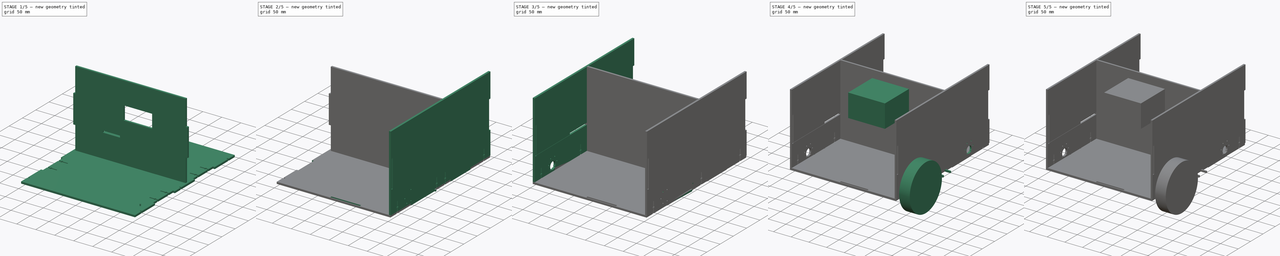
[diagram: build sequence overview — one tinted view per stage of 5, left to right]
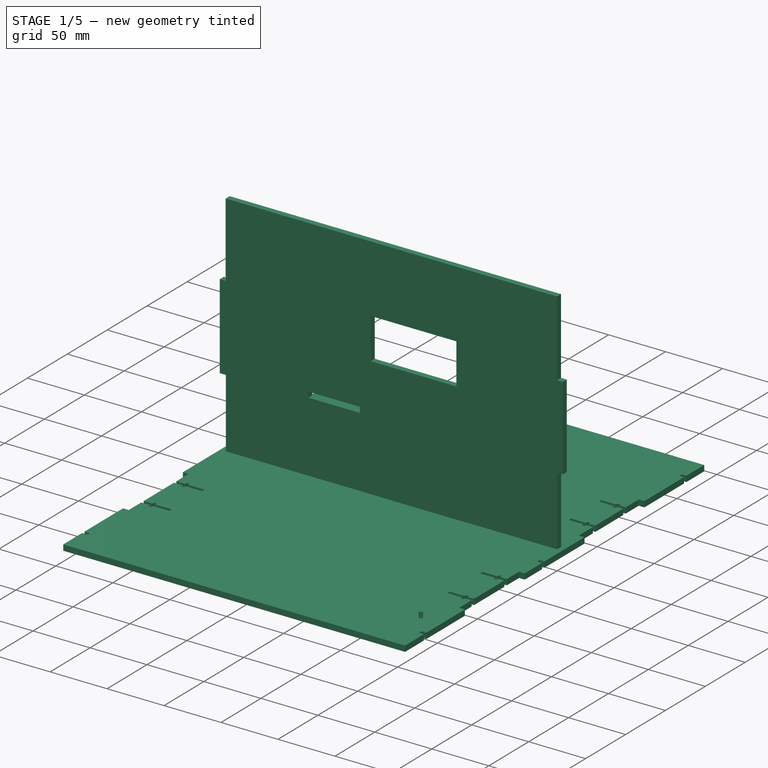
[diagram: stage 1 of 5 — iso view after this stage's code; geometry added in this stage tinted green]
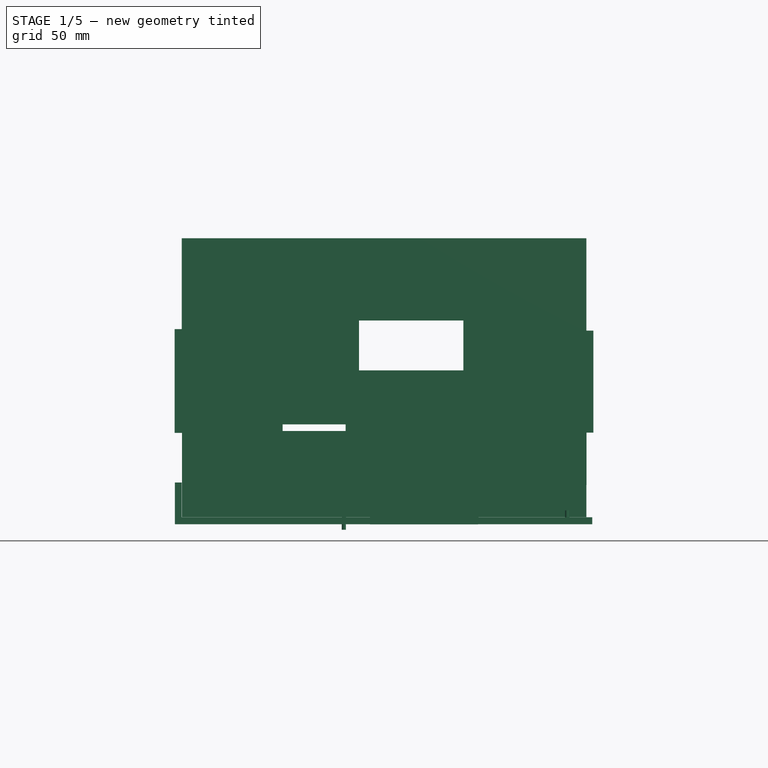
[diagram: stage 1 of 5 — front view after this stage's code; geometry added in this stage tinted green]
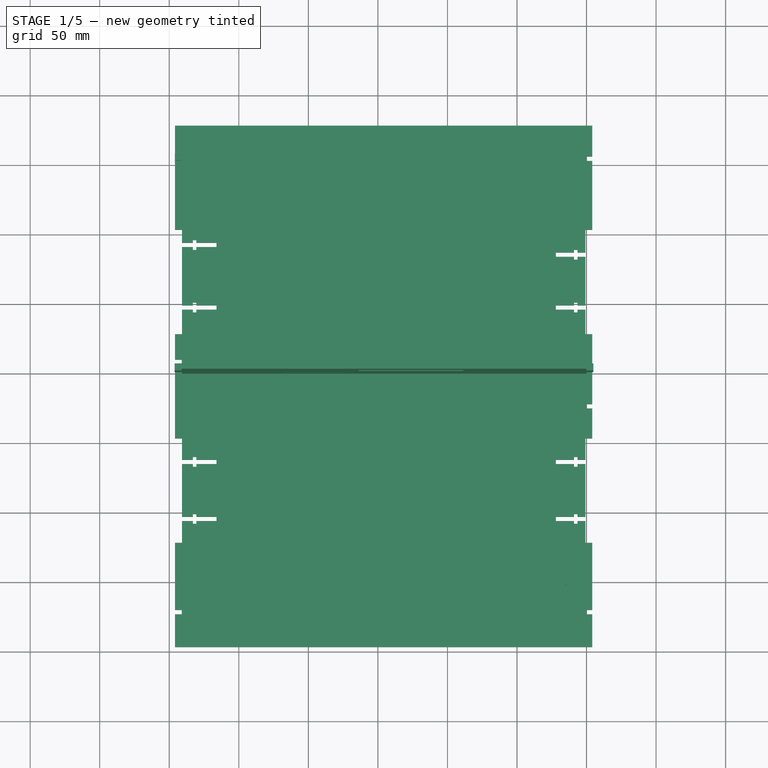
[diagram: stage 1 of 5 — top view after this stage's code; geometry added in this stage tinted green]
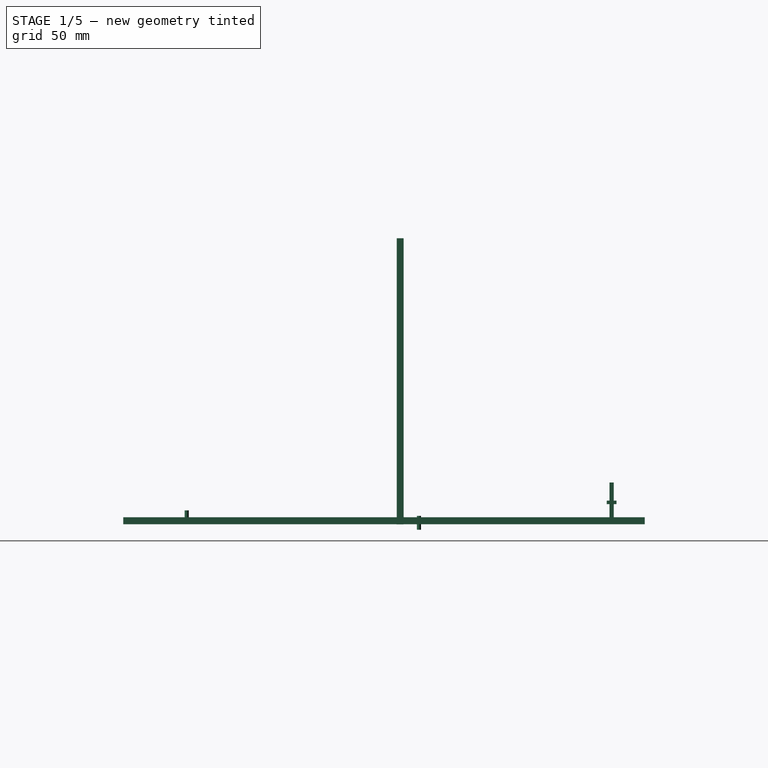
[diagram: stage 1 of 5 — right view after this stage's code; geometry added in this stage tinted green]
FCSTD DOCUMENT  (FreeCAD 0.18R4 (GitTag))
Label: Side_left
License: All rights reserved
LicenseURL: http://en.wikipedia.org/wiki/All_rights_reserved
objects: Part::Cut×118, Part::Box×81, Part::Cylinder×73, Part::Feature×36, PartDesign::Body×33, Part::MultiFuse×31, Sketcher::SketchObject×24, PartDesign::Pad×9, Part::Part2DObjectPython×6, App::MeasureDistance×4, App::Part×3, PartDesign::ShapeBinder×2, PartDesign::Line×1
note: 423 computed .brp shape members not serialized (recipe doc carries the construction recipe); baked Part::Feature solids carry a one-line shape summary decoded from their .brp

FEATURE [Part::Box] Box  label="Cube"
  AttacherType = Attacher::AttachEngine3D
  Height = 5
  Length = 30
  Placement = pos=(-22,-32,0) rot=(0,0,1;0rad)
  Width = 3
FEATURE [Part::Box] Box001  label="Cube001"
  AttacherType = Attacher::AttachEngine3D
  Height = 5
  Length = 2.5
  Placement = pos=(-9,-34,0) rot=(0,0,1;0rad)
  Width = 7
FEATURE [Sketcher::SketchObject] Sketch
  MapMode = 2
  Placement = pos=(0,0,0) rot=(0.57735,0.57735,0.57735;2.0944rad)
  Support = -> [Sketch]
  sketch-geometry (14):
    g0: LineSegment StartX=179.943 StartY=5.59639 StartZ=0 EndX=179.943 EndY=205.596 EndZ=0
    g1: LineSegment StartX=179.943 StartY=205.596 StartZ=0 EndX=-195.057 EndY=205.596 EndZ=0
    g2: LineSegment StartX=-195.057 StartY=5.59639 StartZ=0 EndX=-120.057 EndY=5.59639 EndZ=0
    g3: LineSegment StartX=-120.057 StartY=5.59639 StartZ=0 EndX=-120.057 EndY=0.596387 EndZ=0
    g4: LineSegment StartX=-120.057 StartY=0.596387 StartZ=0 EndX=-45.0571 EndY=0.596387 EndZ=0
    g5: LineSegment StartX=-45.0571 StartY=0.596387 StartZ=0 EndX=-45.0575 EndY=4.86097 EndZ=0
    g6: LineSegment StartX=-45.0575 StartY=4.86097 StartZ=0 EndX=29.9425 EndY=4.86805 EndZ=0
    g7: LineSegment StartX=29.9425 StartY=4.86805 StartZ=0 EndX=29.9429 EndY=0.356983 EndZ=0
    g8: LineSegment StartX=29.9429 StartY=0.356983 StartZ=0 EndX=104.943 EndY=0.356983 EndZ=0
    g9: LineSegment StartX=104.943 StartY=0.356983 StartZ=0 EndX=104.943 EndY=5.59639 EndZ=0
    g10: LineSegment StartX=104.943 StartY=5.59639 StartZ=0 EndX=179.943 EndY=5.59639 EndZ=0
    g11: LineSegment StartX=-195.094 StartY=206.499 StartZ=0 EndX=-355.694 EndY=104.764 EndZ=0
    g12: LineSegment StartX=-356.016 StartY=103.039 StartZ=0 EndX=-356.016 EndY=53.0392 EndZ=0
    g13: LineSegment StartX=-356.016 StartY=53.0392 StartZ=0 EndX=-195.057 EndY=5.59639 EndZ=0
  constraints (33):
    c: Coincident(g0,g1)
    c: Horizontal(g1)
    c: Vertical(g0)
    c: DistanceX(g1,g1) = 375
    c: Coincident(g2,g3)
    c: Coincident(g3,g4)
    c: Coincident(g4,g5)
    c: Coincident(g5,g6)
    c: Coincident(g6,g7)
    c: Coincident(g7,g8)
    c: Coincident(g8,g9)
    c: DistanceY(g2,g1) = 200
    c: DistanceY(g0,g0) = 200
    c: DistanceX(g2,g2) = 75
    c: Coincident(g10,g0)
    c: Angle(g2,g3) = 1.5708
    c: Angle(g5,g6) = 1.5708
    c: Angle(g6,g7) = 1.5708
    c: Angle(g0,g10) = 1.5708
    c: Coincident(g9,g10)
    c: Angle(g9,g10) = 1.5708
    c: Angle(g9,g8) = 1.5708
    c: Angle(g4,g3) = 1.5708
    c: DistanceX(g4,g4) = 75
    c: DistanceX(g6,g6) = 75
    c: DistanceX(g8,g8) = 75
    c: DistanceX(g10,g10) = 75
    c: Angle(g0,g4) = 1.5708
    c: Coincident(g12,g13)
    c: Coincident(g2,g13)
    c: Angle(g12,g-2) = 0
    c: DistanceY(g3,g3) = 5
    c: DistanceY(g12,g12) = 50
FEATURE [PartDesign::Body] Body  label="Body001"
  Group = -> [Sketch]
  Origin = -> Origin
FEATURE [Part::MultiFuse] Fusion
  Placement = pos=(0,-33,0) rot=(0,0,1;0rad)
  Shapes = -> [Box,Box001]
FEATURE [Part::Box] Box002  label="Cube002"
  AttacherType = Attacher::AttachEngine3D
  Height = 5
  Length = 30
  Placement = pos=(-22,-32,0) rot=(0,0,1;0rad)
  Width = 3
FEATURE [Part::Box] Box003  label="Cube003"
  AttacherType = Attacher::AttachEngine3D
  Height = 5
  Length = 2.5
  Placement = pos=(-9,-34,0) rot=(0,0,1;0rad)
  Width = 7
FEATURE [Part::MultiFuse] Fusion001
  Placement = pos=(0,78,0) rot=(0,0,1;0rad)
  Shapes = -> [Box002,Box003]
FEATURE [Part::Box] Box004  label="Cube004"
  AttacherType = Attacher::AttachEngine3D
  Height = 5
  Length = 30
  Placement = pos=(-22,-32,0) rot=(0,0,1;0rad)
  Width = 3
FEATURE [Part::Box] Box005  label="Cube005"
  AttacherType = Attacher::AttachEngine3D
  Height = 5
  Length = 2.5
  Placement = pos=(-9,-34,0) rot=(0,0,1;0rad)
  Width = 7
FEATURE [Part::MultiFuse] Fusion002
  Placement = pos=(0,116,0) rot=(0,0,1;0rad)
  Shapes = -> [Box004,Box005]
FEATURE [Part::Box] Box006  label="Cube006"
  AttacherType = Attacher::AttachEngine3D
  Height = 5
  Length = 30
  Placement = pos=(-22,-32,0) rot=(0,0,1;0rad)
  Width = 3
FEATURE [Part::Box] Box007  label="Cube007"
  AttacherType = Attacher::AttachEngine3D
  Height = 5
  Length = 2.5
  Placement = pos=(-9,-34,0) rot=(0,0,1;0rad)
  Width = 7
FEATURE [Part::MultiFuse] Fusion003
  Placement = pos=(0,-74,0) rot=(0,0,1;0rad)
  Shapes = -> [Box006,Box007]
FEATURE [PartDesign::Body] Body012  label="Body013"
  Group = -> [Sketch003,Pad002]
  Origin = -> Origin014
  Placement = pos=(0,175,0) rot=(0,0,1;0rad)
  Tip = -> Pad002
FEATURE [PartDesign::Line] DatumLine
  AttacherType = Attacher::AttachEngineLine
  MapMode = 42
  Placement = pos=(-1e-15,-8.96724,104.008) rot=(0.57735,0.57735,0.57735;2.0944rad)
FEATURE [PartDesign::Body] Body014  label="Body015"
  Group = -> [DatumLine]
  Origin = -> Origin016
FEATURE [Sketcher::SketchObject] CopySketch010
  Placement = pos=(0,0,0) rot=(0.57735,0.57735,0.57735;2.0944rad)
  sketch-geometry (23):
    g0: LineSegment StartX=179.249 StartY=205.491 StartZ=0 EndX=-195.751 EndY=205.491 EndZ=0
    g1: LineSegment StartX=-195.751 StartY=5.49052 StartZ=0 EndX=-120.751 EndY=6.40515 EndZ=0
    g2: LineSegment StartX=-120.751 StartY=6.40515 StartZ=0 EndX=-120.69 EndY=1.40515 EndZ=0
    g3: LineSegment StartX=-120.69 StartY=1.40515 StartZ=0 EndX=-45.6904 EndY=2.31977 EndZ=0
    g4: LineSegment StartX=-45.6904 StartY=2.31977 StartZ=0 EndX=-45.5955 EndY=6.08884 EndZ=0
    g5: LineSegment StartX=-45.5955 StartY=6.08884 StartZ=0 EndX=29.4045 EndY=4.202 EndZ=0
    g6: LineSegment StartX=29.4045 StartY=4.202 StartZ=0 EndX=29.2837 EndY=-0.598969 EndZ=0
    g7: LineSegment StartX=29.2837 StartY=-0.598969 StartZ=0 EndX=104.284 EndY=-0.0788803 EndZ=0
    g8: LineSegment StartX=104.284 StartY=-0.0788803 StartZ=0 EndX=104.249 EndY=4.97043 EndZ=0
    g9: LineSegment StartX=104.249 StartY=4.97043 StartZ=0 EndX=179.249 EndY=5.49052 EndZ=0
    g10: LineSegment StartX=179.249 StartY=205.491 StartZ=0 EndX=179.249 EndY=140.53 EndZ=0
    g11: LineSegment StartX=179.249 StartY=140.53 StartZ=0 EndX=174.249 EndY=140.53 EndZ=0
    g12: LineSegment StartX=174.249 StartY=140.53 StartZ=0 EndX=174.249 EndY=65.9043 EndZ=0
    g13: LineSegment StartX=174.249 StartY=65.9043 StartZ=0 EndX=179.249 EndY=65.9043 EndZ=0
    g14: LineSegment StartX=179.249 StartY=65.9043 StartZ=0 EndX=179.249 EndY=5.49052 EndZ=0
    g15: LineSegment StartX=-320.698 StartY=42.8654 StartZ=0 EndX=-322.126 EndY=37.8654 EndZ=0
    g16: LineSegment StartX=-261.904 StartY=20.0775 StartZ=0 EndX=-260.356 EndY=25.0775 EndZ=0
    g17: LineSegment StartX=-356.098 StartY=86.7885 StartZ=0 EndX=-361.098 EndY=86.7885 EndZ=0
    g18: LineSegment StartX=-195.751 StartY=205.491 StartZ=0 EndX=-195.751 EndY=5.49052 EndZ=0
    g19: LineSegment StartX=-193.722 StartY=138.894 StartZ=0 EndX=-189.179 EndY=138.894 EndZ=0
    g20: LineSegment StartX=-189.179 StartY=138.894 StartZ=0 EndX=-189.179 EndY=65.5594 EndZ=0
    g21: LineSegment StartX=-189.179 StartY=65.5594 StartZ=0 EndX=-193.722 EndY=65.5594 EndZ=0
    g22: LineSegment StartX=-193.722 StartY=65.5594 StartZ=0 EndX=-193.722 EndY=138.894 EndZ=0
  constraints (51):
    c: Horizontal(g0)
    c: DistanceX(g0,g0) = 375
    c: Coincident(g1,g2)
    c: Coincident(g2,g3)
    c: Coincident(g3,g4)
    c: Coincident(g4,g5)
    c: Coincident(g5,g6)
    c: Coincident(g6,g7)
    c: Coincident(g7,g8)
    c: DistanceY(g1,g0) = 200
    c: DistanceY(g9,g0) = 200
    c: DistanceX(g1,g1) = 75
    c: Angle(g1,g2) = 1.5708
    c: Angle(g4,g5) = 1.5708
    c: Angle(g5,g6) = 1.5708
    c: Coincident(g8,g9)
    c: Angle(g8,g9) = 1.5708
    c: Angle(g8,g7) = 1.5708
    c: Angle(g3,g2) = 1.5708
    c: DistanceX(g3,g3) = 75
    c: DistanceX(g5,g5) = 75
    c: DistanceX(g7,g7) = 75
    c: DistanceX(g9,g9) = 75
    c: DistanceY(g2,g2) = 5
    c: Coincident(g10,g11)
    c: Coincident(g11,g12)
    c: Coincident(g12,g13)
    c: Coincident(g9,g14)
    c: Angle(g0,g10) = 1.5708
    c: Angle(g12,g11) = 1.5708
    c: Angle(g10,g11) = 1.5708
    c: Angle(g13,g12) = 1.5708
    c: Angle(g13,g14) = 1.5708
    c: Coincident(g10,g0)
    c: DistanceX(g11,g11) = 5
    c: DistanceX(g13,g13) = 5
    c: Coincident(g13,g14)
    c: DistanceY(g16,g16) = 5
    c: DistanceY(g15,g15) = 5
    c: DistanceX(g17,g17) = 5
    c: Coincident(g18,g1)
    c: Coincident(g18,g0)
    c: Angle(g18,g0) = 1.5708
    c: Coincident(g19,g20)
    c: Coincident(g20,g21)
    c: Coincident(g21,g22)
    c: Coincident(g22,g19)
    c: Horizontal(g19)
    c: Horizontal(g21)
    c: Vertical(g20)
    c: Vertical(g22)
FEATURE [PartDesign::Body] Body030  label="Body031"
  Group = -> [CopySketch010]
  Origin = -> Origin036
  Placement = pos=(-296,0,0) rot=(0,0,1;0rad)
FEATURE [Part::Box] Box017  label="Cube017"
  AttacherType = Attacher::AttachEngine3D
  Height = 5
  Length = 2.5
  Placement = pos=(-9,-34,0) rot=(0,0,1;0rad)
  Width = 7
FEATURE [Part::Box] Box018  label="Cube018"
  AttacherType = Attacher::AttachEngine3D
  Height = 5
  Length = 30
  Placement = pos=(-22,-32,0) rot=(0,0,1;0rad)
  Width = 3
FEATURE [Part::MultiFuse] Fusion008
  Placement = pos=(-274,78,0) rot=(0,0,1;0rad)
  Shapes = -> [Box018,Box017]
FEATURE [Part::Box] Box019  label="Cube019"
  AttacherType = Attacher::AttachEngine3D
  Height = 5
  Length = 30
  Placement = pos=(-22,-32,0) rot=(0,0,1;0rad)
  Width = 3
FEATURE [Part::Box] Box020  label="Cube020"
  AttacherType = Attacher::AttachEngine3D
  Height = 5
  Length = 2.5
  Placement = pos=(-9,-34,0) rot=(0,0,1;0rad)
  Width = 7
FEATURE [Part::MultiFuse] Fusion009
  Placement = pos=(-274,123,0) rot=(0,0,1;0rad)
  Shapes = -> [Box019,Box020]
FEATURE [Part::Box] Box021  label="Cube021"
  AttacherType = Attacher::AttachEngine3D
  Height = 5
  Length = 30
  Placement = pos=(-22,-32,0) rot=(0,0,1;0rad)
  Width = 3
FEATURE [Part::Box] Box022  label="Cube022"
  AttacherType = Attacher::AttachEngine3D
  Height = 5
  Length = 2.5
  Placement = pos=(-9,-34,0) rot=(0,0,1;0rad)
  Width = 7
FEATURE [Part::MultiFuse] Fusion010
  Placement = pos=(-274,-74,0) rot=(0,0,1;0rad)
  Shapes = -> [Box021,Box022]
FEATURE [Part::Box] Box023  label="Cube023"
  AttacherType = Attacher::AttachEngine3D
  Height = 5
  Length = 30
  Placement = pos=(-22,-32,0) rot=(0,0,1;0rad)
  Width = 3
FEATURE [Part::Box] Box024  label="Cube024"
  AttacherType = Attacher::AttachEngine3D
  Height = 5
  Length = 2.5
  Placement = pos=(-9,-34,0) rot=(0,0,1;0rad)
  Width = 7
FEATURE [Part::MultiFuse] Fusion011
  Placement = pos=(-274,-33,0) rot=(0,0,1;0rad)
  Shapes = -> [Box023,Box024]
FEATURE [Part::Box] Box025  label="Cube025"
  AttacherType = Attacher::AttachEngine3D
  Height = 5
  Length = 2.5
  Placement = pos=(-9,-34,0) rot=(0,0,1;0rad)
  Width = 7
FEATURE [Part::Box] Box026  label="Cube026"
  AttacherType = Attacher::AttachEngine3D
  Height = 5
  Length = 30
  Placement = pos=(-22,-32,0) rot=(0,0,1;0rad)
  Width = 3
FEATURE [Part::Box] Box027  label="Cube027"
  AttacherType = Attacher::AttachEngine3D
  Height = 5
  Length = 2.5
  Placement = pos=(-9,-34,0) rot=(0,0,1;0rad)
  Width = 7
FEATURE [Part::Box] Box028  label="Cube028"
  AttacherType = Attacher::AttachEngine3D
  Height = 5
  Length = 30
  Placement = pos=(-22,-32,0) rot=(0,0,1;0rad)
  Width = 3
FEATURE [Part::MultiFuse] Fusion013
  Placement = pos=(-296,-141,8) rot=(0,1,0;1.5708rad)
  Shapes = -> [Box028,Box027]
FEATURE [Part::Box] Box029  label="Cube029"
  AttacherType = Attacher::AttachEngine3D
  Height = 5
  Length = 30
  Placement = pos=(-22,-32,0) rot=(0,0,1;0rad)
  Width = 3
FEATURE [Part::Box] Box030  label="Cube030"
  AttacherType = Attacher::AttachEngine3D
  Height = 5
  Length = 2.5
  Placement = pos=(-9,-34,0) rot=(0,0,1;0rad)
  Width = 7
FEATURE [Part::MultiFuse] Fusion014
  Placement = pos=(-296,39,8) rot=(0,1,0;1.5708rad)
  Shapes = -> [Box029,Box030]
FEATURE [Part::Box] Box031  label="Cube031"
  AttacherType = Attacher::AttachEngine3D
  Height = 5
  Length = 2.5
  Placement = pos=(-9,-34,0) rot=(0,0,1;0rad)
  Width = 7
FEATURE [Part::Box] Box032  label="Cube032"
  AttacherType = Attacher::AttachEngine3D
  Height = 5
  Length = 30
  Placement = pos=(-22,-32,0) rot=(0,0,1;0rad)
  Width = 3
FEATURE [Part::MultiFuse] Fusion015
  Placement = pos=(-296,185,8) rot=(0,1,0;1.5708rad)
  Shapes = -> [Box032,Box031]
FEATURE [Part::Cut] Cut015
  Base = -> Part__Feature022
  Tool = -> Fusion
FEATURE [Part::Cut] Cut016
  Base = -> Cut015
  Tool = -> Fusion003
FEATURE [Part::Cut] Cut017
  Base = -> Cut016
  Tool = -> Fusion002
FEATURE [Part::Cut] Cut018
  Base = -> Cut017
  Tool = -> Fusion001
FEATURE [Part::Cut] Cut042
  Base = -> Cut018
  Tool = -> Fusion008
FEATURE [Part::Cut] Cut043
  Base = -> Cut042
  Tool = -> Fusion009
FEATURE [Part::Cut] Cut044
  Base = -> Cut043
  Tool = -> Fusion010
FEATURE [Part::Cut] Cut045
  Base = -> Cut044
  Tool = -> Fusion011
FEATURE [Part::Cut] Cut046
  Base = -> Cut045
  Tool = -> Fusion014
FEATURE [Part::Cut] Cut047
  Base = -> Cut046
  Tool = -> Fusion015
FEATURE [Part::Cut] Cut049
  Base = -> Cut047
  Tool = -> Fusion013
FEATURE [Part::MultiFuse] Fusion012
  Placement = pos=(-296,185,8) rot=(0,1,0;1.5708rad)
  Shapes = -> [Box026,Box025]
FEATURE [Part::Box] Box052  label="Cube052"
  AttacherType = Attacher::AttachEngine3D
  Height = 5
  Length = 5
  Placement = pos=(0,-25,0) rot=(0,0,1;0rad)
  Width = 3
FEATURE [Part::Box] Box054  label="Cube054"
  AttacherType = Attacher::AttachEngine3D
  Height = 5
  Length = 5
  Placement = pos=(0,-106,0) rot=(0,0,1;0rad)
  Width = 3
FEATURE [Part::Box] Box055  label="Cube055"
  AttacherType = Attacher::AttachEngine3D
  Height = 5
  Length = 5
  Placement = pos=(0,-173,0) rot=(0,0,1;0rad)
  Width = 3
FEATURE [Part::Box] Box057  label="Cube057"
  AttacherType = Attacher::AttachEngine3D
  Height = 5
  Length = 5
  Placement = pos=(0,84,0) rot=(0,0,1;0rad)
  Width = 3
FEATURE [Part::Box] Box058  label="Cube058"
  AttacherType = Attacher::AttachEngine3D
  Height = 5
  Length = 5
  Placement = pos=(0,153,0) rot=(0,0,1;0rad)
  Width = 3
FEATURE [Part::Cut] Cut090
  Base = -> Cut049
  Tool = -> Box052
FEATURE [Part::Cut] Cut091
  Base = -> Cut090
  Tool = -> Box055
FEATURE [Part::Cut] Cut092
  Base = -> Cut091
  Tool = -> Box058
FEATURE [Part::Cut] Cut094
  Base = -> Cut092
  Tool = -> Box054
FEATURE [Part::Cut] Cut096
  Base = -> Cut094
  Tool = -> Box057
FEATURE [Part::Box] Box059  label="Cube059"
  AttacherType = Attacher::AttachEngine3D
  Height = 5
  Length = 5
  Placement = pos=(-296,7,0) rot=(0,0,1;0rad)
  Width = 3
FEATURE [Part::Cut] Cut097
  Base = -> Cut096
  Tool = -> Box059
FEATURE [Part::Cylinder] Cylinder062
  Angle = 360
  AttacherType = Attacher::AttachEngine3D
  Height = 10
  Placement = pos=(-174.5,16,-4) rot=(0,0,1;0rad)
  Radius = 1.5
FEATURE [Part::Cylinder] Cylinder067
  Angle = 360
  AttacherType = Attacher::AttachEngine3D
  Height = 10
  Placement = pos=(-14,-151,0) rot=(0,0,1;0rad)
  Radius = 1.5
FEATURE [Sketcher::SketchObject] CopySketch016
  Placement = pos=(0,0,0) rot=(0,0.707107,0.707107;3.14159rad)
  sketch-geometry (26):
    g0: LineSegment StartX=0.147712 StartY=205.211 StartZ=0 EndX=0.131976 EndY=139.187 EndZ=0
    g1: LineSegment StartX=0.131976 StartY=139.187 StartZ=0 EndX=-4.92027 EndY=139.189 EndZ=0
    g2: LineSegment StartX=-4.92027 StartY=139.189 StartZ=0 EndX=-4.93774 EndY=65.8793 EndZ=0
    g3: LineSegment StartX=-4.93774 StartY=65.8793 StartZ=0 EndX=0.00244733 EndY=65.8781 EndZ=0
    g4: LineSegment StartX=0.00244733 StartY=65.8781 StartZ=0 EndX=-0.00298238 EndY=4.80839 EndZ=0
    g5: LineSegment StartX=291.353 StartY=5.3024 StartZ=0 EndX=291.353 EndY=65.7 EndZ=0
    g6: LineSegment StartX=291.353 StartY=65.7 StartZ=0 EndX=296.133 EndY=65.7 EndZ=0
    g7: LineSegment StartX=296.133 StartY=65.7 StartZ=0 EndX=296.15 EndY=140.253 EndZ=0
    g8: LineSegment StartX=296.15 StartY=140.253 StartZ=0 EndX=290.991 EndY=140.254 EndZ=0
    g9: LineSegment StartX=290.991 StartY=140.254 StartZ=0 EndX=291.006 EndY=204.611 EndZ=0
    g10: LineSegment StartX=291.006 StartY=204.611 StartZ=0 EndX=291.006 EndY=205.573 EndZ=0
    g11: LineSegment StartX=291.006 StartY=205.573 StartZ=0 EndX=0.147815 EndY=205.642 EndZ=0
    g12: LineSegment StartX=0.147815 StartY=205.642 StartZ=0 EndX=0.147712 EndY=205.211 EndZ=0
    g13: LineSegment StartX=163.613 StartY=146.453 StartZ=0 EndX=88.497 EndY=146.453 EndZ=0
    g14: LineSegment StartX=88.497 StartY=146.453 StartZ=0 EndX=88.497 EndY=110.631 EndZ=0
    g15: LineSegment StartX=88.497 StartY=110.631 StartZ=0 EndX=163.613 EndY=110.631 EndZ=0
    g16: LineSegment StartX=163.613 StartY=110.631 StartZ=0 EndX=163.613 EndY=146.453 EndZ=0
    g17: LineSegment StartX=218.456 StartY=71.8203 StartZ=0 EndX=173.171 EndY=71.8203 EndZ=0
    g18: LineSegment StartX=173.171 StartY=71.8203 StartZ=0 EndX=173.171 EndY=67.0386 EndZ=0
    g19: LineSegment StartX=173.171 StartY=67.0386 StartZ=0 EndX=218.456 EndY=67.0386 EndZ=0
    g20: LineSegment StartX=218.456 StartY=67.0386 StartZ=0 EndX=218.456 EndY=71.8203 EndZ=0
    g21: LineSegment StartX=291.353 StartY=5.3024 StartZ=0 EndX=158.095 EndY=5.3024 EndZ=0
    g22: LineSegment StartX=158.095 StartY=5.3024 StartZ=0 EndX=158.095 EndY=0.302397 EndZ=0
    g23: LineSegment StartX=158.095 StartY=0.302397 StartZ=0 EndX=77.7123 EndY=-0.191609 EndZ=0
    g24: LineSegment StartX=77.7123 StartY=-0.191609 StartZ=0 EndX=77.7123 EndY=4.80839 EndZ=0
    g25: LineSegment StartX=77.7123 StartY=4.80839 StartZ=0 EndX=-0.00298238 EndY=4.80839 EndZ=0
  constraints (51):
    c: Coincident(g0,g1)
    c: Coincident(g1,g2)
    c: Coincident(g2,g3)
    c: Coincident(g3,g4)
    c: Coincident(g5,g6)
    c: Coincident(g6,g7)
    c: Coincident(g7,g8)
    c: Coincident(g8,g9)
    c: Coincident(g9,g10)
    c: Coincident(g10,g11)
    c: Coincident(g11,g12)
    c: Coincident(g12,g0)
    c: Angle(g0,g11) = 1.5708
    c: Angle(g12,g11) = 1.5708
    c: Angle(g0,g1) = 1.5708
    c: Angle(g2,g1) = 1.5708
    c: Angle(g3,g2) = 1.5708
    c: Angle(g5,g6) = 1.5708
    c: Angle(g8,g7) = 1.5708
    c: Angle(g8,g9) = 1.5708
    c: Angle(g11,g10) = 1.5708
    c: Angle(g11,g9) = 1.5708
    c: Coincident(g13,g14)
    c: Coincident(g14,g15)
    c: Coincident(g15,g16)
    c: Coincident(g16,g13)
    c: Horizontal(g13)
    c: Horizontal(g15)
    c: Vertical(g14)
    c: Vertical(g16)
    c: Coincident(g17,g18)
    c: Coincident(g18,g19)
    c: Coincident(g19,g20)
    c: Coincident(g20,g17)
    c: Horizontal(g17)
    c: Horizontal(g19)
    c: Vertical(g18)
    c: Vertical(g20)
    c: Coincident(g21,g22)
    c: Coincident(g22,g23)
    c: Coincident(g23,g24)
    c: Coincident(g24,g25)
    c: Coincident(g4,g25)
    c: Angle(g22,g21) = 1.5708
    c: Angle(g5,g21) = 1.5708
    c: Angle(g-1,g24) = 1.5708
    c: Angle(g25,g-1) = 0
    c: DistanceY(g24,g24) = 5
    c: DistanceY(g22,g22) = 5
    c: Angle(g21,g-1) = 3.14159
    c: Coincident(g5,g21)
FEATURE [Sketcher::SketchObject] CopySketch017
  Placement = pos=(0,0,0) rot=(0,0.707107,0.707107;3.14159rad)
  sketch-geometry (26):
    g0: LineSegment StartX=0.147712 StartY=205.211 StartZ=0 EndX=0.131976 EndY=139.187 EndZ=0
    g1: LineSegment StartX=0.131976 StartY=139.187 StartZ=0 EndX=-4.92027 EndY=139.189 EndZ=0
    g2: LineSegment StartX=-4.92027 StartY=139.189 StartZ=0 EndX=-4.93774 EndY=65.8793 EndZ=0
    g3: LineSegment StartX=-4.93774 StartY=65.8793 StartZ=0 EndX=0.00244733 EndY=65.8781 EndZ=0
    g4: LineSegment StartX=0.00244733 StartY=65.8781 StartZ=0 EndX=0.0963956 EndY=5.12794 EndZ=0
    g5: LineSegment StartX=290.811 StartY=5.12794 StartZ=0 EndX=290.811 EndY=65.7 EndZ=0
    g6: LineSegment StartX=290.811 StartY=65.7 StartZ=0 EndX=296.133 EndY=65.7 EndZ=0
    g7: LineSegment StartX=296.133 StartY=65.7 StartZ=0 EndX=296.15 EndY=140.253 EndZ=0
    g8: LineSegment StartX=296.15 StartY=140.253 StartZ=0 EndX=290.991 EndY=140.254 EndZ=0
    g9: LineSegment StartX=290.991 StartY=140.254 StartZ=0 EndX=291.006 EndY=204.611 EndZ=0
    g10: LineSegment StartX=291.006 StartY=204.611 StartZ=0 EndX=291.006 EndY=205.573 EndZ=0
    g11: LineSegment StartX=291.006 StartY=205.573 StartZ=0 EndX=0.147815 EndY=205.642 EndZ=0
    g12: LineSegment StartX=0.147815 StartY=205.642 StartZ=0 EndX=0.147712 EndY=205.211 EndZ=0
    g13: LineSegment StartX=163.613 StartY=146.453 StartZ=0 EndX=88.497 EndY=146.453 EndZ=0
    g14: LineSegment StartX=88.497 StartY=146.453 StartZ=0 EndX=88.497 EndY=110.631 EndZ=0
    g15: LineSegment StartX=88.497 StartY=110.631 StartZ=0 EndX=163.613 EndY=110.631 EndZ=0
    g16: LineSegment StartX=163.613 StartY=110.631 StartZ=0 EndX=163.613 EndY=146.453 EndZ=0
    g17: LineSegment StartX=218.456 StartY=71.8203 StartZ=0 EndX=173.171 EndY=71.8203 EndZ=0
    g18: LineSegment StartX=173.171 StartY=71.8203 StartZ=0 EndX=173.171 EndY=67.0386 EndZ=0
    g19: LineSegment StartX=173.171 StartY=67.0386 StartZ=0 EndX=218.456 EndY=67.0386 EndZ=0
    g20: LineSegment StartX=218.456 StartY=67.0386 StartZ=0 EndX=218.456 EndY=71.8203 EndZ=0
    g21: LineSegment StartX=290.811 StartY=5.12794 StartZ=0 EndX=155.653 EndY=5.12794 EndZ=0
    g22: LineSegment StartX=155.653 StartY=5.12794 StartZ=0 EndX=155.653 EndY=-0.0720589 EndZ=0
    g23: LineSegment StartX=155.653 StartY=-0.0720589 StartZ=0 EndX=77.7518 EndY=-0.0720589 EndZ=0
    g24: LineSegment StartX=77.7518 StartY=-0.0720589 StartZ=0 EndX=77.7518 EndY=5.12794 EndZ=0
    g25: LineSegment StartX=77.7518 StartY=5.12794 StartZ=0 EndX=0.0963956 EndY=5.12794 EndZ=0
  constraints (52):
    c: Coincident(g0,g1)
    c: Coincident(g1,g2)
    c: Coincident(g2,g3)
    c: Coincident(g3,g4)
    c: Coincident(g5,g6)
    c: Coincident(g6,g7)
    c: Coincident(g7,g8)
    c: Coincident(g8,g9)
    c: Coincident(g9,g10)
    c: Coincident(g10,g11)
    c: Coincident(g11,g12)
    c: Coincident(g12,g0)
    c: Angle(g0,g11) = 1.5708
    c: Angle(g12,g11) = 1.5708
    c: Angle(g0,g1) = 1.5708
    c: Angle(g2,g1) = 1.5708
    c: Angle(g3,g2) = 1.5708
    c: Angle(g5,g6) = 1.5708
    c: Angle(g8,g7) = 1.5708
    c: Angle(g8,g9) = 1.5708
    c: Angle(g11,g10) = 1.5708
    c: Angle(g11,g9) = 1.5708
    c: Coincident(g13,g14)
    c: Coincident(g14,g15)
    c: Coincident(g15,g16)
    c: Coincident(g16,g13)
    c: Horizontal(g13)
    c: Horizontal(g15)
    c: Vertical(g14)
    c: Vertical(g16)
    c: Coincident(g17,g18)
    c: Coincident(g18,g19)
    c: Coincident(g19,g20)
    c: Coincident(g20,g17)
    c: Horizontal(g17)
    c: Horizontal(g19)
    c: Vertical(g18)
    c: Vertical(g20)
    c: Coincident(g21,g22)
    c: Coincident(g22,g23)
    c: Coincident(g23,g24)
    c: Coincident(g24,g25)
    c: Coincident(g4,g25)
    c: Angle(g22,g21) = 1.5708
    c: Angle(g5,g21) = 1.5708
    c: Angle(g-1,g24) = 1.5708
    c: Angle(g25,g-1) = 0
    c: DistanceY(g24,g24) = 5.2
    c: DistanceY(g22,g22) = 5.2
    c: Angle(g21,g-1) = 3.14159
    c: Coincident(g5,g21)
    c: Angle(g-1,g23) = 0
FEATURE [Sketcher::SketchObject] Sketch014
  MapMode = 5
  Placement = pos=(0,0,0) rot=(1,0,0;1.5708rad)
  Support = -> [XZ_Plane042]
FEATURE [PartDesign::Pad] Pad015
  Length = 5
  Length2 = 100
  Placement = pos=(0,0,0) rot=(0,0.707107,0.707107;3.14159rad)
  Profile = -> CopySketch017
  Type = 0
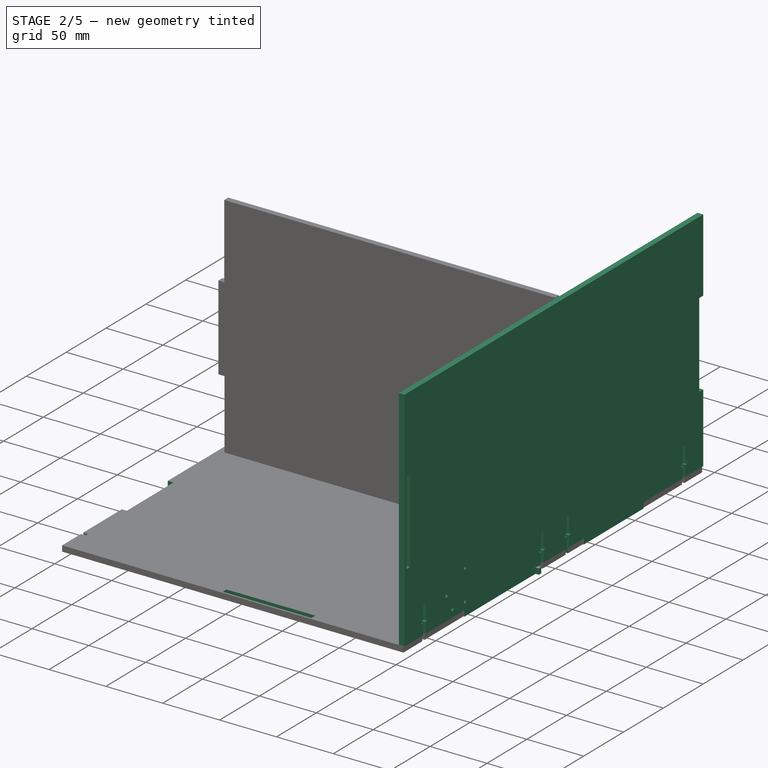
[diagram: stage 2 of 5 — iso view after this stage's code; geometry added in this stage tinted green]
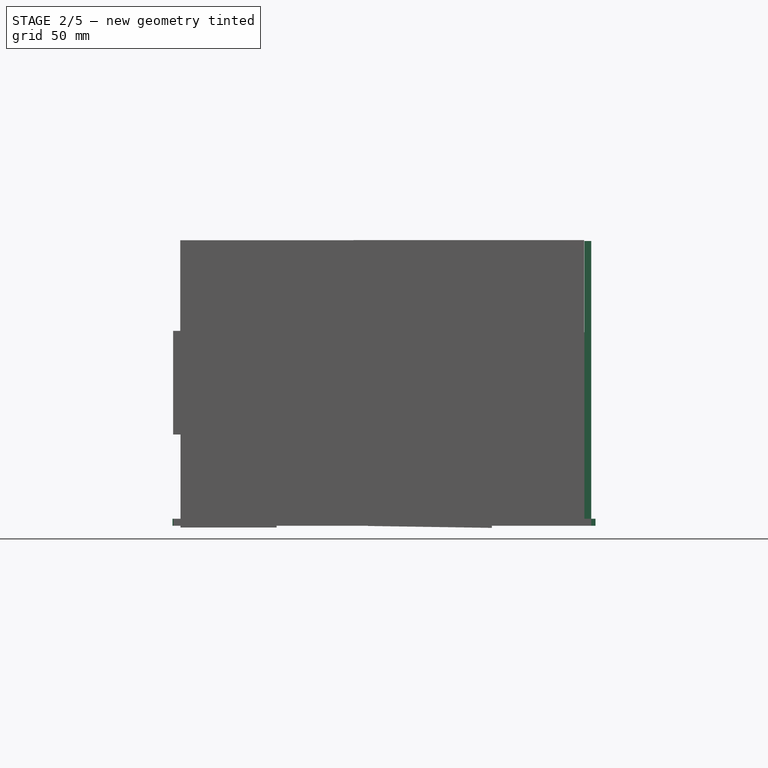
[diagram: stage 2 of 5 — front view after this stage's code; geometry added in this stage tinted green]
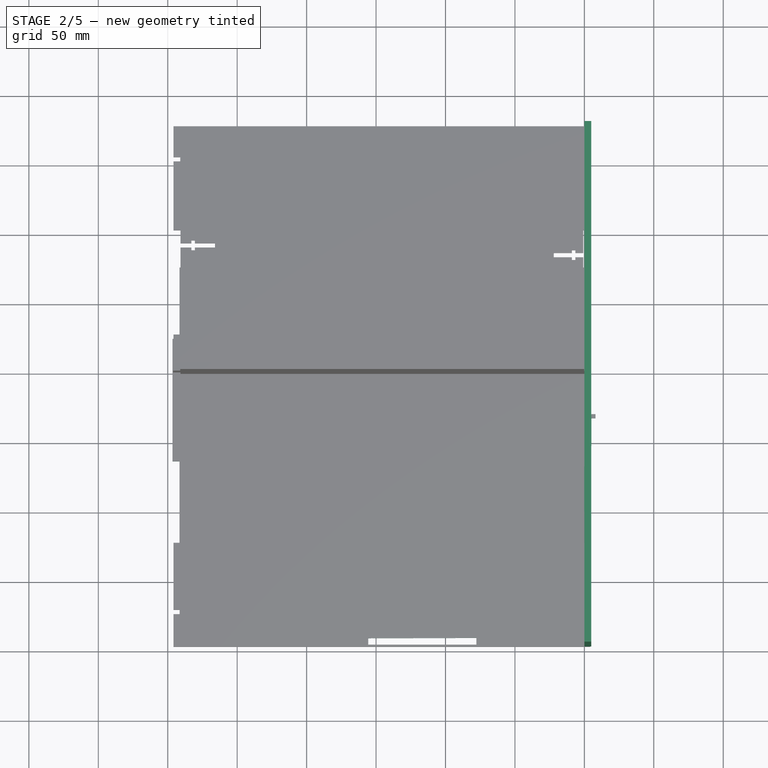
[diagram: stage 2 of 5 — top view after this stage's code; geometry added in this stage tinted green]
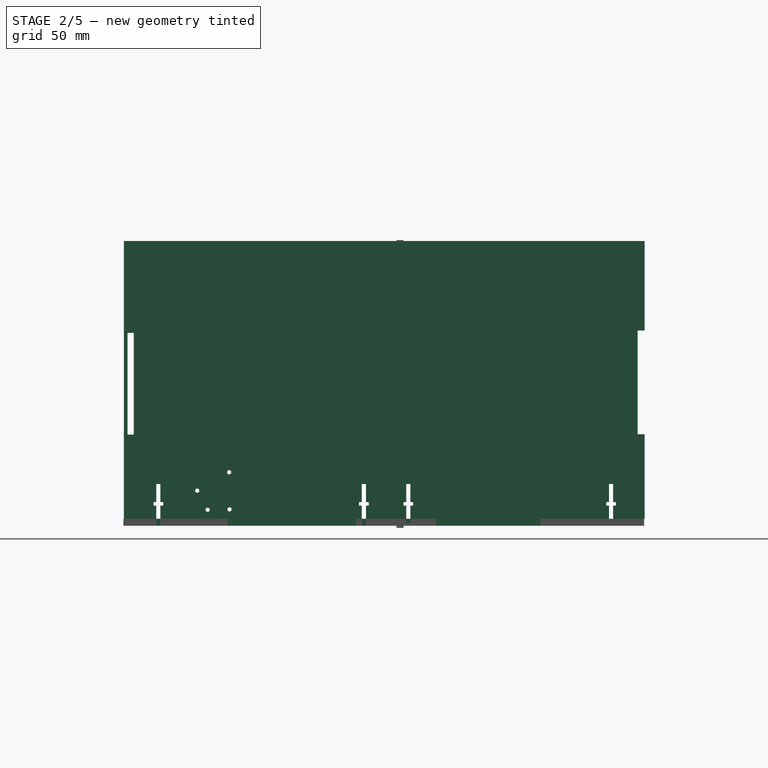
[diagram: stage 2 of 5 — right view after this stage's code; geometry added in this stage tinted green]
FEATURE [PartDesign::Body] Body019  label="Body020"
  Group = -> [Sketch006,Pad006]
  Origin = -> Origin024
  Placement = pos=(0,175,0) rot=(0,0,1;0rad)
  Tip = -> Pad006
FEATURE [Sketcher::SketchObject] Sketch007
  MapMode = 2
  Placement = pos=(0,0,0) rot=(0,0.707107,0.707107;3.14159rad)
  sketch-geometry (20):
    g0: LineSegment StartX=0.147741 StartY=205.211 StartZ=0 EndX=0.131918 EndY=139.187 EndZ=0
    g1: LineSegment StartX=0.131918 StartY=139.187 StartZ=0 EndX=-4.92094 EndY=139.189 EndZ=0
    g2: LineSegment StartX=-4.92094 StartY=139.189 StartZ=0 EndX=-4.93851 EndY=65.8825 EndZ=0
    g3: LineSegment StartX=-4.93851 StartY=65.8825 StartZ=0 EndX=0.301275 EndY=65.8813 EndZ=0
    g4: LineSegment StartX=0.301275 StartY=65.8813 StartZ=0 EndX=-0.997064 EndY=4.88538 EndZ=0
    g5: LineSegment StartX=-0.997064 StartY=4.88538 StartZ=0 EndX=66.6993 EndY=3.44442 EndZ=0
    g6: LineSegment StartX=66.6993 StartY=3.44442 StartZ=0 EndX=66.5929 EndY=-1.55558 EndZ=0
    g7: LineSegment StartX=66.5929 StartY=-1.55558 StartZ=0 EndX=155.69 EndY=-0.187039 EndZ=0
    g8: LineSegment StartX=155.69 StartY=-0.187039 StartZ=0 EndX=155.69 EndY=4.81296 EndZ=0
    g9: LineSegment StartX=155.69 StartY=4.81296 StartZ=0 EndX=221.408 EndY=4.8123 EndZ=0
    g10: LineSegment StartX=221.408 StartY=4.8123 StartZ=0 EndX=221.637 EndY=-1.2636 EndZ=0
    g11: LineSegment StartX=221.637 StartY=-1.2636 StartZ=0 EndX=290.839 EndY=-1.2636 EndZ=0
    g12: LineSegment StartX=290.839 StartY=-1.2636 StartZ=0 EndX=290.839 EndY=65.7886 EndZ=0
    g13: LineSegment StartX=290.839 StartY=65.7886 StartZ=0 EndX=296.132 EndY=65.7886 EndZ=0
    g14: LineSegment StartX=296.132 StartY=65.7886 StartZ=0 EndX=296.15 EndY=140.253 EndZ=0
    g15: LineSegment StartX=296.15 StartY=140.253 StartZ=0 EndX=290.991 EndY=140.254 EndZ=0
    g16: LineSegment StartX=290.991 StartY=140.254 StartZ=0 EndX=291.006 EndY=204.611 EndZ=0
    g17: LineSegment StartX=291.006 StartY=204.611 StartZ=0 EndX=291.006 EndY=205.573 EndZ=0
    g18: LineSegment StartX=291.006 StartY=205.573 StartZ=0 EndX=0.147845 EndY=205.643 EndZ=0
    g19: LineSegment StartX=0.147845 StartY=205.643 StartZ=0 EndX=0.147741 EndY=205.211 EndZ=0
  constraints (37):
    c: Coincident(g0,g1)
    c: Coincident(g1,g2)
    c: Coincident(g2,g3)
    c: Coincident(g3,g4)
    c: Coincident(g4,g5)
    c: Coincident(g5,g6)
    c: Coincident(g6,g7)
    c: Coincident(g7,g8)
    c: Coincident(g8,g9)
    c: Coincident(g9,g10)
    c: Coincident(g10,g11)
    c: Coincident(g11,g12)
    c: Coincident(g12,g13)
    c: Coincident(g13,g14)
    c: Coincident(g14,g15)
    c: Coincident(g15,g16)
    c: Coincident(g16,g17)
    c: Coincident(g17,g18)
    c: Coincident(g18,g19)
    c: Coincident(g19,g0)
    c: Angle(g0,g18) = 1.5708
    c: Angle(g19,g18) = 1.5708
    c: Angle(g0,g1) = 1.5708
    c: Angle(g2,g1) = 1.5708
    c: Angle(g3,g2) = 1.5708
    c: Angle(g5,g4) = 1.5708
    c: Angle(g5,g6) = 1.5708
    c: Angle(g8,g9) = 1.5708
    c: Angle(g-1,g11) = 3.14159
    c: Angle(g12,g13) = 1.5708
    c: Angle(g12,g11) = 1.5708
    c: Angle(g15,g14) = 1.5708
    c: Angle(g15,g16) = 1.5708
    c: Angle(g18,g17) = 1.5708
    c: Angle(g18,g16) = 1.5708
    c: DistanceY(g6,g6) = 5
    c: DistanceY(g8,g8) = 5
FEATURE [PartDesign::ShapeBinder] ReferenceSketch003
  Placement = pos=(0,0,0) rot=(0,0.707107,0.707107;3.14159rad)
  Support = -> [Sketch007]
  TraceSupport = false
FEATURE [Part::Feature] Part__Feature065  label="pan cross head_am_B18.6.7M - M2 x 0.4 x 25 Type I Cross Recessed PHMS --25N006"
  Placement = pos=(-13.4234,7.75,-2e-15) rot=(0.706503,-0.041307,-0.706503;3.22416rad)
  shape: bbox 4.3 x 4.3 x 26.6 mm, 23 faces (baked)
FEATURE [Part::Feature] Part__Feature066  label="pan cross head_am_B18.6.7M - M2 x 0.4 x 25 Type I Cross Recessed PHMS --25N007"
  Placement = pos=(-4e-15,-15.5,-2e-15) rot=(0.481713,0.732055,-0.481713;1.87776rad)
  shape: bbox 4.316 x 4.705 x 26.6 mm, 23 faces (baked)
FEATURE [Part::Feature] Part__Feature067  label="GEARED BODY, MOTOR, JGB37-522"
  shape: bbox 37 x 37 x 29.02 mm, 71 faces (baked)
FEATURE [Part::Feature] Part__Feature068  label="SHAFT COUPLER, JGB37-522"
  Placement = pos=(0,7,0) rot=(0,0,1;0.886941rad)
  shape: bbox 12 x 12 x 6 mm, 8 faces (baked)
FEATURE [Part::Feature] Part__Feature069  label="DC MOTOR, JGB37-522"
  Placement = pos=(0,0,-29) rot=(0,0,1;3.14159rad)
  shape: bbox 35.72 x 35.72 x 19.5 mm, 11 faces (baked)
FEATURE [Part::Feature] Part__Feature070  label="PLASTIC COVER, DC MOTOR, JGB37-522"
  Placement = pos=(0,2e-15,-48.5) rot=(0,0,1;0rad)
  shape: bbox 35.72 x 35.72 x 8.501 mm, 90 faces (baked)
FEATURE [Part::Feature] Part__Feature071  label="COUPLING BRACKET, GEARED BODY TO DC MOTOR, JGB37-522"
  Placement = pos=(0,0,-25) rot=(0,0,1;0rad)
  shape: bbox 34 x 34 x 4 mm, 18 faces (baked)
FEATURE [Part::Feature] Part__Feature072  label="MOTOR SHAFT, JGB37-522"
  Placement = pos=(0,7,0) rot=(0,0,1;2.80085rad)
  shape: bbox 6.001 x 6.001 x 21.5 mm, 8 faces (baked)
FEATURE [Part::Feature] Part__Feature073  label="CONNECTION, DC MOTOR, JGB37-524"
  Placement = pos=(0,12.8,-50.25) rot=(0,1,0;3.14159rad)
  shape: bbox 3 x 3.971 x 10.88 mm, 21 faces (baked)
FEATURE [Part::Feature] Part__Feature074  label="CONNECTION, DC MOTOR, JGB37-525"
  Placement = pos=(8.9e-14,-12.8,-50.25) rot=(1,0,0;3.14159rad)
  shape: bbox 3 x 3.971 x 10.88 mm, 21 faces (baked)
FEATURE [Part::Feature] Part__Feature075  label="pan cross head_am_B18.6.7M - M2 x 0.4 x 25 Type I Cross Recessed PHMS --25N008"
  Placement = pos=(13.4234,7.75,-2e-15) rot=(-0.409303,0.81544,0.409303;1.77342rad)
  shape: bbox 4.727 x 4.88 x 26.6 mm, 23 faces (baked)
FEATURE [PartDesign::Body] Body021  label="Body027"
  Origin = -> Origin032
FEATURE [PartDesign::Body] Body022  label="Body028"
  Origin = -> Origin029
FEATURE [PartDesign::Body] Body023  label="Body026"
  Origin = -> Origin030
FEATURE [PartDesign::Body] Body024  label="Body022"
  Origin = -> Origin027
FEATURE [PartDesign::Body] Body025  label="Body023"
  Origin = -> Origin028
FEATURE [PartDesign::Body] Body026  label="Body024"
  Origin = -> Origin033
FEATURE [PartDesign::Body] Body027  label="Body029"
  Origin = -> Origin034
FEATURE [PartDesign::Body] Body028  label="Body025"
  Origin = -> Origin031
FEATURE [App::Part] JGB37_522  label="JGB37-522"
  Group = -> [Part__Feature067,Part__Feature069,Part__Feature072,Part__Feature068,Part__Feature071,Part__Feature070,Part__Feature073,Part__Feature074,Part__Feature065,Part__Feature066,Part__Feature075,Body028,Body025,Body023,Body026,Body024,Body022,ReferenceSketch003,Body021,Body027]
  Origin = -> Origin026
  Placement = pos=(-10,97,25) rot=(-0.57735,0.57735,-0.57735;2.0944rad)
FEATURE [Sketcher::SketchObject] CopySketch009
  Placement = pos=(0,0,0) rot=(0,0.707107,0.707107;3.14159rad)
  sketch-geometry (26):
    g0: LineSegment StartX=0.147712 StartY=205.211 StartZ=0 EndX=0.131976 EndY=139.187 EndZ=0
    g1: LineSegment StartX=0.131976 StartY=139.187 StartZ=0 EndX=-4.92027 EndY=139.189 EndZ=0
    g2: LineSegment StartX=-4.92027 StartY=139.189 StartZ=0 EndX=-4.93774 EndY=65.8793 EndZ=0
    g3: LineSegment StartX=-4.93774 StartY=65.8793 StartZ=0 EndX=0.00244733 EndY=65.8781 EndZ=0
    g4: LineSegment StartX=0.00244733 StartY=65.8781 StartZ=0 EndX=0.0963956 EndY=5.08499 EndZ=0
    g5: LineSegment StartX=290.811 StartY=4.97297 StartZ=0 EndX=290.811 EndY=65.7 EndZ=0
    g6: LineSegment StartX=290.811 StartY=65.7 StartZ=0 EndX=296.133 EndY=65.7 EndZ=0
    g7: LineSegment StartX=296.133 StartY=65.7 StartZ=0 EndX=296.15 EndY=140.253 EndZ=0
    g8: LineSegment StartX=296.15 StartY=140.253 StartZ=0 EndX=290.991 EndY=140.254 EndZ=0
    g9: LineSegment StartX=290.991 StartY=140.254 StartZ=0 EndX=291.006 EndY=204.611 EndZ=0
    g10: LineSegment StartX=291.006 StartY=204.611 StartZ=0 EndX=291.006 EndY=205.573 EndZ=0
    g11: LineSegment StartX=291.006 StartY=205.573 StartZ=0 EndX=0.147815 EndY=205.642 EndZ=0
    g12: LineSegment StartX=0.147815 StartY=205.642 StartZ=0 EndX=0.147712 EndY=205.211 EndZ=0
    g13: LineSegment StartX=163.613 StartY=146.453 StartZ=0 EndX=88.497 EndY=146.453 EndZ=0
    g14: LineSegment StartX=88.497 StartY=146.453 StartZ=0 EndX=88.497 EndY=110.631 EndZ=0
    g15: LineSegment StartX=88.497 StartY=110.631 StartZ=0 EndX=163.613 EndY=110.631 EndZ=0
    g16: LineSegment StartX=163.613 StartY=110.631 StartZ=0 EndX=163.613 EndY=146.453 EndZ=0
    g17: LineSegment StartX=218.456 StartY=71.8203 StartZ=0 EndX=173.171 EndY=71.8203 EndZ=0
    g18: LineSegment StartX=173.171 StartY=71.8203 StartZ=0 EndX=173.171 EndY=67.0386 EndZ=0
    g19: LineSegment StartX=173.171 StartY=67.0386 StartZ=0 EndX=218.456 EndY=67.0386 EndZ=0
    g20: LineSegment StartX=218.456 StartY=67.0386 StartZ=0 EndX=218.456 EndY=71.8203 EndZ=0
    g21: LineSegment StartX=290.811 StartY=4.97297 StartZ=0 EndX=155.644 EndY=4.97297 EndZ=0
    g22: LineSegment StartX=155.644 StartY=4.97297 StartZ=0 EndX=155.644 EndY=-0.027026 EndZ=0
    g23: LineSegment StartX=155.644 StartY=-0.027026 StartZ=0 EndX=77.9015 EndY=0.0849944 EndZ=0
    g24: LineSegment StartX=77.9015 StartY=0.0849944 StartZ=0 EndX=77.9015 EndY=5.08499 EndZ=0
    g25: LineSegment StartX=77.9015 StartY=5.08499 StartZ=0 EndX=0.0963956 EndY=5.08499 EndZ=0
  constraints (51):
    c: Coincident(g0,g1)
    c: Coincident(g1,g2)
    c: Coincident(g2,g3)
    c: Coincident(g3,g4)
    c: Coincident(g5,g6)
    c: Coincident(g6,g7)
    c: Coincident(g7,g8)
    c: Coincident(g8,g9)
    c: Coincident(g9,g10)
    c: Coincident(g10,g11)
    c: Coincident(g11,g12)
    c: Coincident(g12,g0)
    c: Angle(g0,g11) = 1.5708
    c: Angle(g12,g11) = 1.5708
    c: Angle(g0,g1) = 1.5708
    c: Angle(g2,g1) = 1.5708
    c: Angle(g3,g2) = 1.5708
    c: Angle(g5,g6) = 1.5708
    c: Angle(g8,g7) = 1.5708
    c: Angle(g8,g9) = 1.5708
    c: Angle(g11,g10) = 1.5708
    c: Angle(g11,g9) = 1.5708
    c: Coincident(g13,g14)
    c: Coincident(g14,g15)
    c: Coincident(g15,g16)
    c: Coincident(g16,g13)
    c: Horizontal(g13)
    c: Horizontal(g15)
    c: Vertical(g14)
    c: Vertical(g16)
    c: Coincident(g17,g18)
    c: Coincident(g18,g19)
    c: Coincident(g19,g20)
    c: Coincident(g20,g17)
    c: Horizontal(g17)
    c: Horizontal(g19)
    c: Vertical(g18)
    c: Vertical(g20)
    c: Coincident(g21,g22)
    c: Coincident(g22,g23)
    c: Coincident(g23,g24)
    c: Coincident(g24,g25)
    c: Coincident(g4,g25)
    c: Angle(g22,g21) = 1.5708
    c: Angle(g5,g21) = 1.5708
    c: Angle(g-1,g24) = 1.5708
    c: Angle(g25,g-1) = 0
    c: DistanceY(g24,g24) = 5
    c: DistanceY(g22,g22) = 5
    c: Angle(g21,g-1) = 3.14159
    c: Coincident(g5,g21)
FEATURE [App::MeasureDistance] Distance003  label="Distance: 2.32 mm"
  Distance = 2.3209
  P1 = (-296.147,-194.964,129.384)
  P2 = (-294,-195.835,129.512)
FEATURE [PartDesign::Pad] Pad002
  Length = 5
  Length2 = 100
  Placement = pos=(0,0,0) rot=(0,0.707107,0.707107;3.14159rad)
  Profile = -> CopySketch002
  Type = 0
FEATURE [Part::Box] Box033  label="Cube033"
  AttacherType = Attacher::AttachEngine3D
  Height = 5
  Length = 2.5
  Placement = pos=(-9,-34,0) rot=(0,0,1;0rad)
  Width = 7
FEATURE [Part::Box] Box034  label="Cube034"
  AttacherType = Attacher::AttachEngine3D
  Height = 5
  Length = 30
  Placement = pos=(-22,-32,0) rot=(0,0,1;0rad)
  Width = 3
FEATURE [Part::MultiFuse] Fusion016
  Placement = pos=(-296,7,8) rot=(0,1,0;1.5708rad)
  Shapes = -> [Box034,Box033]
FEATURE [PartDesign::Body] Body031  label="Body032"
  Group = -> [Sketch009,Pad012]
  Origin = -> Origin037
  Placement = pos=(0,-195,0) rot=(0,0,1;0rad)
  Tip = -> Pad012
FEATURE [Sketcher::SketchObject] CopySketch015
  Placement = pos=(0,0,0) rot=(0,0.707107,0.707107;3.14159rad)
  sketch-geometry (24):
    g0: LineSegment StartX=0.147741 StartY=205.211 StartZ=0 EndX=0.131918 EndY=139.187 EndZ=0
    g1: LineSegment StartX=0.131918 StartY=139.187 StartZ=0 EndX=-4.92094 EndY=139.189 EndZ=0
    g2: LineSegment StartX=-4.92094 StartY=139.189 StartZ=0 EndX=-4.93851 EndY=65.8825 EndZ=0
    g3: LineSegment StartX=-4.93851 StartY=65.8825 StartZ=0 EndX=0.301275 EndY=65.8813 EndZ=0
    g4: LineSegment StartX=0.301275 StartY=65.8813 StartZ=0 EndX=-0.997064 EndY=4.88538 EndZ=0
    g5: LineSegment StartX=-0.997064 StartY=4.88538 StartZ=0 EndX=66.6993 EndY=3.44442 EndZ=0
    g6: LineSegment StartX=66.6993 StartY=3.44442 StartZ=0 EndX=66.5929 EndY=-1.55558 EndZ=0
    g7: LineSegment StartX=66.5929 StartY=-1.55558 StartZ=0 EndX=155.69 EndY=-0.187039 EndZ=0
    g8: LineSegment StartX=155.69 StartY=-0.187039 StartZ=0 EndX=155.69 EndY=4.81296 EndZ=0
    g9: LineSegment StartX=155.69 StartY=4.81296 StartZ=0 EndX=221.408 EndY=4.8123 EndZ=0
    g10: LineSegment StartX=221.408 StartY=4.8123 StartZ=0 EndX=221.637 EndY=-1.2636 EndZ=0
    g11: LineSegment StartX=221.637 StartY=-1.2636 StartZ=0 EndX=290.839 EndY=-1.2636 EndZ=0
    g12: LineSegment StartX=290.839 StartY=-1.2636 StartZ=0 EndX=290.839 EndY=65.7886 EndZ=0
    g13: LineSegment StartX=290.839 StartY=65.7886 StartZ=0 EndX=296.132 EndY=65.7886 EndZ=0
    g14: LineSegment StartX=296.132 StartY=65.7886 StartZ=0 EndX=296.15 EndY=140.253 EndZ=0
    g15: LineSegment StartX=296.15 StartY=140.253 StartZ=0 EndX=290.991 EndY=140.254 EndZ=0
    g16: LineSegment StartX=290.991 StartY=140.254 StartZ=0 EndX=291.006 EndY=204.611 EndZ=0
    g17: LineSegment StartX=291.006 StartY=204.611 StartZ=0 EndX=291.006 EndY=205.573 EndZ=0
    g18: LineSegment StartX=291.006 StartY=205.573 StartZ=0 EndX=0.147845 EndY=205.643 EndZ=0
    g19: LineSegment StartX=0.147845 StartY=205.643 StartZ=0 EndX=0.147741 EndY=205.211 EndZ=0
    g20: LineSegment StartX=169.631 StartY=146.615 StartZ=0 EndX=94.8401 EndY=146.615 EndZ=0
    g21: LineSegment StartX=94.8401 StartY=146.615 StartZ=0 EndX=94.8401 EndY=110.793 EndZ=0
    g22: LineSegment StartX=94.8401 StartY=110.793 StartZ=0 EndX=169.631 EndY=110.793 EndZ=0
    g23: LineSegment StartX=169.631 StartY=110.793 StartZ=0 EndX=169.631 EndY=146.615 EndZ=0
  constraints (45):
    c: Coincident(g0,g1)
    c: Coincident(g1,g2)
    c: Coincident(g2,g3)
    c: Coincident(g3,g4)
    c: Coincident(g4,g5)
    c: Coincident(g5,g6)
    c: Coincident(g6,g7)
    c: Coincident(g7,g8)
    c: Coincident(g8,g9)
    c: Coincident(g9,g10)
    c: Coincident(g10,g11)
    c: Coincident(g11,g12)
    c: Coincident(g12,g13)
    c: Coincident(g13,g14)
    c: Coincident(g14,g15)
    c: Coincident(g15,g16)
    c: Coincident(g16,g17)
    c: Coincident(g17,g18)
    c: Coincident(g18,g19)
    c: Coincident(g19,g0)
    c: Angle(g0,g18) = 1.5708
    c: Angle(g19,g18) = 1.5708
    c: Angle(g0,g1) = 1.5708
    c: Angle(g2,g1) = 1.5708
    c: Angle(g3,g2) = 1.5708
    c: Angle(g5,g4) = 1.5708
    c: Angle(g5,g6) = 1.5708
    c: Angle(g8,g9) = 1.5708
    c: Angle(g-1,g11) = 3.14159
    c: Angle(g12,g13) = 1.5708
    c: Angle(g12,g11) = 1.5708
    c: Angle(g15,g14) = 1.5708
    c: Angle(g15,g16) = 1.5708
    c: Angle(g18,g17) = 1.5708
    c: Angle(g18,g16) = 1.5708
    c: DistanceY(g6,g6) = 5
    c: DistanceY(g8,g8) = 5
    c: Coincident(g20,g21)
    c: Coincident(g21,g22)
    c: Coincident(g22,g23)
    c: Coincident(g23,g20)
    c: Horizontal(g20)
    c: Horizontal(g22)
    c: Vertical(g21)
    c: Vertical(g23)
FEATURE [Sketcher::SketchObject] Sketch008
  MapMode = 5
  Placement = pos=(0,0,0) rot=(1,0,0;1.5708rad)
  Support = -> [XZ_Plane035]
FEATURE [PartDesign::Pad] Pad008
  Length = 5
  Length2 = 100
  Placement = pos=(0,0,0) rot=(0,0.707107,0.707107;3.14159rad)
  Profile = -> CopySketch009
  Type = 0
FEATURE [Part::Box] Box051  label="Cube051"
  AttacherType = Attacher::AttachEngine3D
  Height = 5
  Length = 5
  Placement = pos=(0,7,0) rot=(0,0,1;0rad)
  Width = 3
FEATURE [Part::Cut] Cut098
  Base = -> Cut097
  Tool = -> Fusion012
FEATURE [Part::Cut] Cut099
  Base = -> Cut098
  Tool = -> Fusion016
FEATURE [Part::Cut] Cut100
  Base = -> Cut099
  Tool = -> Box051
FEATURE [Part::Cylinder] Cylinder048
  Angle = 360
  AttacherType = Attacher::AttachEngine3D
  Height = 10
  Placement = pos=(-2.5,-120.25,11.75) rot=(0,1,0;1.5708rad)
  Radius = 1.5
FEATURE [Part::Box] Box060  label="Cube060"
  AttacherType = Attacher::AttachEngine3D
  Height = 5
  Length = 30
  Placement = pos=(-22,-32,0) rot=(0,0,1;0rad)
  Width = 3
FEATURE [Part::Box] Box061  label="Cube061"
  AttacherType = Attacher::AttachEngine3D
  Height = 5
  Length = 30
  Placement = pos=(-22,-32,0) rot=(0,0,1;0rad)
  Width = 3
FEATURE [Part::Box] Box062  label="Cube062"
  AttacherType = Attacher::AttachEngine3D
  Height = 5
  Length = 2.5
  Placement = pos=(-9,-34,0) rot=(0,0,1;0rad)
  Width = 7
FEATURE [Part::Cylinder] Cylinder056
  Angle = 360
  AttacherType = Attacher::AttachEngine3D
  Height = 10
  Placement = pos=(-0.5,-136,11.5) rot=(0,1,0;1.5708rad)
  Radius = 1.5
FEATURE [Part::Cylinder] Cylinder058
  Angle = 360
  AttacherType = Attacher::AttachEngine3D
  Height = 10
  Placement = pos=(-2.5,-143.5,25.25) rot=(0,1,0;1.5708rad)
  Radius = 1.5
FEATURE [Part::Cylinder] Cylinder059
  Angle = 360
  AttacherType = Attacher::AttachEngine3D
  Height = 10
  Placement = pos=(-0.5,-120.5,38.5) rot=(0,1,0;1.5708rad)
  Radius = 1.5
FEATURE [Part::Box] Box063  label="Cube063"
  AttacherType = Attacher::AttachEngine3D
  Height = 5
  Length = 2.5
  Placement = pos=(-9,-34,0) rot=(0,0,1;0rad)
  Width = 7
FEATURE [Part::Box] Box064  label="Cube064"
  AttacherType = Attacher::AttachEngine3D
  Height = 5
  Length = 30
  Placement = pos=(-22,-32,0) rot=(0,0,1;0rad)
  Width = 3
FEATURE [Part::Box] Box065  label="Cube065"
  AttacherType = Attacher::AttachEngine3D
  Height = 5
  Length = 2.5
  Placement = pos=(-9,-34,0) rot=(0,0,1;0rad)
  Width = 7
FEATURE [Part::Box] Box066  label="Cube066"
  AttacherType = Attacher::AttachEngine3D
  Height = 5
  Length = 30
  Placement = pos=(-22,-32,0) rot=(0,0,1;0rad)
  Width = 3
FEATURE [Part::Box] Box067  label="Cube067"
  AttacherType = Attacher::AttachEngine3D
  Height = 5
  Length = 2.5
  Placement = pos=(-9,-34,0) rot=(0,0,1;0rad)
  Width = 7
FEATURE [Part::MultiFuse] Fusion025
  Placement = pos=(0,7,8) rot=(0,1,0;1.5708rad)
  Shapes = -> [Box061,Box065]
FEATURE [Part::Cut] Cut102
  Tool = -> Fusion025
FEATURE [Part::MultiFuse] Fusion026
  Placement = pos=(0,-141,8) rot=(0,1,0;1.5708rad)
  Shapes = -> [Box060,Box063]
FEATURE [Part::MultiFuse] Fusion027
  Placement = pos=(0,39,8) rot=(0,1,0;1.5708rad)
  Shapes = -> [Box066,Box067]
FEATURE [Part::MultiFuse] Fusion030
  Placement = pos=(0,185,8) rot=(0,1,0;1.5708rad)
  Shapes = -> [Box064,Box062]
FEATURE [Part::Cut] Cut113
  Base = -> Cut102
  Tool = -> Fusion027
FEATURE [Part::Cut] Cut117
  Base = -> Cut113
  Tool = -> Cylinder048
FEATURE [Part::Cut] Cut108
  Base = -> Cut117
  Tool = -> Cylinder056
FEATURE [Part::Cut] Cut110
  Base = -> Cut108
  Tool = -> Fusion030
FEATURE [Part::Cut] Cut115
  Base = -> Cut110
  Tool = -> Fusion026
FEATURE [Part::Cut] Cut116
  Base = -> Cut115
  Tool = -> Cylinder058
FEATURE [Part::Cut] Cut114
  Base = -> Cut116
  Tool = -> Cylinder059
FEATURE [Part::Box] Box068  label="Cube068"
  AttacherType = Attacher::AttachEngine3D
  Height = 5
  Length = 30
  Placement = pos=(-22,-32,0) rot=(0,0,1;0rad)
  Width = 3
FEATURE [Part::Box] Box069  label="Cube069"
  AttacherType = Attacher::AttachEngine3D
  Height = 5
  Length = 2.5
  Placement = pos=(-9,-34,0) rot=(0,0,1;0rad)
  Width = 7
FEATURE [Part::Box] Box070  label="Cube070"
  AttacherType = Attacher::AttachEngine3D
  Height = 5
  Length = 30
  Placement = pos=(-22,-32,0) rot=(0,0,1;0rad)
  Width = 3
FEATURE [Part::Box] Box071  label="Cube071"
  AttacherType = Attacher::AttachEngine3D
  Height = 5
  Length = 2.5
  Placement = pos=(-9,-34,0) rot=(0,0,1;0rad)
  Width = 7
FEATURE [Part::Box] Box072  label="Cube072"
  AttacherType = Attacher::AttachEngine3D
  Height = 5
  Length = 5
  Placement = pos=(0,46,0) rot=(0,0,1;0rad)
  Width = 3
FEATURE [Part::Box] Box073  label="Cube073"
  AttacherType = Attacher::AttachEngine3D
  Height = 5
  Length = 5
  Placement = pos=(0,-65,0) rot=(0,0,1;0rad)
  Width = 3
FEATURE [Part::Cylinder] Cylinder063
  Angle = 360
  AttacherType = Attacher::AttachEngine3D
  Height = 10
  Placement = pos=(-124.5,16,-2) rot=(0,0,1;0rad)
  Radius = 1.5
FEATURE [Part::Cylinder] Cylinder064
  Angle = 360
  AttacherType = Attacher::AttachEngine3D
  Height = 10
  Placement = pos=(-174.5,-34,-4) rot=(0,0,1;0rad)
  Radius = 1.5
FEATURE [Part::Cylinder] Cylinder065
  Angle = 360
  AttacherType = Attacher::AttachEngine3D
  Height = 10
  Placement = pos=(-124.5,-34,-3) rot=(0,0,1;0rad)
  Radius = 1.5
FEATURE [Part::Cylinder] Cylinder066
  Angle = 360
  AttacherType = Attacher::AttachEngine3D
  Height = 10
  Placement = pos=(-44,-151,0) rot=(0,0,1;0rad)
  Radius = 1.5
FEATURE [Part::Cut] Cut124
  Base = -> Cut100
  Tool = -> Cylinder062
FEATURE [Part::Cut] Cut125
  Base = -> Cut124
  Tool = -> Cylinder063
FEATURE [Part::Cut] Cut126
  Base = -> Cut125
  Tool = -> Cylinder064
FEATURE [Part::Cut] Cut127
  Base = -> Cut126
  Tool = -> Cylinder065
FEATURE [Part::Cylinder] Cylinder068
  Angle = 360
  AttacherType = Attacher::AttachEngine3D
  Height = 10
  Placement = pos=(-14,-174,0) rot=(0,0,1;0rad)
  Radius = 1.5
FEATURE [Part::Cylinder] Cylinder069
  Angle = 360
  AttacherType = Attacher::AttachEngine3D
  Height = 10
  Placement = pos=(-44,-174,0) rot=(0,0,1;0rad)
  Radius = 1.5
FEATURE [Part::Cylinder] Cylinder070
  Angle = 360
  AttacherType = Attacher::AttachEngine3D
  Height = 10
  Placement = pos=(-277,-151,0) rot=(0,0,1;0rad)
  Radius = 1.5
FEATURE [Part::Cylinder] Cylinder071
  Angle = 360
  AttacherType = Attacher::AttachEngine3D
  Height = 10
  Placement = pos=(-247,-151,0) rot=(0,0,1;0rad)
  Radius = 1.5
FEATURE [Part::Cylinder] Cylinder072
  Angle = 360
  AttacherType = Attacher::AttachEngine3D
  Height = 10
  Placement = pos=(-277,-174,0) rot=(0,0,1;0rad)
  Radius = 1.5
FEATURE [Part::Cylinder] Cylinder073
  Angle = 360
  AttacherType = Attacher::AttachEngine3D
  Height = 10
  Placement = pos=(-247,-174,0) rot=(0,0,1;0rad)
  Radius = 1.5
FEATURE [Part::Cut] Cut128
  Base = -> Cut127
  Tool = -> Cylinder067
FEATURE [Part::Cut] Cut129
  Base = -> Cut128
  Tool = -> Cylinder066
FEATURE [Part::Cut] Cut130
  Base = -> Cut129
  Tool = -> Cylinder068
FEATURE [Part::Cut] Cut131
  Base = -> Cut130
  Tool = -> Cylinder069
FEATURE [Part::Cut] Cut132
  Base = -> Cut131
  Tool = -> Cylinder070
FEATURE [Part::Cut] Cut133
  Base = -> Cut132
  Tool = -> Cylinder071
FEATURE [Part::Cut] Cut134
  Base = -> Cut133
  Tool = -> Cylinder072
FEATURE [PartDesign::Body] Body033  label="Body034"
  Group = -> [Sketch011,Pad]
  Origin = -> Origin039
  Placement = pos=(0,0,67) rot=(0,0,1;0rad)
  Tip = -> Pad
FEATURE [Sketcher::SketchObject] Sketch012
  MapMode = 5
  Support = -> [XY_Plane040]
  sketch-geometry (16):
    g0: LineSegment StartX=-291.545 StartY=76.5822 StartZ=0 EndX=0.0727261 EndY=76.5822 EndZ=0
    g1: LineSegment StartX=0.0727261 StartY=76.5822 StartZ=0 EndX=0.0727261 EndY=-29.3721 EndZ=0
    g2: LineSegment StartX=0.0727261 StartY=-29.3721 StartZ=0 EndX=5.07273 EndY=-29.3855 EndZ=0
    g3: LineSegment StartX=5.07273 StartY=-29.3855 StartZ=0 EndX=4.88558 EndY=-98.8112 EndZ=0
    g4: LineSegment StartX=4.88558 StartY=-98.8112 StartZ=0 EndX=-0.114417 EndY=-98.826 EndZ=0
    g5: LineSegment StartX=-0.114417 StartY=-98.826 StartZ=0 EndX=0.15557 EndY=-189.922 EndZ=0
    g6: LineSegment StartX=0.15557 StartY=-189.922 StartZ=0 EndX=-174.05 EndY=-190.438 EndZ=0
    g7: LineSegment StartX=-291.444 StartY=-190.628 StartZ=0 EndX=-291.545 EndY=-63.0068 EndZ=0
    g8: LineSegment StartX=-291.545 StartY=-63.0068 StartZ=0 EndX=-296.545 EndY=-63.0108 EndZ=0
    g9: LineSegment StartX=-296.545 StartY=-63.0108 StartZ=0 EndX=-296.545 EndY=25.1961 EndZ=0
    g10: LineSegment StartX=-296.545 StartY=25.1961 StartZ=0 EndX=-291.545 EndY=25.1961 EndZ=0
    g11: LineSegment StartX=-291.545 StartY=25.1961 StartZ=0 EndX=-291.545 EndY=76.5822 EndZ=0
    g12: LineSegment StartX=-174.035 StartY=-195.438 StartZ=0 EndX=-218.458 EndY=-195.57 EndZ=0
    g13: LineSegment StartX=-218.458 StartY=-195.57 StartZ=0 EndX=-218.462 EndY=-190.57 EndZ=0
    g14: LineSegment StartX=-218.462 StartY=-190.57 StartZ=0 EndX=-291.444 EndY=-190.628 EndZ=0
    g15: LineSegment StartX=-174.035 StartY=-195.438 StartZ=0 EndX=-174.05 EndY=-190.438 EndZ=0
  constraints (35):
    c: Coincident(g0,g1)
    c: Coincident(g1,g2)
    c: Coincident(g2,g3)
    c: Coincident(g3,g4)
    c: Coincident(g4,g5)
    c: Coincident(g5,g6)
    c: Coincident(g7,g8)
    c: Coincident(g8,g9)
    c: Coincident(g9,g10)
    c: Coincident(g10,g11)
    c: Coincident(g0,g11)
    c: Angle(g11,g0) = 1.5708
    c: Angle(g9,g10) = 1.5708
    c: Angle(g8,g7) = 1.5708
    c: Angle(g5,g4) = 1.5708
    c: Angle(g2,g3) = 1.5708
    c: Angle(g-2,g1) = 0
    c: Angle(g0,g-2) = 1.5708
    c: DistanceX(g8,g8) = 5
    c: DistanceX(g10,g10) = 5
    c: DistanceX(g2,g2) = 5
    c: DistanceX(g4,g4) = 5
    c: Angle(g9,g-2) = 0
    c: Coincident(g12,g13)
    c: Coincident(g13,g14)
    c: Coincident(g7,g14)
    c: Angle(g14,g13) = 1.5708
    c: Angle(g14,g7) = 1.5708
    c: DistanceY(g13,g13) = 5
    c: Angle(g5,g6) = 1.5708
    c: Coincident(g12,g15)
    c: Coincident(g15,g6)
    c: Angle(g15,g6) = 1.5708
    c: Angle(g15,g12) = 1.5708
    c: DistanceY(g15,g15) = 5
FEATURE [PartDesign::Pad] Pad013
  Length = 5
  Length2 = 100
  Profile = -> Sketch012
  Type = 0
FEATURE [PartDesign::Body] Body036  label="Body037"
  Group = -> [Sketch014,Pad015]
  Origin = -> Origin042
  Placement = pos=(0,-195,0) rot=(0,0,1;0rad)
  Tip = -> Pad015
FEATURE [Part::Cut] Cut138
  Base = -> Cut134
  Tool = -> Body036
FEATURE [Part::Cut] Cut139
  Base = -> Cut138
  Tool = -> Cylinder073
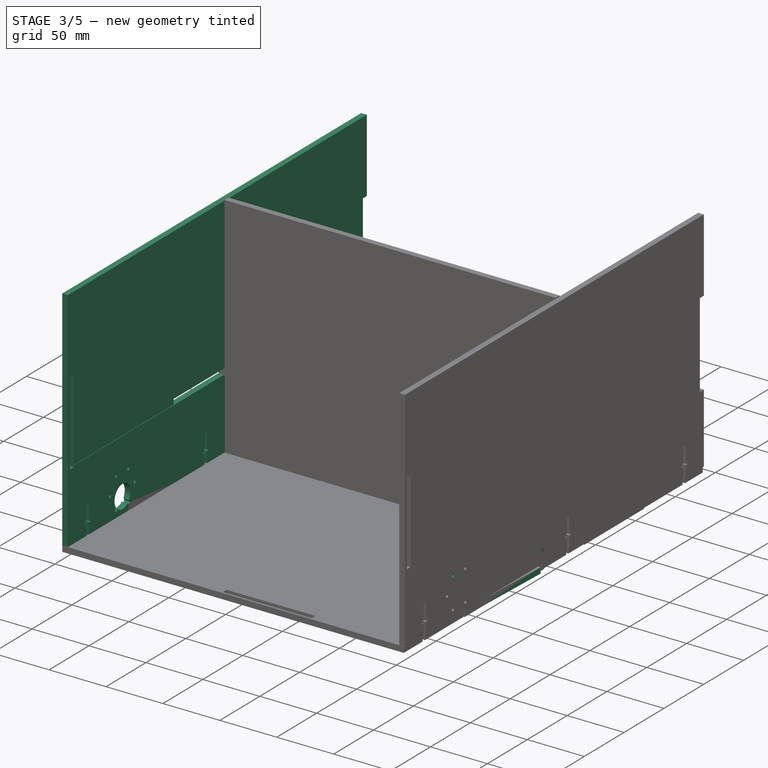
[diagram: stage 3 of 5 — iso view after this stage's code; geometry added in this stage tinted green]
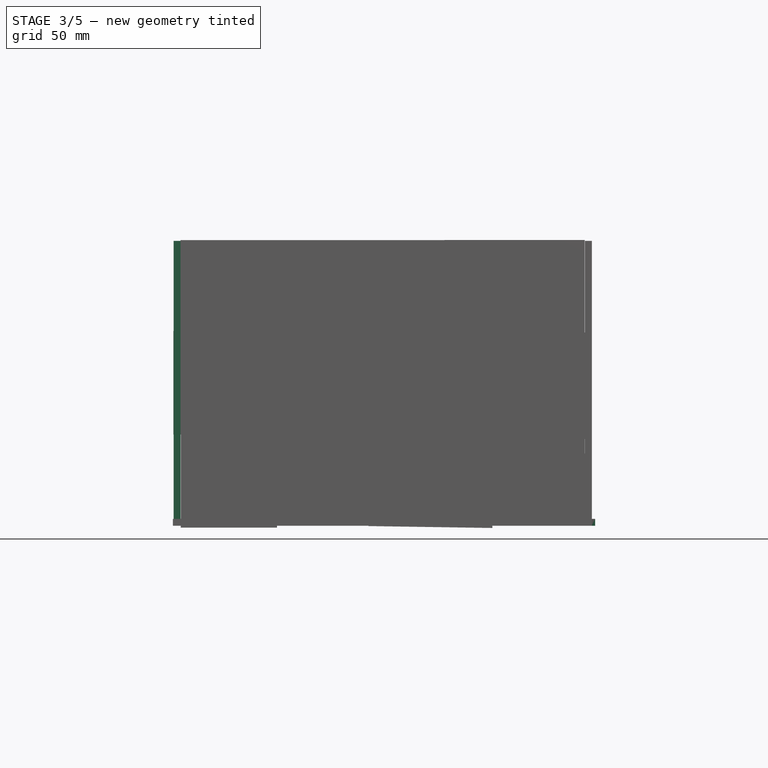
[diagram: stage 3 of 5 — front view after this stage's code; geometry added in this stage tinted green]
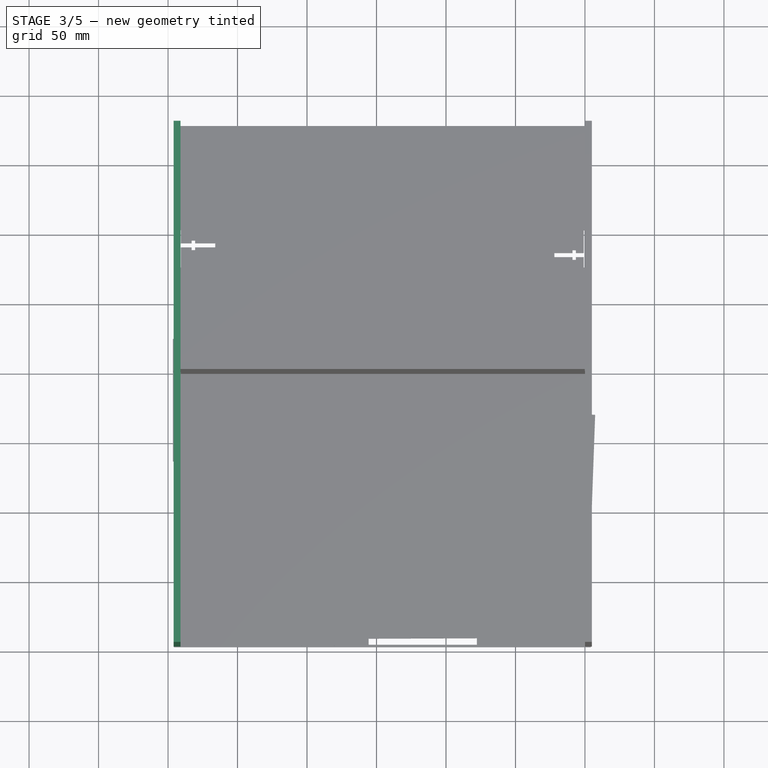
[diagram: stage 3 of 5 — top view after this stage's code; geometry added in this stage tinted green]
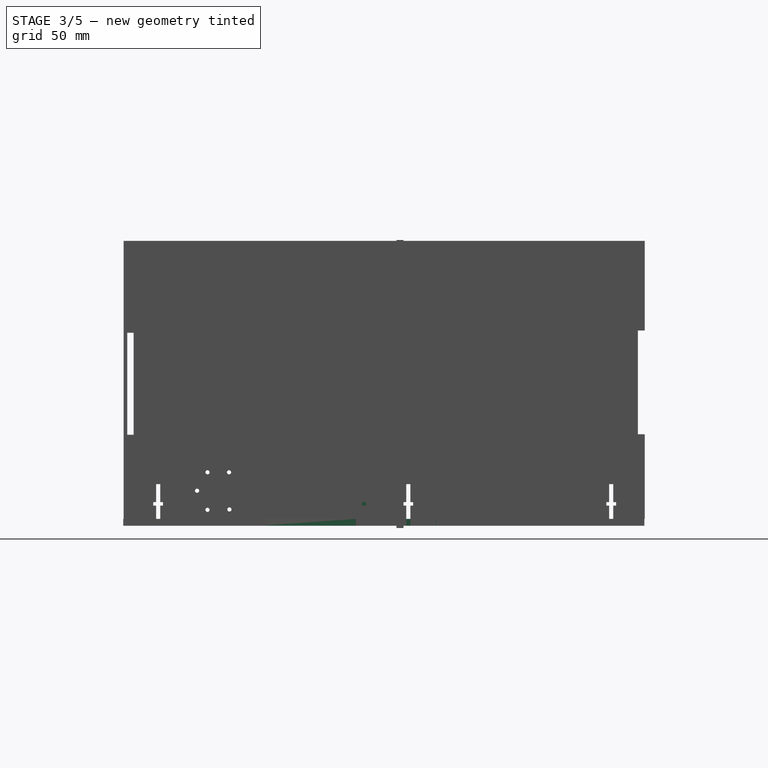
[diagram: stage 3 of 5 — right view after this stage's code; geometry added in this stage tinted green]
FEATURE [Part::Box] Box038  label="Cube038"
  AttacherType = Attacher::AttachEngine3D
  Height = 5
  Length = 2.5
  Placement = pos=(-9,-34,0) rot=(0,0,1;0rad)
  Width = 7
FEATURE [Part::Box] Box041  label="Cube041"
  AttacherType = Attacher::AttachEngine3D
  Height = 5
  Length = 30
  Placement = pos=(-22,-32,0) rot=(0,0,1;0rad)
  Width = 3
FEATURE [Part::Cylinder] Cylinder032
  Angle = 360
  AttacherType = Attacher::AttachEngine3D
  Height = 10
  Placement = pos=(-0.5,-136,11.5) rot=(0,1,0;1.5708rad)
  Radius = 1.5
FEATURE [Part::Cylinder] Cylinder033
  Angle = 360
  AttacherType = Attacher::AttachEngine3D
  Height = 10
  Placement = pos=(-2.5,-120.25,11.75) rot=(0,1,0;1.5708rad)
  Radius = 1.5
FEATURE [Part::Cylinder] Cylinder038
  Angle = 360
  AttacherType = Attacher::AttachEngine3D
  Height = 10
  Placement = pos=(-2.5,-143.5,25.25) rot=(0,1,0;1.5708rad)
  Radius = 1.5
FEATURE [Part::Cylinder] Cylinder041
  Angle = 360
  AttacherType = Attacher::AttachEngine3D
  Height = 10
  Placement = pos=(-1.5,-136,38.5) rot=(0,1,0;1.5708rad)
  Radius = 1.5
FEATURE [Part::Cylinder] Cylinder042
  Angle = 360
  AttacherType = Attacher::AttachEngine3D
  Height = 10
  Placement = pos=(-0.5,-120.5,38.5) rot=(0,1,0;1.5708rad)
  Radius = 1.5
FEATURE [Part::Box] Box043  label="Cube043"
  AttacherType = Attacher::AttachEngine3D
  Height = 5
  Length = 2.5
  Placement = pos=(-9,-34,0) rot=(0,0,1;0rad)
  Width = 7
FEATURE [Part::Box] Box044  label="Cube044"
  AttacherType = Attacher::AttachEngine3D
  Height = 5
  Length = 2.5
  Placement = pos=(-9,-34,0) rot=(0,0,1;0rad)
  Width = 7
FEATURE [Part::Box] Box045  label="Cube045"
  AttacherType = Attacher::AttachEngine3D
  Height = 5
  Length = 30
  Placement = pos=(-22,-32,0) rot=(0,0,1;0rad)
  Width = 3
FEATURE [Part::MultiFuse] Fusion022
  Placement = pos=(0,-141,8) rot=(0,1,0;1.5708rad)
  Shapes = -> [Box045,Box043]
FEATURE [Part::Box] Box046  label="Cube046"
  AttacherType = Attacher::AttachEngine3D
  Height = 5
  Length = 2.5
  Placement = pos=(-9,-34,0) rot=(0,0,1;0rad)
  Width = 7
FEATURE [Part::Box] Box047  label="Cube047"
  AttacherType = Attacher::AttachEngine3D
  Height = 5
  Length = 30
  Placement = pos=(-22,-32,0) rot=(0,0,1;0rad)
  Width = 3
FEATURE [Part::MultiFuse] Fusion021
  Placement = pos=(0,185,8) rot=(0,1,0;1.5708rad)
  Shapes = -> [Box047,Box044]
FEATURE [Part::Box] Box048  label="Cube048"
  AttacherType = Attacher::AttachEngine3D
  Height = 5
  Length = 30
  Placement = pos=(-22,-32,0) rot=(0,0,1;0rad)
  Width = 3
FEATURE [Part::Box] Box049  label="Cube049"
  AttacherType = Attacher::AttachEngine3D
  Height = 5
  Length = 30
  Placement = pos=(-22,-32,0) rot=(0,0,1;0rad)
  Width = 3
FEATURE [Part::MultiFuse] Fusion023
  Placement = pos=(0,7,8) rot=(0,1,0;1.5708rad)
  Shapes = -> [Box049,Box046]
FEATURE [Part::Box] Box050  label="Cube050"
  AttacherType = Attacher::AttachEngine3D
  Height = 5
  Length = 2.5
  Placement = pos=(-9,-34,0) rot=(0,0,1;0rad)
  Width = 7
FEATURE [Part::MultiFuse] Fusion024
  Placement = pos=(0,39,8) rot=(0,1,0;1.5708rad)
  Shapes = -> [Box048,Box050]
FEATURE [Part::Cut] Cut080
  Tool = -> Fusion023
FEATURE [Part::Cut] Cut087
  Base = -> Cut080
  Tool = -> Fusion024
FEATURE [Part::Cut] Cut077
  Base = -> Cut087
  Tool = -> Cylinder033
FEATURE [Part::Cut] Cut069
  Base = -> Cut077
  Tool = -> Cylinder032
FEATURE [Part::Cut] Cut071
  Base = -> Cut069
  Tool = -> Fusion021
FEATURE [Part::Cut] Cut082
  Base = -> Cut071
  Tool = -> Fusion022
FEATURE [Part::Cut] Cut084
  Base = -> Cut082
  Tool = -> Cylinder038
FEATURE [Part::Cut] Cut085
  Base = -> Cut084
  Tool = -> Cylinder042
FEATURE [Part::Cut] Cut073
  Base = -> Cut085
  Tool = -> Cylinder041
FEATURE [Part::MultiFuse] Fusion019
  Placement = pos=(0,7,8) rot=(0,1,0;1.5708rad)
  Shapes = -> [Box041,Box038]
FEATURE [Part::Box] Box053  label="Cube053"
  AttacherType = Attacher::AttachEngine3D
  Height = 5
  Length = 5
  Placement = pos=(0,-65,0) rot=(0,0,1;0rad)
  Width = 3
FEATURE [Part::Cylinder] Cylinder047
  Angle = 360
  AttacherType = Attacher::AttachEngine3D
  Height = 10
  Placement = pos=(-1,-128,19) rot=(0,1,0;1.5708rad)
  Radius = 10
FEATURE [Part::Cylinder] Cylinder049
  Angle = 360
  AttacherType = Attacher::AttachEngine3D
  Height = 10
  Placement = pos=(-2.5,105.5,38.5) rot=(0,1,0;1.5708rad)
  Radius = 1.5
FEATURE [Part::Cylinder] Cylinder050
  Angle = 360
  AttacherType = Attacher::AttachEngine3D
  Height = 10
  Placement = pos=(-1.5,89,38.5) rot=(0,1,0;1.5708rad)
  Radius = 1.5
FEATURE [Part::Cylinder] Cylinder051
  Angle = 360
  AttacherType = Attacher::AttachEngine3D
  Height = 10
  Placement = pos=(-0.5,81.5,25) rot=(0,1,0;1.5708rad)
  Radius = 1.5
FEATURE [Part::Cylinder] Cylinder052
  Angle = 360
  AttacherType = Attacher::AttachEngine3D
  Height = 10
  Placement = pos=(-1,97,19) rot=(0,1,0;1.5708rad)
  Radius = 10
FEATURE [Part::Cylinder] Cylinder053
  Angle = 360
  AttacherType = Attacher::AttachEngine3D
  Height = 10
  Placement = pos=(-1,97,19) rot=(0,1,0;1.5708rad)
  Radius = 10
FEATURE [Part::Cylinder] Cylinder054
  Angle = 360
  AttacherType = Attacher::AttachEngine3D
  Height = 10
  Placement = pos=(-0.5,112.5,25) rot=(0,1,0;1.5708rad)
  Radius = 1.5
FEATURE [Part::Cylinder] Cylinder055
  Angle = 360
  AttacherType = Attacher::AttachEngine3D
  Height = 10
  Placement = pos=(-1.5,-136,38.5) rot=(0,1,0;1.5708rad)
  Radius = 1.5
FEATURE [Part::Cylinder] Cylinder057
  Angle = 360
  AttacherType = Attacher::AttachEngine3D
  Height = 10
  Placement = pos=(-1.5,-112.5,25) rot=(0,1,0;1.5708rad)
  Radius = 1.5
FEATURE [Part::Cylinder] Cylinder060
  Angle = 360
  AttacherType = Attacher::AttachEngine3D
  Height = 10
  Placement = pos=(-1.5,89,11.5) rot=(0,1,0;1.5708rad)
  Radius = 1.5
FEATURE [Part::Cylinder] Cylinder061
  Angle = 360
  AttacherType = Attacher::AttachEngine3D
  Height = 10
  Placement = pos=(-0.5,104.75,11.5) rot=(0,1,0;1.5708rad)
  Radius = 1.5
FEATURE [Part::Cut] Cut106
  Base = -> Cut114
  Tool = -> Cylinder055
FEATURE [Part::Cut] Cut109
  Base = -> Cut106
  Tool = -> Cylinder057
FEATURE [Part::Cut] Cut111
  Base = -> Cut109
  Tool = -> Cylinder049
FEATURE [Part::Cut] Cut103
  Base = -> Cut111
  Tool = -> Cylinder061
FEATURE [Part::Cut] Cut112
  Base = -> Cut103
  Tool = -> Cylinder051
FEATURE [Part::Cut] Cut119
  Base = -> Cut112
  Tool = -> Cylinder050
FEATURE [Part::Cut] Cut107
  Base = -> Cut119
  Tool = -> Cylinder060
FEATURE [Part::Cut] Cut104
  Base = -> Cut107
  Tool = -> Cylinder054
FEATURE [Part::Cut] Cut120
  Base = -> Cut104
  Tool = -> Cylinder053
FEATURE [Part::Cut] Cut118
  Base = -> Cut120
  Tool = -> Cylinder052
FEATURE [Part::Cut] Cut121
  Base = -> Cut118
  Tool = -> Cylinder047
FEATURE [Part::MultiFuse] Fusion028
  Placement = pos=(0,7,8) rot=(0,1,0;1.5708rad)
  Shapes = -> [Box068,Box069]
FEATURE [Part::Cut] Cut105
  Base = -> Cut121
  Tool = -> Fusion028
FEATURE [Part::MultiFuse] Fusion029
  Placement = pos=(0,39,8) rot=(0,1,0;1.5708rad)
  Shapes = -> [Box070,Box071]
FEATURE [Part::Cut] Cut122
  Base = -> Cut105
  Tool = -> Fusion029
FEATURE [Part::Cut] Cut123
  Base = -> Cut122
  Tool = -> Box073
FEATURE [Part::Cut] Cut101
  Base = -> Cut123
  Placement = pos=(-296,0,0) rot=(0,0,1;0rad)
  Tool = -> Box072
FEATURE [Sketcher::SketchObject] Sketch011
  MapMode = 5
  Support = -> [XY_Plane039]
  sketch-geometry (20):
    g0: LineSegment StartX=-289.272 StartY=73.2481 StartZ=0 EndX=-0.183427 EndY=73.2481 EndZ=0
    g1: LineSegment StartX=-0.183427 StartY=73.2481 StartZ=0 EndX=-0.183427 EndY=-29.7316 EndZ=0
    g2: LineSegment StartX=-0.183427 StartY=-29.7316 StartZ=0 EndX=4.81657 EndY=-29.7168 EndZ=0
    g3: LineSegment StartX=4.81657 StartY=-29.7168 StartZ=0 EndX=5.02227 EndY=-98.8239 EndZ=0
    g4: LineSegment StartX=5.02227 StartY=-98.8239 StartZ=0 EndX=0.022272 EndY=-98.8433 EndZ=0
    g5: LineSegment StartX=0.022272 StartY=-98.8433 StartZ=0 EndX=0.375626 EndY=-189.94 EndZ=0
    g6: LineSegment StartX=0.375626 StartY=-189.94 StartZ=0 EndX=-174.051 EndY=-190.617 EndZ=0
    g7: LineSegment StartX=-290.972 StartY=-189.816 StartZ=0 EndX=-289.272 EndY=-63.0414 EndZ=0
    g8: LineSegment StartX=-289.272 StartY=-63.0414 StartZ=0 EndX=-294.272 EndY=-62.9743 EndZ=0
    g9: LineSegment StartX=-294.272 StartY=-62.9743 StartZ=0 EndX=-294.272 EndY=25.1961 EndZ=0
    g10: LineSegment StartX=-294.272 StartY=25.1961 StartZ=0 EndX=-289.272 EndY=25.1961 EndZ=0
    g11: LineSegment StartX=-289.272 StartY=25.1961 StartZ=0 EndX=-289.272 EndY=73.2481 EndZ=0
    g12: LineSegment StartX=-174.032 StartY=-195.617 StartZ=0 EndX=-218.496 EndY=-195.789 EndZ=0
    g13: LineSegment StartX=-218.496 StartY=-195.789 StartZ=0 EndX=-218.429 EndY=-190.789 EndZ=0
    g14: LineSegment StartX=-218.429 StartY=-190.789 StartZ=0 EndX=-290.972 EndY=-189.816 EndZ=0
    g15: LineSegment StartX=-174.032 StartY=-195.617 StartZ=0 EndX=-174.051 EndY=-190.617 EndZ=0
    g16: LineSegment StartX=-213.184 StartY=50.22 StartZ=0 EndX=-88.3057 EndY=50.22 EndZ=0
    g17: LineSegment StartX=-88.3057 StartY=50.22 StartZ=0 EndX=-88.3057 EndY=37.4896 EndZ=0
    g18: LineSegment StartX=-88.3057 StartY=37.4896 StartZ=0 EndX=-213.184 EndY=37.4896 EndZ=0
    g19: LineSegment StartX=-213.184 StartY=37.4896 StartZ=0 EndX=-213.184 EndY=50.22 EndZ=0
  constraints (43):
    c: Coincident(g0,g1)
    c: Coincident(g1,g2)
    c: Coincident(g2,g3)
    c: Coincident(g3,g4)
    c: Coincident(g4,g5)
    c: Coincident(g5,g6)
    c: Coincident(g7,g8)
    c: Coincident(g8,g9)
    c: Coincident(g9,g10)
    c: Coincident(g10,g11)
    c: Coincident(g0,g11)
    c: Angle(g11,g0) = 1.5708
    c: Angle(g9,g10) = 1.5708
    c: Angle(g8,g7) = 1.5708
    c: Angle(g5,g4) = 1.5708
    c: Angle(g2,g3) = 1.5708
    c: Angle(g-2,g1) = 0
    c: Angle(g0,g-2) = 1.5708
    c: DistanceX(g8,g8) = 5
    c: DistanceX(g10,g10) = 5
    c: DistanceX(g2,g2) = 5
    c: DistanceX(g4,g4) = 5
    c: Angle(g9,g-2) = 0
    c: Coincident(g12,g13)
    c: Coincident(g13,g14)
    c: Coincident(g7,g14)
    c: Angle(g14,g13) = 1.5708
    c: Angle(g14,g7) = 1.5708
    c: DistanceY(g13,g13) = 5
    c: Angle(g5,g6) = 1.5708
    c: Coincident(g12,g15)
    c: Coincident(g15,g6)
    c: Angle(g15,g6) = 1.5708
    c: Angle(g15,g12) = 1.5708
    c: DistanceY(g15,g15) = 5
    c: Coincident(g16,g17)
    c: Coincident(g17,g18)
    c: Coincident(g18,g19)
    c: Coincident(g19,g16)
    c: Horizontal(g16)
    c: Horizontal(g18)
    c: Vertical(g17)
    c: Vertical(g19)
FEATURE [PartDesign::Pad] Pad
  Length = 5
  Length2 = 100
  Profile = -> Sketch011
  Type = 0
FEATURE [PartDesign::Body] Body034  label="Body035"
  Group = -> [Sketch012,Pad013]
  Origin = -> Origin040
  Placement = pos=(0,0,67) rot=(0,0,1;0rad)
  Tip = -> Pad013
FEATURE [Part::Cut] Cut136
  Base = -> Cut101
  Tool = -> Body034
FEATURE [Sketcher::SketchObject] Sketch013
  MapMode = 5
  Support = -> [XY_Plane041]
  sketch-geometry (16):
    g0: LineSegment StartX=-291.545 StartY=76.5822 StartZ=0 EndX=0.0727261 EndY=76.5822 EndZ=0
    g1: LineSegment StartX=0.0727261 StartY=76.5822 StartZ=0 EndX=0.0727261 EndY=-29.3721 EndZ=0
    g2: LineSegment StartX=0.0727261 StartY=-29.3721 StartZ=0 EndX=5.07273 EndY=-29.3855 EndZ=0
    g3: LineSegment StartX=5.07273 StartY=-29.3855 StartZ=0 EndX=4.88558 EndY=-98.8112 EndZ=0
    g4: LineSegment StartX=4.88558 StartY=-98.8112 StartZ=0 EndX=-0.114417 EndY=-98.826 EndZ=0
    g5: LineSegment StartX=-0.114417 StartY=-98.826 StartZ=0 EndX=0.15557 EndY=-189.922 EndZ=0
    g6: LineSegment StartX=0.15557 StartY=-189.922 StartZ=0 EndX=-174.05 EndY=-190.438 EndZ=0
    g7: LineSegment StartX=-291.444 StartY=-190.628 StartZ=0 EndX=-291.545 EndY=-63.0068 EndZ=0
    g8: LineSegment StartX=-291.545 StartY=-63.0068 StartZ=0 EndX=-296.545 EndY=-63.0108 EndZ=0
    g9: LineSegment StartX=-296.545 StartY=-63.0108 StartZ=0 EndX=-296.545 EndY=25.1961 EndZ=0
    g10: LineSegment StartX=-296.545 StartY=25.1961 StartZ=0 EndX=-291.545 EndY=25.1961 EndZ=0
    g11: LineSegment StartX=-291.545 StartY=25.1961 StartZ=0 EndX=-291.545 EndY=76.5822 EndZ=0
    g12: LineSegment StartX=-174.035 StartY=-195.438 StartZ=0 EndX=-218.458 EndY=-195.57 EndZ=0
    g13: LineSegment StartX=-218.458 StartY=-195.57 StartZ=0 EndX=-218.462 EndY=-190.57 EndZ=0
    g14: LineSegment StartX=-218.462 StartY=-190.57 StartZ=0 EndX=-291.444 EndY=-190.628 EndZ=0
    g15: LineSegment StartX=-174.035 StartY=-195.438 StartZ=0 EndX=-174.05 EndY=-190.438 EndZ=0
  constraints (35):
    c: Coincident(g0,g1)
    c: Coincident(g1,g2)
    c: Coincident(g2,g3)
    c: Coincident(g3,g4)
    c: Coincident(g4,g5)
    c: Coincident(g5,g6)
    c: Coincident(g7,g8)
    c: Coincident(g8,g9)
    c: Coincident(g9,g10)
    c: Coincident(g10,g11)
    c: Coincident(g0,g11)
    c: Angle(g11,g0) = 1.5708
    c: Angle(g9,g10) = 1.5708
    c: Angle(g8,g7) = 1.5708
    c: Angle(g5,g4) = 1.5708
    c: Angle(g2,g3) = 1.5708
    c: Angle(g-2,g1) = 0
    c: Angle(g0,g-2) = 1.5708
    c: DistanceX(g8,g8) = 5
    c: DistanceX(g10,g10) = 5
    c: DistanceX(g2,g2) = 5
    c: DistanceX(g4,g4) = 5
    c: Angle(g9,g-2) = 0
    c: Coincident(g12,g13)
    c: Coincident(g13,g14)
    c: Coincident(g7,g14)
    c: Angle(g14,g13) = 1.5708
    c: Angle(g14,g7) = 1.5708
    c: DistanceY(g13,g13) = 5
    c: Angle(g5,g6) = 1.5708
    c: Coincident(g12,g15)
    c: Coincident(g15,g6)
    c: Angle(g15,g6) = 1.5708
    c: Angle(g15,g12) = 1.5708
    c: DistanceY(g15,g15) = 5
FEATURE [PartDesign::Pad] Pad014
  Length = 5
  Length2 = 100
  Profile = -> Sketch013
  Type = 0
FEATURE [Sketcher::SketchObject] Sketch015
  MapMode = 5
  Support = -> [XY_Plane043]
  sketch-geometry (20):
    g0: LineSegment StartX=-289.271 StartY=73.2481 StartZ=0 EndX=2.3472 EndY=73.2481 EndZ=0
    g1: LineSegment StartX=2.3472 StartY=73.2481 StartZ=0 EndX=2.3472 EndY=-29.2887 EndZ=0
    g2: LineSegment StartX=2.3472 StartY=-29.2887 StartZ=0 EndX=7.3472 EndY=-29.4688 EndZ=0
    g3: LineSegment StartX=7.3472 StartY=-29.4688 StartZ=0 EndX=4.84887 EndY=-98.8082 EndZ=0
    g4: LineSegment StartX=4.84887 StartY=-98.8082 StartZ=0 EndX=-0.151126 EndY=-98.8294 EndZ=0
    g5: LineSegment StartX=-0.151126 StartY=-98.8294 StartZ=0 EndX=0.234856 EndY=-189.881 EndZ=0
    g6: LineSegment StartX=0.234856 StartY=-189.881 StartZ=0 EndX=-174.052 EndY=-190.62 EndZ=0
    g7: LineSegment StartX=-290.98 StartY=-189.83 StartZ=0 EndX=-289.271 EndY=-63.0416 EndZ=0
    g8: LineSegment StartX=-289.271 StartY=-63.0416 StartZ=0 EndX=-294.271 EndY=-62.9742 EndZ=0
    g9: LineSegment StartX=-294.271 StartY=-62.9742 StartZ=0 EndX=-294.271 EndY=25.1961 EndZ=0
    g10: LineSegment StartX=-294.271 StartY=25.1961 StartZ=0 EndX=-289.271 EndY=25.1961 EndZ=0
    g11: LineSegment StartX=-289.271 StartY=25.1961 StartZ=0 EndX=-289.271 EndY=73.2481 EndZ=0
    g12: LineSegment StartX=-174.031 StartY=-195.62 StartZ=0 EndX=-218.496 EndY=-195.809 EndZ=0
    g13: LineSegment StartX=-218.496 StartY=-195.809 StartZ=0 EndX=-218.428 EndY=-190.809 EndZ=0
    g14: LineSegment StartX=-218.428 StartY=-190.809 StartZ=0 EndX=-290.98 EndY=-189.83 EndZ=0
    g15: LineSegment StartX=-174.031 StartY=-195.62 StartZ=0 EndX=-174.052 EndY=-190.62 EndZ=0
    g16: LineSegment StartX=-213.184 StartY=50.22 StartZ=0 EndX=-88.3057 EndY=50.22 EndZ=0
    g17: LineSegment StartX=-88.3057 StartY=50.22 StartZ=0 EndX=-88.3057 EndY=37.4896 EndZ=0
    g18: LineSegment StartX=-88.3057 StartY=37.4896 StartZ=0 EndX=-213.184 EndY=37.4896 EndZ=0
    g19: LineSegment StartX=-213.184 StartY=37.4896 StartZ=0 EndX=-213.184 EndY=50.22 EndZ=0
  constraints (43):
    c: Coincident(g0,g1)
    c: Coincident(g1,g2)
    c: Coincident(g2,g3)
    c: Coincident(g3,g4)
    c: Coincident(g4,g5)
    c: Coincident(g5,g6)
    c: Coincident(g7,g8)
    c: Coincident(g8,g9)
    c: Coincident(g9,g10)
    c: Coincident(g10,g11)
    c: Coincident(g0,g11)
    c: Angle(g11,g0) = 1.5708
    c: Angle(g9,g10) = 1.5708
    c: Angle(g8,g7) = 1.5708
    c: Angle(g5,g4) = 1.5708
    c: Angle(g2,g3) = 1.5708
    c: Angle(g-2,g1) = 0
    c: Angle(g0,g-2) = 1.5708
    c: DistanceX(g8,g8) = 5
    c: DistanceX(g10,g10) = 5
    c: DistanceX(g2,g2) = 5
    c: DistanceX(g4,g4) = 5
    c: Angle(g9,g-2) = 0
    c: Coincident(g12,g13)
    c: Coincident(g13,g14)
    c: Coincident(g7,g14)
    c: Angle(g14,g13) = 1.5708
    c: Angle(g14,g7) = 1.5708
    c: DistanceY(g13,g13) = 5
    c: Angle(g5,g6) = 1.5708
    c: Coincident(g12,g15)
    c: Coincident(g15,g6)
    c: Angle(g15,g6) = 1.5708
    c: Angle(g15,g12) = 1.5708
    c: DistanceY(g15,g15) = 5
    c: Coincident(g16,g17)
    c: Coincident(g17,g18)
    c: Coincident(g18,g19)
    c: Coincident(g19,g16)
    c: Horizontal(g16)
    c: Horizontal(g18)
    c: Vertical(g17)
    c: Vertical(g19)
FEATURE [PartDesign::Pad] Pad016
  Length = 5
  Length2 = 100
  Profile = -> Sketch015
  Type = 0
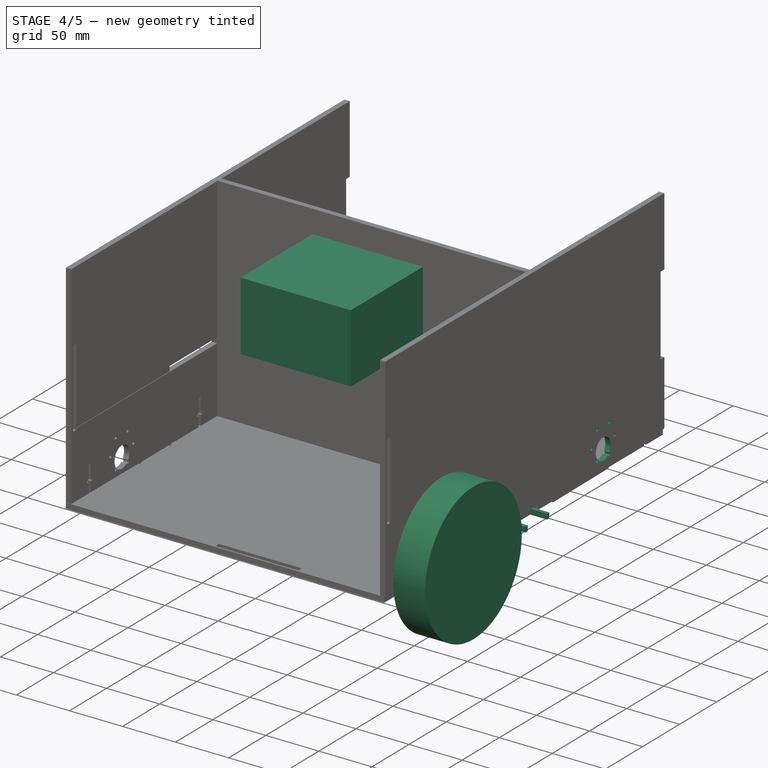
[diagram: stage 4 of 5 — iso view after this stage's code; geometry added in this stage tinted green]
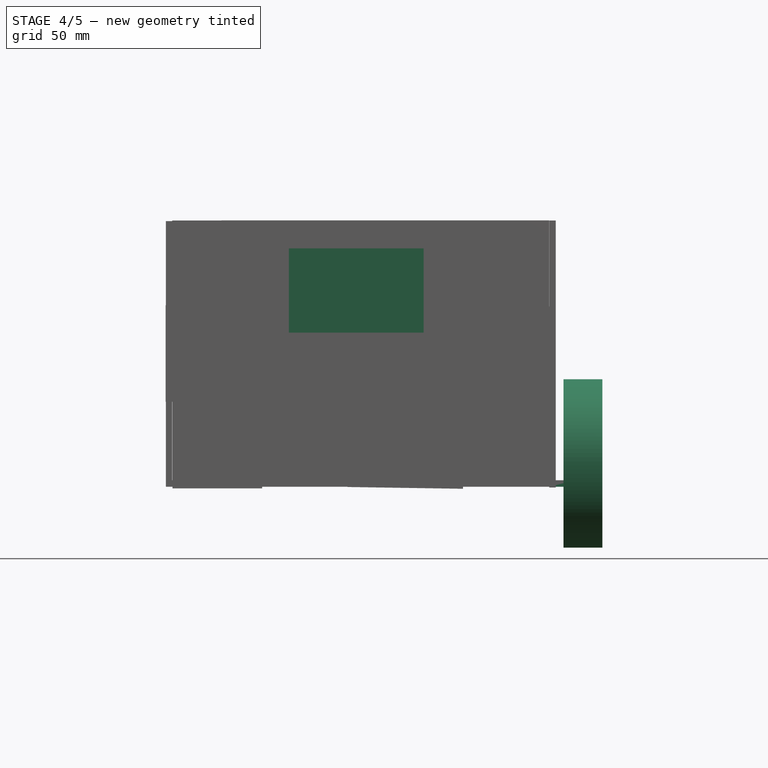
[diagram: stage 4 of 5 — front view after this stage's code; geometry added in this stage tinted green]
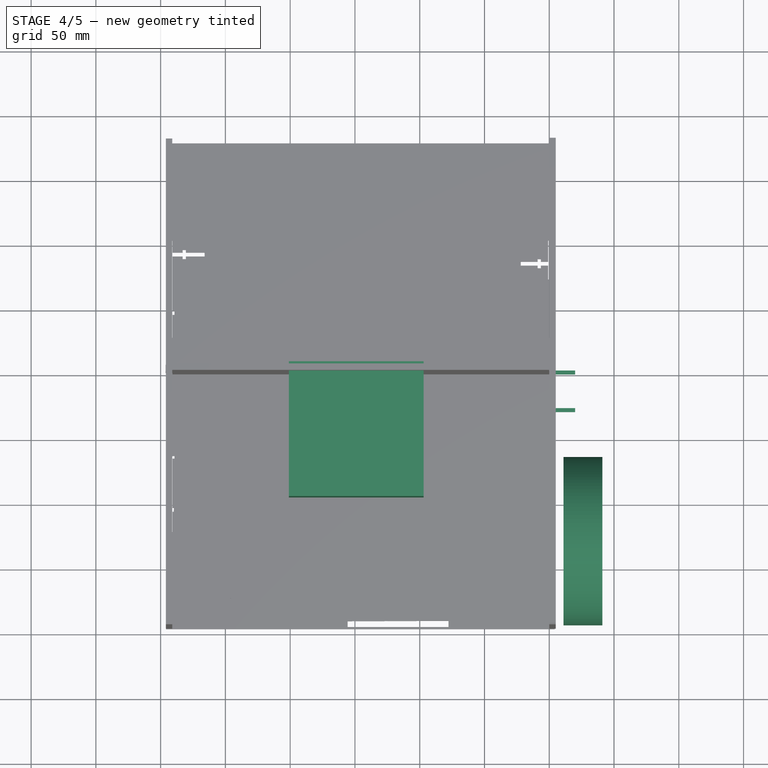
[diagram: stage 4 of 5 — top view after this stage's code; geometry added in this stage tinted green]
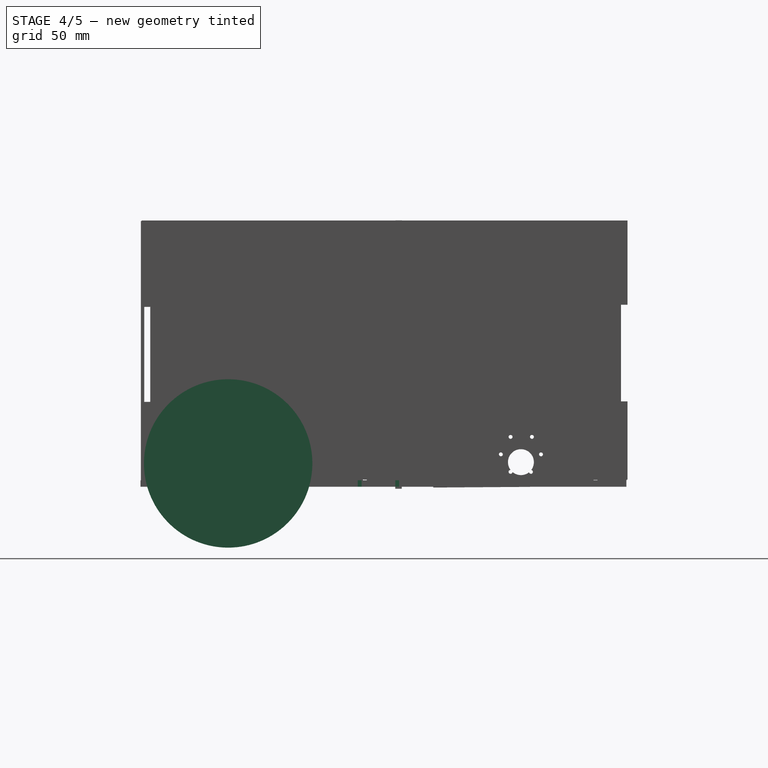
[diagram: stage 4 of 5 — right view after this stage's code; geometry added in this stage tinted green]
FEATURE [Part::Cylinder] Cylinder019
  Angle = 360
  AttacherType = Attacher::AttachEngine3D
  Height = 10
  Placement = pos=(-1,97,19) rot=(0,1,0;1.5708rad)
  Radius = 10
FEATURE [Part::Cylinder] Cylinder020
  Angle = 360
  AttacherType = Attacher::AttachEngine3D
  Height = 10
  Placement = pos=(-2.5,105.5,38.5) rot=(0,1,0;1.5708rad)
  Radius = 1.5
FEATURE [Part::Cylinder] Cylinder021
  Angle = 360
  AttacherType = Attacher::AttachEngine3D
  Height = 10
  Placement = pos=(-0.5,81.5,25) rot=(0,1,0;1.5708rad)
  Radius = 1.5
FEATURE [Part::Cylinder] Cylinder022
  Angle = 360
  AttacherType = Attacher::AttachEngine3D
  Height = 10
  Placement = pos=(-1.5,-112.5,25) rot=(0,1,0;1.5708rad)
  Radius = 1.5
FEATURE [Part::Cylinder] Cylinder024
  Angle = 360
  AttacherType = Attacher::AttachEngine3D
  Height = 10
  Placement = pos=(-1.5,89,11.5) rot=(0,1,0;1.5708rad)
  Radius = 1.5
FEATURE [Part::Cylinder] Cylinder025
  Angle = 360
  AttacherType = Attacher::AttachEngine3D
  Height = 10
  Placement = pos=(-0.5,112.5,25) rot=(0,1,0;1.5708rad)
  Radius = 1.5
FEATURE [Part::Cylinder] Cylinder026
  Angle = 360
  AttacherType = Attacher::AttachEngine3D
  Height = 10
  Placement = pos=(-1.5,-136,38.5) rot=(0,1,0;1.5708rad)
  Radius = 1.5
FEATURE [Part::Cylinder] Cylinder027
  Angle = 360
  AttacherType = Attacher::AttachEngine3D
  Height = 10
  Placement = pos=(-0.5,-120.5,38.5) rot=(0,1,0;1.5708rad)
  Radius = 1.5
FEATURE [Part::Cylinder] Cylinder028
  Angle = 360
  AttacherType = Attacher::AttachEngine3D
  Height = 10
  Placement = pos=(-1.5,89,38.5) rot=(0,1,0;1.5708rad)
  Radius = 1.5
FEATURE [Part::Cylinder] Cylinder029
  Angle = 360
  AttacherType = Attacher::AttachEngine3D
  Height = 10
  Placement = pos=(-0.5,104.75,11.5) rot=(0,1,0;1.5708rad)
  Radius = 1.5
FEATURE [Part::Box] Box040  label="Cube040"
  AttacherType = Attacher::AttachEngine3D
  Height = 5
  Length = 30
  Placement = pos=(-22,-32,0) rot=(0,0,1;0rad)
  Width = 3
FEATURE [Part::Cylinder] Cylinder030
  Angle = 360
  AttacherType = Attacher::AttachEngine3D
  Height = 10
  Placement = pos=(-1,97,19) rot=(0,1,0;1.5708rad)
  Radius = 10
FEATURE [Part::Box] Box042  label="Cube042"
  AttacherType = Attacher::AttachEngine3D
  Height = 5
  Length = 2.5
  Placement = pos=(-9,-34,0) rot=(0,0,1;0rad)
  Width = 7
FEATURE [Part::MultiFuse] Fusion020
  Placement = pos=(0,39,8) rot=(0,1,0;1.5708rad)
  Shapes = -> [Box040,Box042]
FEATURE [Part::Cylinder] Cylinder031
  Angle = 360
  AttacherType = Attacher::AttachEngine3D
  Height = 10
  Placement = pos=(-1,-128,19) rot=(0,1,0;1.5708rad)
  Radius = 10
FEATURE [Part::Cut] Cut040
  Tool = -> Cylinder031
FEATURE [Part::Cut] Cut025
  Base = -> Cut040
  Tool = -> Cylinder030
FEATURE [Part::Cut] Cut037
  Base = -> Cut025
  Tool = -> Cylinder019
FEATURE [Part::Cut] Cut034
  Base = -> Cut037
  Tool = -> Cylinder025
FEATURE [Part::Cut] Cut029
  Base = -> Cut034
  Tool = -> Cylinder024
FEATURE [Part::Cut] Cut032
  Base = -> Cut029
  Tool = -> Cylinder028
FEATURE [Part::Cut] Cut038
  Base = -> Cut032
  Tool = -> Cylinder021
FEATURE [Part::Cut] Cut028
  Base = -> Cut038
  Tool = -> Cylinder029
FEATURE [Part::Cut] Cut026
  Base = -> Cut028
  Tool = -> Cylinder020
FEATURE [Part::Cut] Cut041
  Base = -> Cut026
  Tool = -> Cylinder022
FEATURE [Part::Cut] Cut035
  Base = -> Cut041
  Tool = -> Cylinder026
FEATURE [Part::Cut] Cut024
  Base = -> Cut035
  Tool = -> Cylinder027
FEATURE [Part::Cylinder] Cylinder034
  Angle = 360
  AttacherType = Attacher::AttachEngine3D
  Height = 10
  Placement = pos=(-1,97,19) rot=(0,1,0;1.5708rad)
  Radius = 10
FEATURE [Part::Cylinder] Cylinder035
  Angle = 360
  AttacherType = Attacher::AttachEngine3D
  Height = 10
  Placement = pos=(-2.5,105.5,38.5) rot=(0,1,0;1.5708rad)
  Radius = 1.5
FEATURE [Part::Cylinder] Cylinder036
  Angle = 360
  AttacherType = Attacher::AttachEngine3D
  Height = 10
  Placement = pos=(-0.5,81.5,25) rot=(0,1,0;1.5708rad)
  Radius = 1.5
FEATURE [Part::Cylinder] Cylinder037
  Angle = 360
  AttacherType = Attacher::AttachEngine3D
  Height = 10
  Placement = pos=(-1.5,-112.5,25) rot=(0,1,0;1.5708rad)
  Radius = 1.5
FEATURE [Part::Cylinder] Cylinder039
  Angle = 360
  AttacherType = Attacher::AttachEngine3D
  Height = 10
  Placement = pos=(-1.5,89,11.5) rot=(0,1,0;1.5708rad)
  Radius = 1.5
FEATURE [Part::Cylinder] Cylinder040
  Angle = 360
  AttacherType = Attacher::AttachEngine3D
  Height = 10
  Placement = pos=(-0.5,112.5,25) rot=(0,1,0;1.5708rad)
  Radius = 1.5
FEATURE [Part::Cylinder] Cylinder043
  Angle = 360
  AttacherType = Attacher::AttachEngine3D
  Height = 10
  Placement = pos=(-1.5,89,38.5) rot=(0,1,0;1.5708rad)
  Radius = 1.5
FEATURE [Part::Cylinder] Cylinder044
  Angle = 360
  AttacherType = Attacher::AttachEngine3D
  Height = 10
  Placement = pos=(-0.5,104.75,11.5) rot=(0,1,0;1.5708rad)
  Radius = 1.5
FEATURE [Part::Cylinder] Cylinder045
  Angle = 360
  AttacherType = Attacher::AttachEngine3D
  Height = 10
  Placement = pos=(-1,97,19) rot=(0,1,0;1.5708rad)
  Radius = 10
FEATURE [Part::Cylinder] Cylinder046
  Angle = 360
  AttacherType = Attacher::AttachEngine3D
  Height = 10
  Placement = pos=(-1,-128,19) rot=(0,1,0;1.5708rad)
  Radius = 10
FEATURE [Part::Cut] Cut070
  Base = -> Cut073
  Tool = -> Cylinder037
FEATURE [Part::Cut] Cut083
  Base = -> Cut070
  Tool = -> Cylinder035
FEATURE [Part::Cut] Cut081
  Base = -> Cut083
  Tool = -> Cylinder044
FEATURE [Part::Cut] Cut086
  Base = -> Cut081
  Tool = -> Cylinder036
FEATURE [Part::Cut] Cut078
  Base = -> Cut086
  Tool = -> Cylinder043
FEATURE [Part::Cut] Cut072
  Base = -> Cut078
  Tool = -> Cylinder039
FEATURE [Part::Cut] Cut079
  Base = -> Cut072
  Tool = -> Cylinder040
FEATURE [Part::Cut] Cut074
  Base = -> Cut079
  Tool = -> Cylinder034
FEATURE [Part::Cut] Cut075
  Base = -> Cut074
  Tool = -> Cylinder045
FEATURE [Part::Cut] Cut076
  Base = -> Cut075
  Tool = -> Cylinder046
FEATURE [Part::Cut] Cut088
  Base = -> Cut076
  Tool = -> Fusion019
FEATURE [Part::Cut] Cut089
  Base = -> Cut088
  Tool = -> Fusion020
FEATURE [Part::Box] Box056  label="Cube056"
  AttacherType = Attacher::AttachEngine3D
  Height = 5
  Length = 5
  Placement = pos=(0,46,0) rot=(0,0,1;0rad)
  Width = 3
FEATURE [Part::Cut] Cut093
  Base = -> Cut089
  Tool = -> Box053
FEATURE [Part::Cut] Cut095
  Base = -> Cut093
  Tool = -> Box056
FEATURE [PartDesign::Body] Body035  label="Body036"
  Group = -> [Sketch013,Pad014]
  Origin = -> Origin041
  Placement = pos=(0,0,67) rot=(0,0,1;0rad)
  Tip = -> Pad014
FEATURE [Part::Cut] Cut137
  Base = -> Cut095
  Tool = -> Body035
FEATURE [Part::Box] Box074  label="Cube074"
  AttacherType = Attacher::AttachEngine3D
  Height = 65
  Length = 104
  Placement = pos=(-201,-97,119) rot=(0,0,1;0rad)
  Width = 104
FEATURE [Part::Feature] Part__Feature076  label="Turnigy 4S 5200 mah"
  Placement = pos=(-164,-128,126) rot=(0,0,1;0rad)
  shape: bbox 142.9 x 28.58 x 47.63 mm, 14 faces (baked)
FEATURE [Part::Box] Box075  label="Cube075"
  AttacherType = Attacher::AttachEngine3D
  Height = 5
  Length = 20
  Width = 3
FEATURE [Part::Box] Box076  label="Cube076"
  AttacherType = Attacher::AttachEngine3D
  Height = 5
  Length = 20
  Placement = pos=(0,-29,0) rot=(0,0,1;0rad)
  Width = 3
FEATURE [Part::Box] Box077  label="Cube077"
  AttacherType = Attacher::AttachEngine3D
  Height = 5
  Length = 20
  Width = 3
FEATURE [Part::Box] Box078  label="Cube078"
  AttacherType = Attacher::AttachEngine3D
  Height = 5
  Length = 20
  Width = 3
FEATURE [Part::Box] Box079  label="Cube079"
  AttacherType = Attacher::AttachEngine3D
  Height = 5
  Length = 20
  Width = 3
FEATURE [Part::Box] Box080  label="Cube080"
  AttacherType = Attacher::AttachEngine3D
  Height = 5
  Length = 20
  Width = 3
FEATURE [Part::Box] Box081  label="Cube081"
  AttacherType = Attacher::AttachEngine3D
  Height = 5
  Length = 20
  Width = 3
FEATURE [Part::Cylinder] Cylinder074
  Angle = 360
  AttacherType = Attacher::AttachEngine3D
  Height = 30
  Placement = pos=(11,-129,18) rot=(0,1,0;1.5708rad)
  Radius = 65
FEATURE [PartDesign::Body] Body037  label="Body038"
  Group = -> [Sketch015,Pad016]
  Origin = -> Origin043
  Placement = pos=(0,0,67) rot=(0,0,1;0rad)
  Tip = -> Pad016
FEATURE [Part::Cut] Cut140
  Base = -> Cut137
  Tool = -> Body037
FEATURE [Part::Part2DObjectPython] Shape2DView  # Draft 2D object (typed FeaturePython)
  Base = -> Cut140
  HiddenLines = false
  InPlace = true
  Projection = (1,0,0)
  ProjectionMode = 0
  SegmentLength = 0.05
  Tessellation = false
  VisibleOnly = false
FEATURE [Part::Part2DObjectPython] Shape2DView001  # Draft 2D object (typed FeaturePython)
  Base = -> Pad
  FaceNumbers = [21]
  HiddenLines = false
  InPlace = true
  Projection = (0,0,1)
  ProjectionMode = 0
  SegmentLength = 0.05
  Tessellation = false
  VisibleOnly = false
FEATURE [Part::Part2DObjectPython] Shape2DView002  # Draft 2D object (typed FeaturePython)
  Base = -> Cut136
  FaceNumbers = [3]
  HiddenLines = false
  InPlace = true
  Projection = (-1,0,0)
  ProjectionMode = 0
  SegmentLength = 0.05
  Tessellation = false
  VisibleOnly = false
FEATURE [Part::Part2DObjectPython] Shape2DView003  # Draft 2D object (typed FeaturePython)
  Base = -> Pad008
  FaceNumbers = [26]
  HiddenLines = false
  InPlace = true
  Projection = (0,-1,0)
  ProjectionMode = 0
  SegmentLength = 0.05
  Tessellation = false
  VisibleOnly = false
FEATURE [Part::Part2DObjectPython] Shape2DView004  # Draft 2D object (typed FeaturePython)
  Base = -> Pad002
  FaceNumbers = [21]
  HiddenLines = false
  InPlace = true
  Projection = (0,1,0)
  ProjectionMode = 0
  SegmentLength = 0.05
  Tessellation = false
  VisibleOnly = false
FEATURE [Part::Part2DObjectPython] Shape2DView005  # Draft 2D object (typed FeaturePython)
  Base = -> Cut139
  FaceNumbers = [1]
  HiddenLines = false
  InPlace = true
  Projection = (0,3.57628e-07,-1)
  ProjectionMode = 0
  SegmentLength = 0.05
  Tessellation = false
  VisibleOnly = false
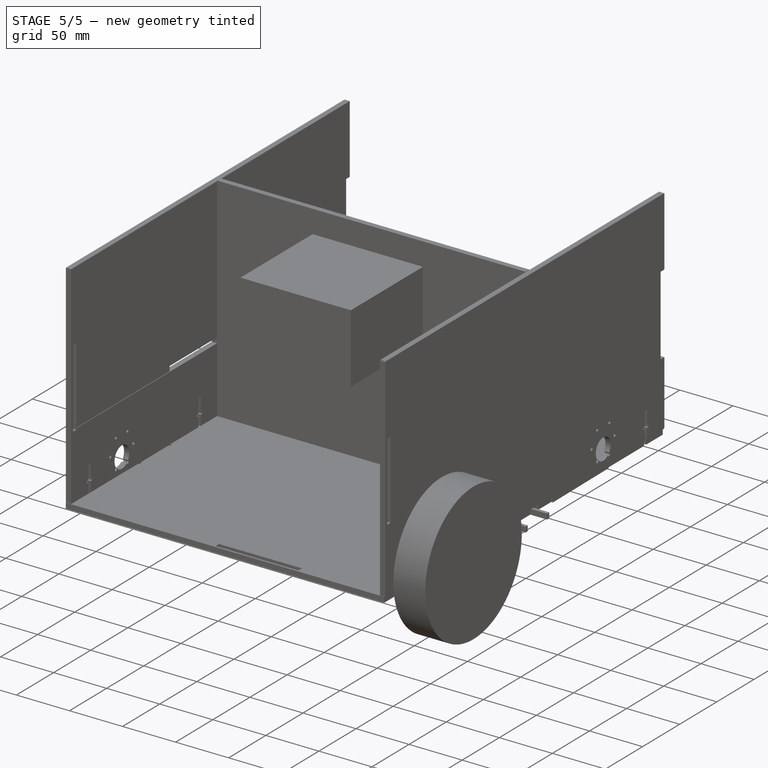
[diagram: stage 5 of 5 — iso view after this stage's code; geometry added in this stage tinted green]
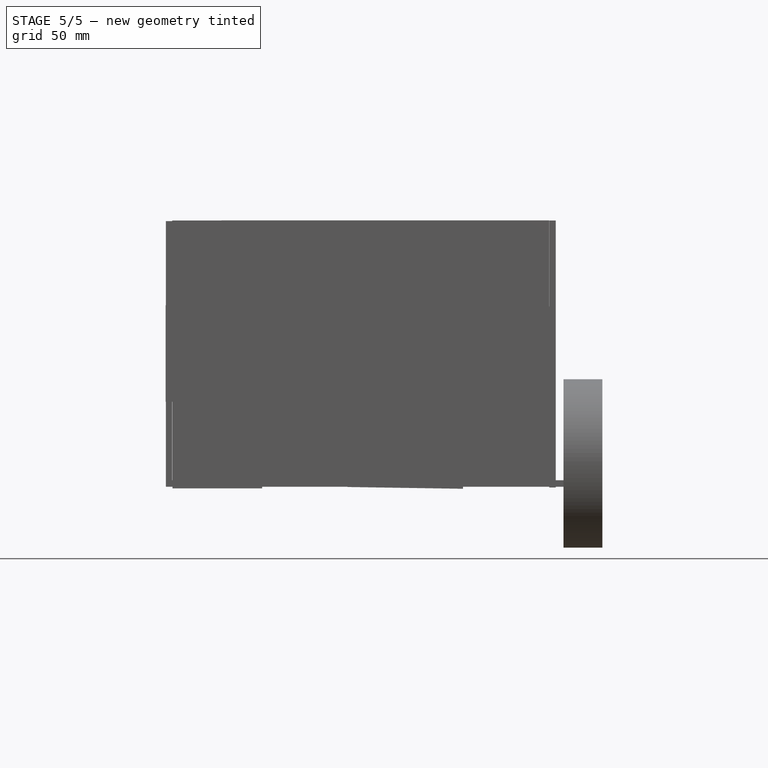
[diagram: stage 5 of 5 — front view after this stage's code; geometry added in this stage tinted green]
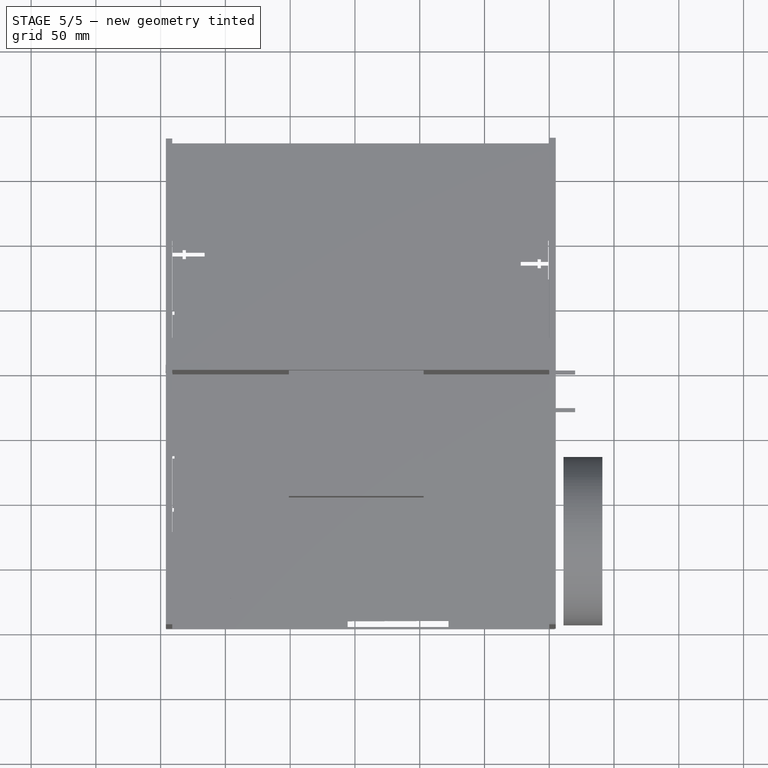
[diagram: stage 5 of 5 — top view after this stage's code; geometry added in this stage tinted green]
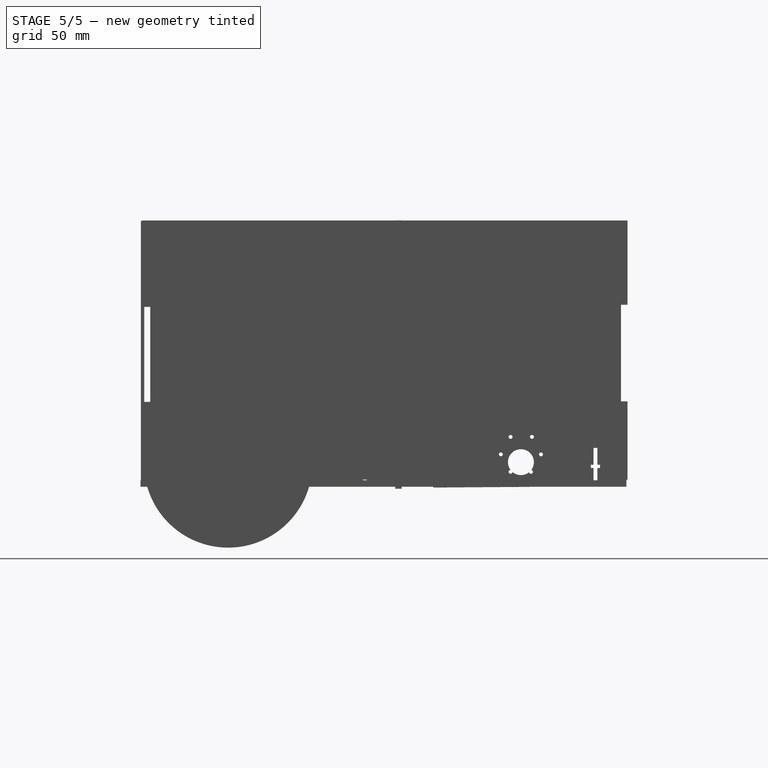
[diagram: stage 5 of 5 — right view after this stage's code; geometry added in this stage tinted green]
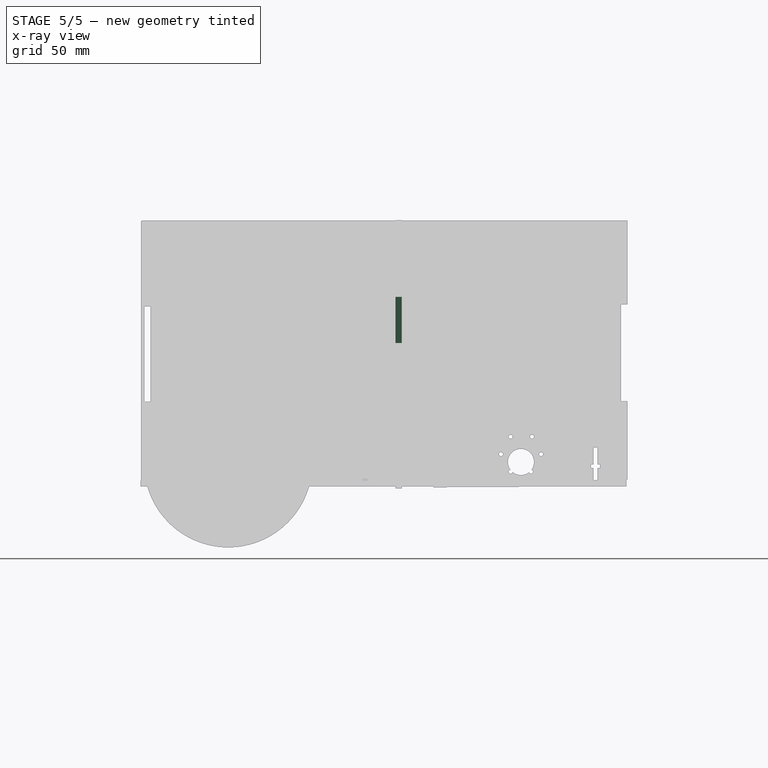
[diagram: stage 5 of 5 — x-ray composite at the right view; earlier geometry ghosted, this stage's added geometry solid]
FEATURE [Part::Feature] Part__Feature  label="GEARED BODY, MOTOR, JGB37-520"
  shape: bbox 37 x 37 x 29.02 mm, 71 faces (baked)
FEATURE [Part::Feature] Part__Feature001  label="DC MOTOR, JGB37-520"
  Placement = pos=(0,0,-29) rot=(0,0,1;3.14159rad)
  shape: bbox 35.72 x 35.72 x 19.5 mm, 11 faces (baked)
FEATURE [Part::Feature] Part__Feature002  label="MOTOR SHAFT, JGB37-520"
  Placement = pos=(0,7,0) rot=(0,0,1;2.80085rad)
  shape: bbox 6.001 x 6.001 x 21.5 mm, 8 faces (baked)
FEATURE [Part::Feature] Part__Feature003  label="SHAFT COUPLER, JGB37-520"
  Placement = pos=(0,7,0) rot=(0,0,1;0.886941rad)
  shape: bbox 12 x 12 x 6 mm, 8 faces (baked)
FEATURE [Part::Feature] Part__Feature004  label="COUPLING BRACKET, GEARED BODY TO DC MOTOR, JGB37-520"
  Placement = pos=(0,0,-25) rot=(0,0,1;0rad)
  shape: bbox 34 x 34 x 4 mm, 18 faces (baked)
FEATURE [Part::Feature] Part__Feature005  label="PLASTIC COVER, DC MOTOR, JGB37-520"
  Placement = pos=(0,2e-15,-48.5) rot=(0,0,1;0rad)
  shape: bbox 35.72 x 35.72 x 8.501 mm, 90 faces (baked)
FEATURE [Part::Feature] Part__Feature006  label="CONNECTION, DC MOTOR, JGB37-520"
  Placement = pos=(0,12.8,-50.25) rot=(0,1,0;3.14159rad)
  shape: bbox 3 x 3.971 x 10.88 mm, 21 faces (baked)
FEATURE [Part::Feature] Part__Feature007  label="CONNECTION, DC MOTOR, JGB37-521"
  Placement = pos=(8.9e-14,-12.8,-50.25) rot=(1,0,0;3.14159rad)
  shape: bbox 3 x 3.971 x 10.88 mm, 21 faces (baked)
FEATURE [Part::Feature] Part__Feature008  label="pan cross head_am_B18.6.7M - M2 x 0.4 x 25 Type I Cross Recessed PHMS --25N"
  Placement = pos=(-13.4234,7.75,-2e-15) rot=(0.706503,-0.041307,-0.706503;3.22416rad)
  shape: bbox 4.3 x 4.3 x 26.6 mm, 23 faces (baked)
FEATURE [Part::Feature] Part__Feature009  label="pan cross head_am_B18.6.7M - M2 x 0.4 x 25 Type I Cross Recessed PHMS --25N001"
  Placement = pos=(-4e-15,-15.5,-2e-15) rot=(0.481713,0.732055,-0.481713;1.87776rad)
  shape: bbox 4.316 x 4.705 x 26.6 mm, 23 faces (baked)
FEATURE [Part::Feature] Part__Feature010  label="pan cross head_am_B18.6.7M - M2 x 0.4 x 25 Type I Cross Recessed PHMS --25N002"
  Placement = pos=(13.4234,7.75,-2e-15) rot=(-0.409303,0.81544,0.409303;1.77342rad)
  shape: bbox 4.727 x 4.88 x 26.6 mm, 23 faces (baked)
FEATURE [Part::Cylinder] Cylinder
  Angle = 360
  AttacherType = Attacher::AttachEngine3D
  Height = 10
  Placement = pos=(-1,97,19) rot=(0,1,0;1.5708rad)
  Radius = 10
FEATURE [Part::Cylinder] Cylinder001
  Angle = 360
  AttacherType = Attacher::AttachEngine3D
  Height = 10
  Placement = pos=(-0.5,112.5,25) rot=(0,1,0;1.5708rad)
  Radius = 1.5
FEATURE [Part::Cylinder] Cylinder002
  Angle = 360
  AttacherType = Attacher::AttachEngine3D
  Height = 10
  Placement = pos=(-1.5,89,11.5) rot=(0,1,0;1.5708rad)
  Radius = 1.5
FEATURE [Part::Cylinder] Cylinder004
  Angle = 360
  AttacherType = Attacher::AttachEngine3D
  Height = 10
  Placement = pos=(-1.5,89,38.5) rot=(0,1,0;1.5708rad)
  Radius = 1.5
FEATURE [Part::Cylinder] Cylinder005
  Angle = 360
  AttacherType = Attacher::AttachEngine3D
  Height = 10
  Placement = pos=(-0.5,81.5,25) rot=(0,1,0;1.5708rad)
  Radius = 1.5
FEATURE [Part::Cylinder] Cylinder006
  Angle = 360
  AttacherType = Attacher::AttachEngine3D
  Height = 10
  Placement = pos=(-0.5,104.75,11.5) rot=(0,1,0;1.5708rad)
  Radius = 1.5
FEATURE [Part::Cylinder] Cylinder007
  Angle = 360
  AttacherType = Attacher::AttachEngine3D
  Height = 10
  Placement = pos=(-2.5,105.5,38.5) rot=(0,1,0;1.5708rad)
  Radius = 1.5
FEATURE [Part::Cylinder] Cylinder008
  Angle = 360
  AttacherType = Attacher::AttachEngine3D
  Height = 10
  Placement = pos=(-1.5,-112.5,25) rot=(0,1,0;1.5708rad)
  Radius = 1.5
FEATURE [Part::Cylinder] Cylinder009
  Angle = 360
  AttacherType = Attacher::AttachEngine3D
  Height = 10
  Placement = pos=(-1.5,-136,38.5) rot=(0,1,0;1.5708rad)
  Radius = 1.5
FEATURE [Part::Cylinder] Cylinder010
  Angle = 360
  AttacherType = Attacher::AttachEngine3D
  Height = 10
  Placement = pos=(-0.5,-120.5,38.5) rot=(0,1,0;1.5708rad)
  Radius = 1.5
FEATURE [Part::Cylinder] Cylinder011
  Angle = 360
  AttacherType = Attacher::AttachEngine3D
  Height = 10
  Placement = pos=(-2.5,-143.5,25.25) rot=(0,1,0;1.5708rad)
  Radius = 1.5
FEATURE [Part::Cylinder] Cylinder012
  Angle = 360
  AttacherType = Attacher::AttachEngine3D
  Height = 10
  Placement = pos=(-0.5,-136,11.5) rot=(0,1,0;1.5708rad)
  Radius = 1.5
FEATURE [Part::Cylinder] Cylinder013
  Angle = 360
  AttacherType = Attacher::AttachEngine3D
  Height = 10
  Placement = pos=(-2.5,-120.25,11.75) rot=(0,1,0;1.5708rad)
  Radius = 1.5
FEATURE [Part::Box] Box008  label="Cube008"
  AttacherType = Attacher::AttachEngine3D
  Height = 5
  Length = 30
  Placement = pos=(-22,-32,0) rot=(0,0,1;0rad)
  Width = 3
FEATURE [Part::Box] Box009  label="Cube009"
  AttacherType = Attacher::AttachEngine3D
  Height = 5
  Length = 2.5
  Placement = pos=(-9,-34,0) rot=(0,0,1;0rad)
  Width = 7
FEATURE [Part::MultiFuse] Fusion004
  Placement = pos=(0,-141,8) rot=(0,1,0;1.5708rad)
  Shapes = -> [Box008,Box009]
FEATURE [Part::Box] Box010  label="Cube010"
  AttacherType = Attacher::AttachEngine3D
  Height = 5
  Length = 2.5
  Placement = pos=(-9,-34,0) rot=(0,0,1;0rad)
  Width = 7
FEATURE [Part::Box] Box011  label="Cube011"
  AttacherType = Attacher::AttachEngine3D
  Height = 5
  Length = 30
  Placement = pos=(-22,-32,0) rot=(0,0,1;0rad)
  Width = 3
FEATURE [Part::MultiFuse] Fusion005
  Placement = pos=(0,7,8) rot=(0,1,0;1.5708rad)
  Shapes = -> [Box011,Box010]
FEATURE [Part::Box] Box012  label="Cube012"
  AttacherType = Attacher::AttachEngine3D
  Height = 5
  Length = 2.5
  Placement = pos=(-9,-34,0) rot=(0,0,1;0rad)
  Width = 7
FEATURE [Part::Box] Box013  label="Cube013"
  AttacherType = Attacher::AttachEngine3D
  Height = 5
  Length = 30
  Placement = pos=(-22,-32,0) rot=(0,0,1;0rad)
  Width = 3
FEATURE [Part::MultiFuse] Fusion006
  Placement = pos=(0,39,8) rot=(0,1,0;1.5708rad)
  Shapes = -> [Box013,Box012]
FEATURE [Part::Box] Box014  label="Cube014"
  AttacherType = Attacher::AttachEngine3D
  Height = 5
  Length = 2.5
  Placement = pos=(-9,-34,0) rot=(0,0,1;0rad)
  Width = 7
FEATURE [Part::Box] Box015  label="Cube015"
  AttacherType = Attacher::AttachEngine3D
  Height = 5
  Length = 30
  Placement = pos=(-22,-32,0) rot=(0,0,1;0rad)
  Width = 3
FEATURE [Part::MultiFuse] Fusion007
  Placement = pos=(0,185,8) rot=(0,1,0;1.5708rad)
  Shapes = -> [Box015,Box014]
FEATURE [Sketcher::SketchObject] Sketch002
  MapMode = 2
  Placement = pos=(0,0,0) rot=(0,0.707107,0.707107;3.14159rad)
  sketch-geometry (20):
    g0: LineSegment StartX=0.147741 StartY=205.211 StartZ=0 EndX=0.131918 EndY=139.187 EndZ=0
    g1: LineSegment StartX=0.131918 StartY=139.187 StartZ=0 EndX=-4.92094 EndY=139.189 EndZ=0
    g2: LineSegment StartX=-4.92094 StartY=139.189 StartZ=0 EndX=-4.93851 EndY=65.8825 EndZ=0
    g3: LineSegment StartX=-4.93851 StartY=65.8825 StartZ=0 EndX=0.301275 EndY=65.8813 EndZ=0
    g4: LineSegment StartX=0.301275 StartY=65.8813 StartZ=0 EndX=-0.997064 EndY=4.88538 EndZ=0
    g5: LineSegment StartX=-0.997064 StartY=4.88538 StartZ=0 EndX=66.6993 EndY=3.44442 EndZ=0
    g6: LineSegment StartX=66.6993 StartY=3.44442 StartZ=0 EndX=66.5929 EndY=-1.55558 EndZ=0
    g7: LineSegment StartX=66.5929 StartY=-1.55558 StartZ=0 EndX=155.69 EndY=-0.187039 EndZ=0
    g8: LineSegment StartX=155.69 StartY=-0.187039 StartZ=0 EndX=155.69 EndY=4.81296 EndZ=0
    g9: LineSegment StartX=155.69 StartY=4.81296 StartZ=0 EndX=221.408 EndY=4.8123 EndZ=0
    g10: LineSegment StartX=221.408 StartY=4.8123 StartZ=0 EndX=221.637 EndY=-1.2636 EndZ=0
    g11: LineSegment StartX=221.637 StartY=-1.2636 StartZ=0 EndX=290.839 EndY=-1.2636 EndZ=0
    g12: LineSegment StartX=290.839 StartY=-1.2636 StartZ=0 EndX=290.839 EndY=65.7886 EndZ=0
    g13: LineSegment StartX=290.839 StartY=65.7886 StartZ=0 EndX=296.132 EndY=65.7886 EndZ=0
    g14: LineSegment StartX=296.132 StartY=65.7886 StartZ=0 EndX=296.15 EndY=140.253 EndZ=0
    g15: LineSegment StartX=296.15 StartY=140.253 StartZ=0 EndX=290.991 EndY=140.254 EndZ=0
    g16: LineSegment StartX=290.991 StartY=140.254 StartZ=0 EndX=291.006 EndY=204.611 EndZ=0
    g17: LineSegment StartX=291.006 StartY=204.611 StartZ=0 EndX=291.006 EndY=205.573 EndZ=0
    g18: LineSegment StartX=291.006 StartY=205.573 StartZ=0 EndX=0.147845 EndY=205.643 EndZ=0
    g19: LineSegment StartX=0.147845 StartY=205.643 StartZ=0 EndX=0.147741 EndY=205.211 EndZ=0
  constraints (37):
    c: Coincident(g0,g1)
    c: Coincident(g1,g2)
    c: Coincident(g2,g3)
    c: Coincident(g3,g4)
    c: Coincident(g4,g5)
    c: Coincident(g5,g6)
    c: Coincident(g6,g7)
    c: Coincident(g7,g8)
    c: Coincident(g8,g9)
    c: Coincident(g9,g10)
    c: Coincident(g10,g11)
    c: Coincident(g11,g12)
    c: Coincident(g12,g13)
    c: Coincident(g13,g14)
    c: Coincident(g14,g15)
    c: Coincident(g15,g16)
    c: Coincident(g16,g17)
    c: Coincident(g17,g18)
    c: Coincident(g18,g19)
    c: Coincident(g19,g0)
    c: Angle(g0,g18) = 1.5708
    c: Angle(g19,g18) = 1.5708
    c: Angle(g0,g1) = 1.5708
    c: Angle(g2,g1) = 1.5708
    c: Angle(g3,g2) = 1.5708
    c: Angle(g5,g4) = 1.5708
    c: Angle(g5,g6) = 1.5708
    c: Angle(g8,g9) = 1.5708
    c: Angle(g-1,g11) = 3.14159
    c: Angle(g12,g13) = 1.5708
    c: Angle(g12,g11) = 1.5708
    c: Angle(g15,g14) = 1.5708
    c: Angle(g15,g16) = 1.5708
    c: Angle(g18,g17) = 1.5708
    c: Angle(g18,g16) = 1.5708
    c: DistanceY(g6,g6) = 5
    c: DistanceY(g8,g8) = 5
FEATURE [PartDesign::Body] Body004  label="Body005"
  Origin = -> Origin006
FEATURE [PartDesign::Body] Body005  label="Body006"
  Origin = -> Origin007
FEATURE [PartDesign::Body] Body006  label="Body007"
  Origin = -> Origin008
FEATURE [PartDesign::Body] Body007  label="Body008"
  Origin = -> Origin009
FEATURE [PartDesign::Body] Body008  label="Body009"
  Origin = -> Origin010
FEATURE [PartDesign::Body] Body009  label="Body010"
  Origin = -> Origin011
FEATURE [PartDesign::ShapeBinder] ReferenceSketch002
  Placement = pos=(0,0,0) rot=(0,0.707107,0.707107;3.14159rad)
  Support = -> [Sketch002]
  TraceSupport = false
FEATURE [PartDesign::Body] Body010  label="Body011"
  Origin = -> Origin012
FEATURE [PartDesign::Body] Body011  label="Body012"
  Origin = -> Origin013
FEATURE [App::Part] JGB37_520  label="JGB37-520"
  Group = -> [Part__Feature,Part__Feature001,Part__Feature002,Part__Feature003,Part__Feature004,Part__Feature005,Part__Feature006,Part__Feature007,Part__Feature008,Part__Feature009,Part__Feature010,Body004,Body005,Body006,Body007,Body008,Body009,ReferenceSketch002,Body010,Body011]
  Origin = -> Origin001
  Placement = pos=(3,-128,25) rot=(-0.57735,0.57735,-0.57735;2.0944rad)
FEATURE [Sketcher::SketchObject] Sketch003
  MapMode = 5
  Placement = pos=(0,0,0) rot=(1,0,0;1.5708rad)
  Support = -> [XZ_Plane014]
FEATURE [Sketcher::SketchObject] CopySketch002
  Placement = pos=(0,0,0) rot=(0,0.707107,0.707107;3.14159rad)
  sketch-geometry (20):
    g0: LineSegment StartX=0.147741 StartY=205.211 StartZ=0 EndX=0.131918 EndY=139.187 EndZ=0
    g1: LineSegment StartX=0.131918 StartY=139.187 StartZ=0 EndX=-4.92094 EndY=139.189 EndZ=0
    g2: LineSegment StartX=-4.92094 StartY=139.189 StartZ=0 EndX=-4.93851 EndY=65.8825 EndZ=0
    g3: LineSegment StartX=-4.93851 StartY=65.8825 StartZ=0 EndX=0.301275 EndY=65.8813 EndZ=0
    g4: LineSegment StartX=0.301275 StartY=65.8813 StartZ=0 EndX=-0.997064 EndY=4.88538 EndZ=0
    g5: LineSegment StartX=-0.997064 StartY=4.88538 StartZ=0 EndX=66.6993 EndY=3.44442 EndZ=0
    g6: LineSegment StartX=66.6993 StartY=3.44442 StartZ=0 EndX=66.5929 EndY=-1.55558 EndZ=0
    g7: LineSegment StartX=66.5929 StartY=-1.55558 StartZ=0 EndX=155.69 EndY=-0.187039 EndZ=0
    g8: LineSegment StartX=155.69 StartY=-0.187039 StartZ=0 EndX=155.69 EndY=4.81296 EndZ=0
    g9: LineSegment StartX=155.69 StartY=4.81296 StartZ=0 EndX=221.408 EndY=4.8123 EndZ=0
    g10: LineSegment StartX=221.408 StartY=4.8123 StartZ=0 EndX=221.637 EndY=-1.2636 EndZ=0
    g11: LineSegment StartX=221.637 StartY=-1.2636 StartZ=0 EndX=290.839 EndY=-1.2636 EndZ=0
    g12: LineSegment StartX=290.839 StartY=-1.2636 StartZ=0 EndX=290.839 EndY=65.7886 EndZ=0
    g13: LineSegment StartX=290.839 StartY=65.7886 StartZ=0 EndX=296.132 EndY=65.7886 EndZ=0
    g14: LineSegment StartX=296.132 StartY=65.7886 StartZ=0 EndX=296.15 EndY=140.253 EndZ=0
    g15: LineSegment StartX=296.15 StartY=140.253 StartZ=0 EndX=290.991 EndY=140.254 EndZ=0
    g16: LineSegment StartX=290.991 StartY=140.254 StartZ=0 EndX=291.006 EndY=204.611 EndZ=0
    g17: LineSegment StartX=291.006 StartY=204.611 StartZ=0 EndX=291.006 EndY=205.573 EndZ=0
    g18: LineSegment StartX=291.006 StartY=205.573 StartZ=0 EndX=0.147845 EndY=205.643 EndZ=0
    g19: LineSegment StartX=0.147845 StartY=205.643 StartZ=0 EndX=0.147741 EndY=205.211 EndZ=0
  constraints (37):
    c: Coincident(g0,g1)
    c: Coincident(g1,g2)
    c: Coincident(g2,g3)
    c: Coincident(g3,g4)
    c: Coincident(g4,g5)
    c: Coincident(g5,g6)
    c: Coincident(g6,g7)
    c: Coincident(g7,g8)
    c: Coincident(g8,g9)
    c: Coincident(g9,g10)
    c: Coincident(g10,g11)
    c: Coincident(g11,g12)
    c: Coincident(g12,g13)
    c: Coincident(g13,g14)
    c: Coincident(g14,g15)
    c: Coincident(g15,g16)
    c: Coincident(g16,g17)
    c: Coincident(g17,g18)
    c: Coincident(g18,g19)
    c: Coincident(g19,g0)
    c: Angle(g0,g18) = 1.5708
    c: Angle(g19,g18) = 1.5708
    c: Angle(g0,g1) = 1.5708
    c: Angle(g2,g1) = 1.5708
    c: Angle(g3,g2) = 1.5708
    c: Angle(g5,g4) = 1.5708
    c: Angle(g5,g6) = 1.5708
    c: Angle(g8,g9) = 1.5708
    c: Angle(g-1,g11) = 3.14159
    c: Angle(g12,g13) = 1.5708
    c: Angle(g12,g11) = 1.5708
    c: Angle(g15,g14) = 1.5708
    c: Angle(g15,g16) = 1.5708
    c: Angle(g18,g17) = 1.5708
    c: Angle(g18,g16) = 1.5708
    c: DistanceY(g6,g6) = 5
    c: DistanceY(g8,g8) = 5
FEATURE [PartDesign::Body] Body013  label="Body014"
  Origin = -> Origin015
FEATURE [Sketcher::SketchObject] Sketch004
  MapMode = 5
  Support = -> [XY_Plane017]
  sketch-geometry (23):
    g0: LineSegment StartX=3.10666 StartY=-188.506 StartZ=0 EndX=-297.015 EndY=-188.506 EndZ=0
    g1: LineSegment StartX=-296.801 StartY=-365.798 StartZ=0 EndX=-235.471 EndY=-365.796 EndZ=0
    g2: LineSegment StartX=-235.471 StartY=-365.796 StartZ=0 EndX=-235.425 EndY=-360.796 EndZ=0
    g3: LineSegment StartX=-235.425 StartY=-360.796 StartZ=0 EndX=-166.925 EndY=-361.418 EndZ=0
    g4: LineSegment StartX=-166.925 StartY=-361.418 StartZ=0 EndX=-166.97 EndY=-366.418 EndZ=0
    g5: LineSegment StartX=-166.97 StartY=-366.418 StartZ=0 EndX=-103.487 EndY=-365.964 EndZ=0
    g6: LineSegment StartX=-103.487 StartY=-365.964 StartZ=0 EndX=-103.523 EndY=-360.964 EndZ=0
    g7: LineSegment StartX=-103.523 StartY=-360.964 StartZ=0 EndX=-41.2445 EndY=-359.655 EndZ=0
    g8: LineSegment StartX=-41.2445 StartY=-359.655 StartZ=0 EndX=-41.0103 EndY=-364.655 EndZ=0
    g9: LineSegment StartX=-41.0103 StartY=-364.655 StartZ=0 EndX=3.80321 EndY=-362.556 EndZ=0
    g10: LineSegment StartX=3.80321 StartY=-362.556 StartZ=0 EndX=6.2408 EndY=-362.441 EndZ=0
    g11: LineSegment StartX=6.2408 StartY=-362.441 StartZ=0 EndX=4.32342 EndY=-321.521 EndZ=0
    g12: LineSegment StartX=4.32342 StartY=-321.521 StartZ=0 EndX=-0.676581 EndY=-321.755 EndZ=0
    g13: LineSegment StartX=-0.676581 StartY=-321.755 StartZ=0 EndX=0.0703777 EndY=-258.74 EndZ=0
    g14: LineSegment StartX=0.0703777 StartY=-258.74 StartZ=0 EndX=5.07038 EndY=-258.735 EndZ=0
    g15: LineSegment StartX=5.07038 StartY=-258.735 StartZ=0 EndX=5.00027 EndY=-188.504 EndZ=0
    g16: LineSegment StartX=5.00027 StartY=-188.504 StartZ=0 EndX=3.10666 EndY=-188.506 EndZ=0
    g17: LineSegment StartX=-297.015 StartY=-188.506 StartZ=0 EndX=-297.015 EndY=-256.282 EndZ=0
    g18: LineSegment StartX=-297.015 StartY=-256.282 StartZ=0 EndX=-297.015 EndY=-257.29 EndZ=0
    g19: LineSegment StartX=-297.015 StartY=-257.29 StartZ=0 EndX=-292.015 EndY=-257.29 EndZ=0
    g20: LineSegment StartX=-292.015 StartY=-257.29 StartZ=0 EndX=-291.803 EndY=-321.059 EndZ=0
    g21: LineSegment StartX=-291.803 StartY=-321.059 StartZ=0 EndX=-296.803 EndY=-321.06 EndZ=0
    g22: LineSegment StartX=-296.803 StartY=-321.06 StartZ=0 EndX=-296.801 EndY=-365.798 EndZ=0
  constraints (47):
    c: Horizontal(g0)
    c: Coincident(g1,g2)
    c: Coincident(g2,g3)
    c: Coincident(g3,g4)
    c: Coincident(g4,g5)
    c: Coincident(g5,g6)
    c: Coincident(g6,g7)
    c: Coincident(g7,g8)
    c: Angle(g9,g8) = 1.5708
    c: Angle(g6,g5) = 1.5708
    c: Angle(g3,g4) = 1.5708
    c: Angle(g2,g3) = 1.5708
    c: Coincident(g8,g9)
    c: DistanceY(g8,g8) = 5
    c: DistanceY(g6,g6) = 5
    c: DistanceY(g4,g4) = 5
    c: DistanceY(g2,g2) = 5
    c: DistanceY(g9,g0) = 174.05
    c: Coincident(g10,g11)
    c: Coincident(g11,g12)
    c: Coincident(g12,g13)
    c: Coincident(g13,g14)
    c: Coincident(g14,g15)
    c: Coincident(g15,g16)
    c: Coincident(g16,g0)
    c: Coincident(g10,g9)
    c: Angle(g9,g10) = 3.14159
    c: Angle(g11,g10) = 1.5708
    c: Angle(g12,g11) = 1.5708
    c: Angle(g15,g14) = 1.5708
    c: Angle(g16,g15) = 1.5708
    c: DistanceX(g14,g14) = 5
    c: DistanceX(g12,g12) = 5
    c: Coincident(g18,g19)
    c: Coincident(g19,g20)
    c: Coincident(g20,g21)
    c: Coincident(g21,g22)
    c: Coincident(g1,g22)
    c: Coincident(g17,g18)
    c: Angle(g19,g18) = 1.5708
    c: Angle(g19,g17) = 1.5708
    c: Angle(g17,g0) = 1.5708
    c: Angle(g22,g21) = 1.5708
    c: Angle(g1,g22) = 1.5708
    c: DistanceX(g21,g21) = 5
    c: DistanceX(g19,g19) = 5
    c: Coincident(g17,g0)
FEATURE [PartDesign::Body] Body015  label="Body016"
  Group = -> [Sketch004]
  Origin = -> Origin017
  Placement = pos=(0,-13,-51) rot=(-1,0,0;0.279253rad)
FEATURE [PartDesign::Body] Body017  label="Body018"
  Origin = -> Origin019
FEATURE [Part::Feature] Part__Feature022  label="Body"
  Placement = pos=(-212,-1,0) rot=(0,0,1;0rad)
  shape: bbox 300 x 375 x 5.002 mm, 22 faces (baked)
FEATURE [App::MeasureDistance] Distance  label="Distance: 26.24 mm"
  Distance = 26.242
  P1 = (25,-121.052,-14.497)
  P2 = (3.16348,-122.336,0)
FEATURE [App::MeasureDistance] Distance001
  Distance = 44.6411
  P1 = (25,103.96,-46.8894)
  P2 = (25,104.355,-2.25004)
FEATURE [App::MeasureDistance] Distance002  label="Distance: 56.61 mm"
  Distance = 56.6067
  P1 = (-1.83652,-115.176,0)
  P2 = (31,-112,-46)
FEATURE [Part::Feature] Part__Feature053  label="Front"
  shape: bbox 72.55 x 32.55 x 3 mm, 15 faces (baked)
FEATURE [Part::Feature] Part__Feature054  label="camera_1"
  Placement = pos=(-10.35,-2e-15,-3.5) rot=(0,0,1;0rad)
  shape: bbox 33.8 x 16 x 5 mm, 39 faces (baked)
FEATURE [Part::Feature] Part__Feature055  label="housing"
  Placement = pos=(0,-3e-15,-1.5) rot=(0,1,0;3.14159rad)
  shape: bbox 70.9 x 30.9 x 21.25 mm, 22 faces (baked)
FEATURE [Part::Feature] Part__Feature056  label="arm_1"
  Placement = pos=(-6.14737,15.7277,-42.3501) rot=(0,0.965926,0.258819;3.14159rad)
  shape: bbox 37.65 x 33.05 x 39.42 mm, 70 faces (baked)
FEATURE [Part::Feature] Part__Feature057  label="axle"
  Placement = pos=(-6.14737,1.19e-13,-18.75) rot=(0,-1,0;1.5708rad)
  shape: bbox 31.6 x 4 x 4 mm, 4 faces (baked)
FEATURE [Part::Feature] Part__Feature058  label="backplate"
  Placement = pos=(-6.14737,14.8587,-38.845) rot=(1,0,0;2.0944rad)
  shape: bbox 33.22 x 12.97 x 21.46 mm, 10 faces (baked)
FEATURE [Part::Feature] Part__Feature059  label="countersunk slotted raised head screw_iso_ISO 2010 - M1.6 x 4 --- 4N"
  Placement = pos=(-15.8474,12.4865,-38.1362) rot=(0.668452,0.415843,0.616642;2.51113rad)
  shape: bbox 3.307 x 4.614 x 4.004 mm, 16 faces (baked)
FEATURE [Part::Feature] Part__Feature060  label="countersunk slotted raised head screw_iso_ISO 2010 - M1.6 x 4 --- 4N001"
  Placement = pos=(3.55263,12.4865,-38.1362) rot=(0.170611,-0.337474,0.925745;1.60078rad)
  shape: bbox 3.136 x 4.614 x 4.023 mm, 16 faces (baked)
FEATURE [Part::Feature] Part__Feature061  label="arm_2"
  Placement = pos=(-5.89737,18.5196,-67.3221) rot=(0,0.939693,-0.34202;3.14159rad)
  shape: bbox 36 x 26.6 x 43.59 mm, 14 faces (baked)
FEATURE [Part::Feature] Part__Feature062  label="axle 2"
  Placement = pos=(-5.89737,23.8097,-52.3833) rot=(0,1,0;1.5708rad)
  shape: bbox 25 x 3.2 x 3.2 mm, 4 faces (baked)
FEATURE [Part::Feature] Part__Feature063  label="lens"
  Placement = pos=(-18.05,-2e-15,-2) rot=(0,-1,0;1.5708rad)
  shape: bbox 7.827 x 7.8 x 1.883 mm, 3 faces (baked)
FEATURE [Part::Feature] Part__Feature064  label="camera_2"
  Placement = pos=(-18.05,-2e-15,-3.4) rot=(0,0,1;0.382969rad)
  shape: bbox 7.8 x 7.8 x 0.9 mm, 7 faces (baked)
FEATURE [App::Part] webcam
  Group = -> [Part__Feature053,Part__Feature054,Part__Feature055,Part__Feature056,Part__Feature057,Part__Feature058,Part__Feature059,Part__Feature060,Part__Feature061,Part__Feature062,Part__Feature063,Part__Feature064]
  Origin = -> Origin022
  Placement = pos=(-125,-201,129) rot=(1,0,0;1.5708rad)
FEATURE [Sketcher::SketchObject] Sketch005
  MapMode = 5
  Placement = pos=(0,0,0) rot=(1,0,0;1.5708rad)
  Support = -> [XZ_Plane023]
FEATURE [PartDesign::Body] Body018  label="Body019"
  Group = -> [Sketch005]
  Origin = -> Origin023
  Placement = pos=(0,-197,0) rot=(0,0,1;0rad)
FEATURE [Sketcher::SketchObject] CopySketch005
  Placement = pos=(0,0,0) rot=(0,0.707107,0.707107;3.14159rad)
  sketch-geometry (20):
    g0: LineSegment StartX=0.147741 StartY=205.211 StartZ=0 EndX=0.131918 EndY=139.187 EndZ=0
    g1: LineSegment StartX=0.131918 StartY=139.187 StartZ=0 EndX=-4.92094 EndY=139.189 EndZ=0
    g2: LineSegment StartX=-4.92094 StartY=139.189 StartZ=0 EndX=-4.93851 EndY=65.8825 EndZ=0
    g3: LineSegment StartX=-4.93851 StartY=65.8825 StartZ=0 EndX=0.301275 EndY=65.8813 EndZ=0
    g4: LineSegment StartX=0.301275 StartY=65.8813 StartZ=0 EndX=-0.997064 EndY=4.88538 EndZ=0
    g5: LineSegment StartX=-0.997064 StartY=4.88538 StartZ=0 EndX=66.6993 EndY=3.44442 EndZ=0
    g6: LineSegment StartX=66.6993 StartY=3.44442 StartZ=0 EndX=66.5929 EndY=-1.55558 EndZ=0
    g7: LineSegment StartX=66.5929 StartY=-1.55558 StartZ=0 EndX=155.69 EndY=-0.187039 EndZ=0
    g8: LineSegment StartX=155.69 StartY=-0.187039 StartZ=0 EndX=155.69 EndY=4.81296 EndZ=0
    g9: LineSegment StartX=155.69 StartY=4.81296 StartZ=0 EndX=221.408 EndY=4.8123 EndZ=0
    g10: LineSegment StartX=221.408 StartY=4.8123 StartZ=0 EndX=221.637 EndY=-1.2636 EndZ=0
    g11: LineSegment StartX=221.637 StartY=-1.2636 StartZ=0 EndX=290.839 EndY=-1.2636 EndZ=0
    g12: LineSegment StartX=290.839 StartY=-1.2636 StartZ=0 EndX=290.839 EndY=65.7886 EndZ=0
    g13: LineSegment StartX=290.839 StartY=65.7886 StartZ=0 EndX=296.132 EndY=65.7886 EndZ=0
    g14: LineSegment StartX=296.132 StartY=65.7886 StartZ=0 EndX=296.15 EndY=140.253 EndZ=0
    g15: LineSegment StartX=296.15 StartY=140.253 StartZ=0 EndX=290.991 EndY=140.254 EndZ=0
    g16: LineSegment StartX=290.991 StartY=140.254 StartZ=0 EndX=291.006 EndY=204.611 EndZ=0
    g17: LineSegment StartX=291.006 StartY=204.611 StartZ=0 EndX=291.006 EndY=205.573 EndZ=0
    g18: LineSegment StartX=291.006 StartY=205.573 StartZ=0 EndX=0.147845 EndY=205.643 EndZ=0
    g19: LineSegment StartX=0.147845 StartY=205.643 StartZ=0 EndX=0.147741 EndY=205.211 EndZ=0
  constraints (37):
    c: Coincident(g0,g1)
    c: Coincident(g1,g2)
    c: Coincident(g2,g3)
    c: Coincident(g3,g4)
    c: Coincident(g4,g5)
    c: Coincident(g5,g6)
    c: Coincident(g6,g7)
    c: Coincident(g7,g8)
    c: Coincident(g8,g9)
    c: Coincident(g9,g10)
    c: Coincident(g10,g11)
    c: Coincident(g11,g12)
    c: Coincident(g12,g13)
    c: Coincident(g13,g14)
    c: Coincident(g14,g15)
    c: Coincident(g15,g16)
    c: Coincident(g16,g17)
    c: Coincident(g17,g18)
    c: Coincident(g18,g19)
    c: Coincident(g19,g0)
    c: Angle(g0,g18) = 1.5708
    c: Angle(g19,g18) = 1.5708
    c: Angle(g0,g1) = 1.5708
    c: Angle(g2,g1) = 1.5708
    c: Angle(g3,g2) = 1.5708
    c: Angle(g5,g4) = 1.5708
    c: Angle(g5,g6) = 1.5708
    c: Angle(g8,g9) = 1.5708
    c: Angle(g-1,g11) = 3.14159
    c: Angle(g12,g13) = 1.5708
    c: Angle(g12,g11) = 1.5708
    c: Angle(g15,g14) = 1.5708
    c: Angle(g15,g16) = 1.5708
    c: Angle(g18,g17) = 1.5708
    c: Angle(g18,g16) = 1.5708
    c: DistanceY(g6,g6) = 5
    c: DistanceY(g8,g8) = 5
FEATURE [Sketcher::SketchObject] Sketch006
  MapMode = 5
  Placement = pos=(0,0,0) rot=(1,0,0;1.5708rad)
  Support = -> [XZ_Plane024]
FEATURE [PartDesign::Pad] Pad006
  Length = 5
  Length2 = 100
  Placement = pos=(0,0,0) rot=(0,0.707107,0.707107;3.14159rad)
  Profile = -> CopySketch005
  Type = 0
FEATURE [Part::Cylinder] Cylinder015
  Angle = 360
  AttacherType = Attacher::AttachEngine3D
  Height = 10
  Placement = pos=(-1,97,19) rot=(0,1,0;1.5708rad)
  Radius = 10
FEATURE [Part::Cylinder] Cylinder016
  Angle = 360
  AttacherType = Attacher::AttachEngine3D
  Height = 10
  Placement = pos=(-1,-128,19) rot=(0,1,0;1.5708rad)
  Radius = 10
FEATURE [Part::Cylinder] Cylinder017
  Angle = 360
  AttacherType = Attacher::AttachEngine3D
  Height = 10
  Placement = pos=(-0.5,-136,11.5) rot=(0,1,0;1.5708rad)
  Radius = 1.5
FEATURE [Part::Cylinder] Cylinder018
  Angle = 360
  AttacherType = Attacher::AttachEngine3D
  Height = 10
  Placement = pos=(-2.5,-120.25,11.75) rot=(0,1,0;1.5708rad)
  Radius = 1.5
FEATURE [Part::Cylinder] Cylinder023
  Angle = 360
  AttacherType = Attacher::AttachEngine3D
  Height = 10
  Placement = pos=(-2.5,-143.5,25.25) rot=(0,1,0;1.5708rad)
  Radius = 1.5
FEATURE [Part::Box] Box035  label="Cube035"
  AttacherType = Attacher::AttachEngine3D
  Height = 5
  Length = 2.5
  Placement = pos=(-9,-34,0) rot=(0,0,1;0rad)
  Width = 7
FEATURE [Part::Box] Box036  label="Cube036"
  AttacherType = Attacher::AttachEngine3D
  Height = 5
  Length = 2.5
  Placement = pos=(-9,-34,0) rot=(0,0,1;0rad)
  Width = 7
FEATURE [Part::Box] Box037  label="Cube037"
  AttacherType = Attacher::AttachEngine3D
  Height = 5
  Length = 30
  Placement = pos=(-22,-32,0) rot=(0,0,1;0rad)
  Width = 3
FEATURE [Part::MultiFuse] Fusion018
  Placement = pos=(0,-141,8) rot=(0,1,0;1.5708rad)
  Shapes = -> [Box037,Box035]
FEATURE [Part::Box] Box039  label="Cube039"
  AttacherType = Attacher::AttachEngine3D
  Height = 5
  Length = 30
  Placement = pos=(-22,-32,0) rot=(0,0,1;0rad)
  Width = 3
FEATURE [Part::MultiFuse] Fusion017
  Placement = pos=(0,185,8) rot=(0,1,0;1.5708rad)
  Shapes = -> [Box039,Box036]
FEATURE [Part::Cut] Cut027
  Base = -> Cut024
  Tool = -> Cylinder023
FEATURE [Part::Cut] Cut030
  Base = -> Cut027
  Tool = -> Cylinder017
FEATURE [Part::Cut] Cut036
  Base = -> Cut030
  Tool = -> Cylinder018
FEATURE [Part::Cut] Cut033
  Base = -> Cut036
  Tool = -> Fusion018
FEATURE [Part::Cut] Cut
  Tool = -> Fusion005
FEATURE [Part::Cut] Cut051
  Base = -> Cut
  Tool = -> Fusion006
FEATURE [Part::Cut] Cut052
  Base = -> Cut051
  Tool = -> Cylinder013
FEATURE [Part::Cut] Cut053
  Base = -> Cut052
  Tool = -> Cylinder012
FEATURE [Part::Cut] Cut054
  Base = -> Cut053
  Tool = -> Fusion007
FEATURE [Part::Cut] Cut055
  Base = -> Cut054
  Tool = -> Fusion004
FEATURE [Part::Cut] Cut056
  Base = -> Cut055
  Tool = -> Cylinder011
FEATURE [Part::Cut] Cut057
  Base = -> Cut056
  Tool = -> Cylinder010
FEATURE [Part::Cut] Cut058
  Base = -> Cut057
  Tool = -> Cylinder009
FEATURE [Part::Cut] Cut059
  Base = -> Cut058
  Tool = -> Cylinder008
FEATURE [Part::Cut] Cut060
  Base = -> Cut059
  Tool = -> Cylinder007
FEATURE [Part::Cut] Cut061
  Base = -> Cut060
  Tool = -> Cylinder006
FEATURE [Part::Cut] Cut062
  Base = -> Cut061
  Tool = -> Cylinder005
FEATURE [Part::Cut] Cut063
  Base = -> Cut062
  Tool = -> Cylinder004
FEATURE [Part::Cut] Cut064
  Base = -> Cut063
  Tool = -> Cylinder002
FEATURE [Part::Cut] Cut065
  Base = -> Cut064
  Tool = -> Cylinder001
FEATURE [Part::Cut] Cut066
  Base = -> Cut065
  Tool = -> Cylinder
FEATURE [Part::Cut] Cut067
  Base = -> Cut066
  Tool = -> Cylinder015
FEATURE [Part::Cut] Cut068
  Base = -> Cut067
  Tool = -> Cylinder016
FEATURE [Sketcher::SketchObject] Sketch009
  MapMode = 5
  Placement = pos=(0,0,0) rot=(1,0,0;1.5708rad)
  Support = -> [XZ_Plane037]
FEATURE [Sketcher::SketchObject] CopySketch014
  Placement = pos=(0,0,0) rot=(0,0.707107,0.707107;3.14159rad)
  sketch-geometry (24):
    g0: LineSegment StartX=0.147741 StartY=205.211 StartZ=0 EndX=0.131918 EndY=139.187 EndZ=0
    g1: LineSegment StartX=0.131918 StartY=139.187 StartZ=0 EndX=-4.92094 EndY=139.189 EndZ=0
    g2: LineSegment StartX=-4.92094 StartY=139.189 StartZ=0 EndX=-4.93851 EndY=65.8825 EndZ=0
    g3: LineSegment StartX=-4.93851 StartY=65.8825 StartZ=0 EndX=0.301275 EndY=65.8813 EndZ=0
    g4: LineSegment StartX=0.301275 StartY=65.8813 StartZ=0 EndX=-0.997064 EndY=4.88538 EndZ=0
    g5: LineSegment StartX=-0.997064 StartY=4.88538 StartZ=0 EndX=66.6993 EndY=3.44442 EndZ=0
    g6: LineSegment StartX=66.6993 StartY=3.44442 StartZ=0 EndX=66.5929 EndY=-1.55558 EndZ=0
    g7: LineSegment StartX=66.5929 StartY=-1.55558 StartZ=0 EndX=155.69 EndY=-0.187039 EndZ=0
    g8: LineSegment StartX=155.69 StartY=-0.187039 StartZ=0 EndX=155.69 EndY=4.81296 EndZ=0
    g9: LineSegment StartX=155.69 StartY=4.81296 StartZ=0 EndX=221.408 EndY=4.8123 EndZ=0
    g10: LineSegment StartX=221.408 StartY=4.8123 StartZ=0 EndX=221.637 EndY=-1.2636 EndZ=0
    g11: LineSegment StartX=221.637 StartY=-1.2636 StartZ=0 EndX=290.839 EndY=-1.2636 EndZ=0
    g12: LineSegment StartX=290.839 StartY=-1.2636 StartZ=0 EndX=290.839 EndY=65.7886 EndZ=0
    g13: LineSegment StartX=290.839 StartY=65.7886 StartZ=0 EndX=296.132 EndY=65.7886 EndZ=0
    g14: LineSegment StartX=296.132 StartY=65.7886 StartZ=0 EndX=296.15 EndY=140.253 EndZ=0
    g15: LineSegment StartX=296.15 StartY=140.253 StartZ=0 EndX=290.991 EndY=140.254 EndZ=0
    g16: LineSegment StartX=290.991 StartY=140.254 StartZ=0 EndX=291.006 EndY=204.611 EndZ=0
    g17: LineSegment StartX=291.006 StartY=204.611 StartZ=0 EndX=291.006 EndY=205.573 EndZ=0
    g18: LineSegment StartX=291.006 StartY=205.573 StartZ=0 EndX=0.147845 EndY=205.643 EndZ=0
    g19: LineSegment StartX=0.147845 StartY=205.643 StartZ=0 EndX=0.147741 EndY=205.211 EndZ=0
    g20: LineSegment StartX=169.631 StartY=146.615 StartZ=0 EndX=94.8401 EndY=146.615 EndZ=0
    g21: LineSegment StartX=94.8401 StartY=146.615 StartZ=0 EndX=94.8401 EndY=110.793 EndZ=0
    g22: LineSegment StartX=94.8401 StartY=110.793 StartZ=0 EndX=169.631 EndY=110.793 EndZ=0
    g23: LineSegment StartX=169.631 StartY=110.793 StartZ=0 EndX=169.631 EndY=146.615 EndZ=0
  constraints (45):
    c: Coincident(g0,g1)
    c: Coincident(g1,g2)
    c: Coincident(g2,g3)
    c: Coincident(g3,g4)
    c: Coincident(g4,g5)
    c: Coincident(g5,g6)
    c: Coincident(g6,g7)
    c: Coincident(g7,g8)
    c: Coincident(g8,g9)
    c: Coincident(g9,g10)
    c: Coincident(g10,g11)
    c: Coincident(g11,g12)
    c: Coincident(g12,g13)
    c: Coincident(g13,g14)
    c: Coincident(g14,g15)
    c: Coincident(g15,g16)
    c: Coincident(g16,g17)
    c: Coincident(g17,g18)
    c: Coincident(g18,g19)
    c: Coincident(g19,g0)
    c: Angle(g0,g18) = 1.5708
    c: Angle(g19,g18) = 1.5708
    c: Angle(g0,g1) = 1.5708
    c: Angle(g2,g1) = 1.5708
    c: Angle(g3,g2) = 1.5708
    c: Angle(g5,g4) = 1.5708
    c: Angle(g5,g6) = 1.5708
    c: Angle(g8,g9) = 1.5708
    c: Angle(g-1,g11) = 3.14159
    c: Angle(g12,g13) = 1.5708
    c: Angle(g12,g11) = 1.5708
    c: Angle(g15,g14) = 1.5708
    c: Angle(g15,g16) = 1.5708
    c: Angle(g18,g17) = 1.5708
    c: Angle(g18,g16) = 1.5708
    c: DistanceY(g6,g6) = 5
    c: DistanceY(g8,g8) = 5
    c: Coincident(g20,g21)
    c: Coincident(g21,g22)
    c: Coincident(g22,g23)
    c: Coincident(g23,g20)
    c: Horizontal(g20)
    c: Horizontal(g22)
    c: Vertical(g21)
    c: Vertical(g23)
FEATURE [Sketcher::SketchObject] Sketch010
  MapMode = 5
  Placement = pos=(0,0,0) rot=(1,0,0;1.5708rad)
  Support = -> [XZ_Plane038]
FEATURE [PartDesign::Body] Body032  label="Body033"
  Group = -> [Sketch010]
  Origin = -> Origin038
  Placement = pos=(-296,-195,0) rot=(0,0,1;0rad)
FEATURE [PartDesign::Pad] Pad012
  Length = 5
  Length2 = 100
  Placement = pos=(0,0,0) rot=(0,0.707107,0.707107;3.14159rad)
  Profile = -> CopySketch014
  Type = 0
FEATURE [PartDesign::Body] Body029  label="Body030"
  Group = -> [Sketch008,Pad008]
  Origin = -> Origin035
  Placement = pos=(0,-195,0) rot=(0,0,1;0rad)
  Tip = -> Pad008
FEATURE [Sketcher::SketchObject] CopySketch013
  Placement = pos=(0,0,0) rot=(0,0.707107,0.707107;3.14159rad)
  sketch-geometry (24):
    g0: LineSegment StartX=0.147741 StartY=205.211 StartZ=0 EndX=0.131918 EndY=139.187 EndZ=0
    g1: LineSegment StartX=0.131918 StartY=139.187 StartZ=0 EndX=-4.92094 EndY=139.189 EndZ=0
    g2: LineSegment StartX=-4.92094 StartY=139.189 StartZ=0 EndX=-4.93851 EndY=65.8825 EndZ=0
    g3: LineSegment StartX=-4.93851 StartY=65.8825 StartZ=0 EndX=0.301275 EndY=65.8813 EndZ=0
    g4: LineSegment StartX=0.301275 StartY=65.8813 StartZ=0 EndX=-0.997064 EndY=4.88538 EndZ=0
    g5: LineSegment StartX=-0.997064 StartY=4.88538 StartZ=0 EndX=66.6993 EndY=3.44442 EndZ=0
    g6: LineSegment StartX=66.6993 StartY=3.44442 StartZ=0 EndX=66.5929 EndY=-1.55558 EndZ=0
    g7: LineSegment StartX=66.5929 StartY=-1.55558 StartZ=0 EndX=155.69 EndY=-0.187039 EndZ=0
    g8: LineSegment StartX=155.69 StartY=-0.187039 StartZ=0 EndX=155.69 EndY=4.81296 EndZ=0
    g9: LineSegment StartX=155.69 StartY=4.81296 StartZ=0 EndX=221.408 EndY=4.8123 EndZ=0
    g10: LineSegment StartX=221.408 StartY=4.8123 StartZ=0 EndX=221.637 EndY=-1.2636 EndZ=0
    g11: LineSegment StartX=221.637 StartY=-1.2636 StartZ=0 EndX=290.839 EndY=-1.2636 EndZ=0
    g12: LineSegment StartX=290.839 StartY=-1.2636 StartZ=0 EndX=290.839 EndY=65.7886 EndZ=0
    g13: LineSegment StartX=290.839 StartY=65.7886 StartZ=0 EndX=296.132 EndY=65.7886 EndZ=0
    g14: LineSegment StartX=296.132 StartY=65.7886 StartZ=0 EndX=296.15 EndY=140.253 EndZ=0
    g15: LineSegment StartX=296.15 StartY=140.253 StartZ=0 EndX=290.991 EndY=140.254 EndZ=0
    g16: LineSegment StartX=290.991 StartY=140.254 StartZ=0 EndX=291.006 EndY=204.611 EndZ=0
    g17: LineSegment StartX=291.006 StartY=204.611 StartZ=0 EndX=291.006 EndY=205.573 EndZ=0
    g18: LineSegment StartX=291.006 StartY=205.573 StartZ=0 EndX=0.147845 EndY=205.643 EndZ=0
    g19: LineSegment StartX=0.147845 StartY=205.643 StartZ=0 EndX=0.147741 EndY=205.211 EndZ=0
    g20: LineSegment StartX=169.631 StartY=146.615 StartZ=0 EndX=94.8401 EndY=146.615 EndZ=0
    g21: LineSegment StartX=94.8401 StartY=146.615 StartZ=0 EndX=94.8401 EndY=110.793 EndZ=0
    g22: LineSegment StartX=94.8401 StartY=110.793 StartZ=0 EndX=169.631 EndY=110.793 EndZ=0
    g23: LineSegment StartX=169.631 StartY=110.793 StartZ=0 EndX=169.631 EndY=146.615 EndZ=0
  constraints (45):
    c: Coincident(g0,g1)
    c: Coincident(g1,g2)
    c: Coincident(g2,g3)
    c: Coincident(g3,g4)
    c: Coincident(g4,g5)
    c: Coincident(g5,g6)
    c: Coincident(g6,g7)
    c: Coincident(g7,g8)
    c: Coincident(g8,g9)
    c: Coincident(g9,g10)
    c: Coincident(g10,g11)
    c: Coincident(g11,g12)
    c: Coincident(g12,g13)
    c: Coincident(g13,g14)
    c: Coincident(g14,g15)
    c: Coincident(g15,g16)
    c: Coincident(g16,g17)
    c: Coincident(g17,g18)
    c: Coincident(g18,g19)
    c: Coincident(g19,g0)
    c: Angle(g0,g18) = 1.5708
    c: Angle(g19,g18) = 1.5708
    c: Angle(g0,g1) = 1.5708
    c: Angle(g2,g1) = 1.5708
    c: Angle(g3,g2) = 1.5708
    c: Angle(g5,g4) = 1.5708
    c: Angle(g5,g6) = 1.5708
    c: Angle(g8,g9) = 1.5708
    c: Angle(g-1,g11) = 3.14159
    c: Angle(g12,g13) = 1.5708
    c: Angle(g12,g11) = 1.5708
    c: Angle(g15,g14) = 1.5708
    c: Angle(g15,g16) = 1.5708
    c: Angle(g18,g17) = 1.5708
    c: Angle(g18,g16) = 1.5708
    c: DistanceY(g6,g6) = 5
    c: DistanceY(g8,g8) = 5
    c: Coincident(g20,g21)
    c: Coincident(g21,g22)
    c: Coincident(g22,g23)
    c: Coincident(g23,g20)
    c: Horizontal(g20)
    c: Horizontal(g22)
    c: Vertical(g21)
    c: Vertical(g23)
FEATURE [Part::Cut] Cut023
  Base = -> Cut033
  Tool = -> Fusion017
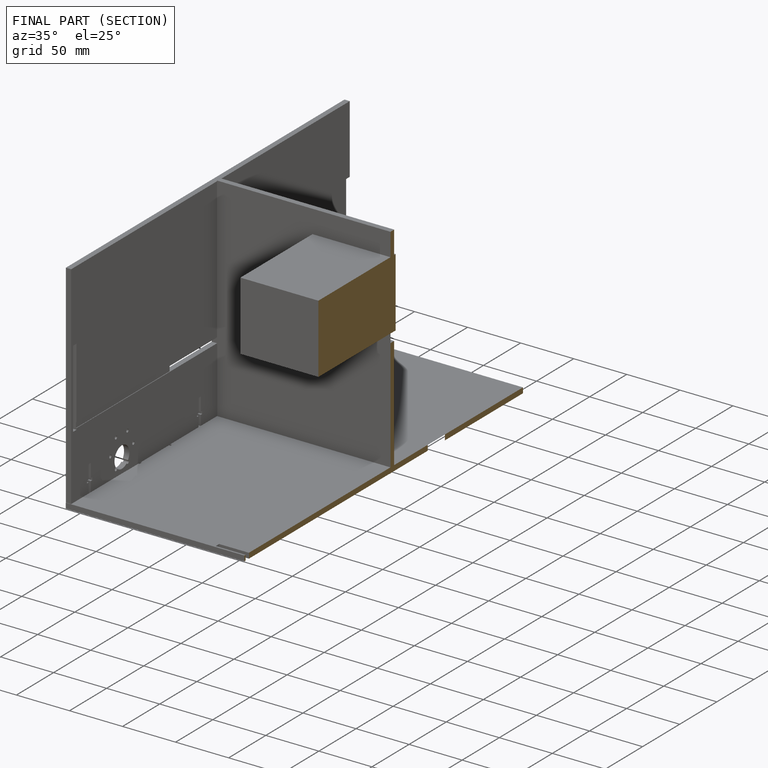
[diagram: finished part — half-section view (interior)]
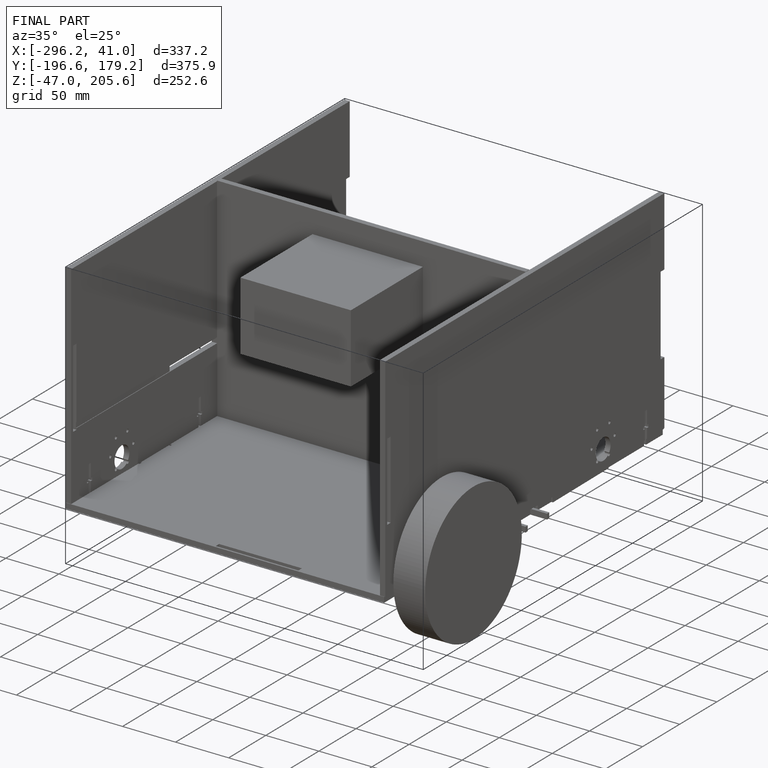
[diagram: finished part — iso view with bounding-box wireframe]
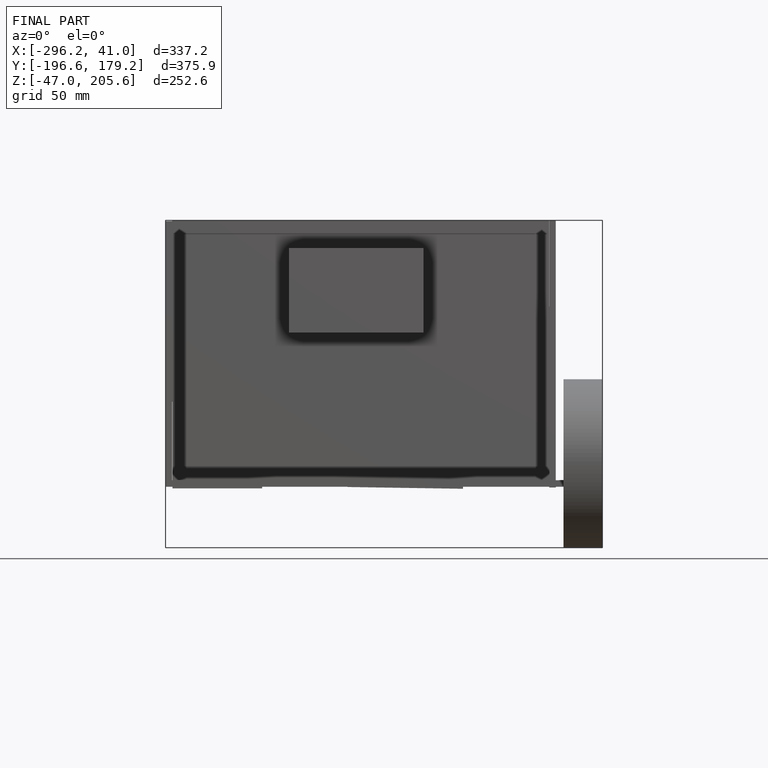
[diagram: finished part — front view with bounding-box wireframe]
